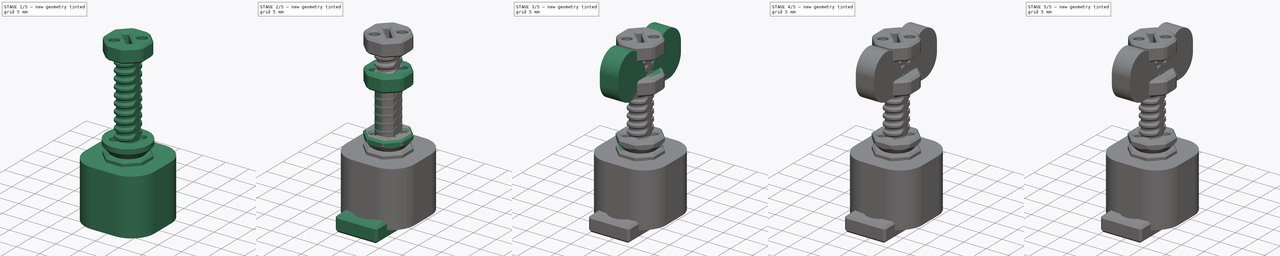
[diagram: build sequence overview — one tinted view per stage of 5, left to right]
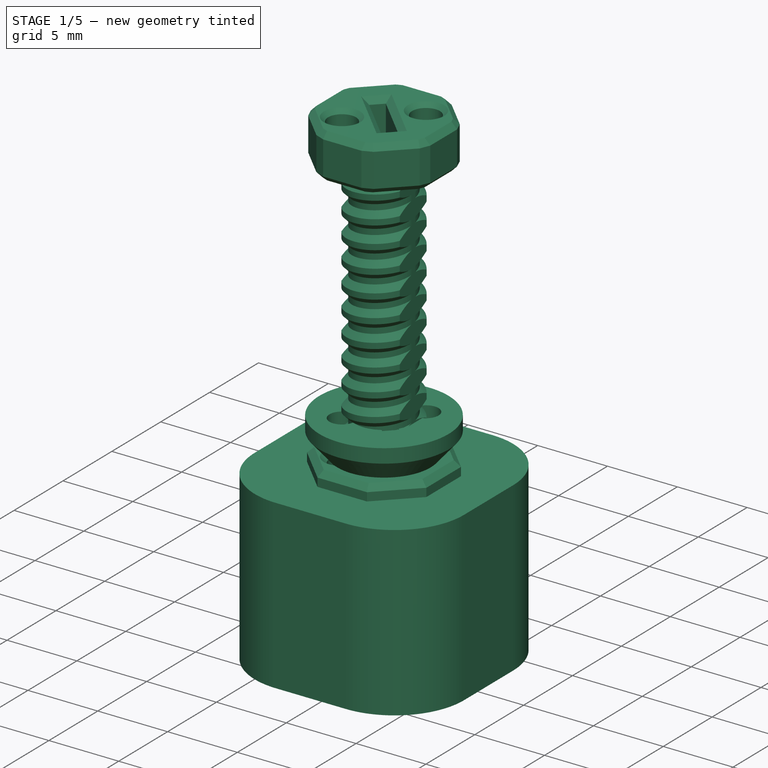
[diagram: stage 1 of 5 — iso view after this stage's code; geometry added in this stage tinted green]
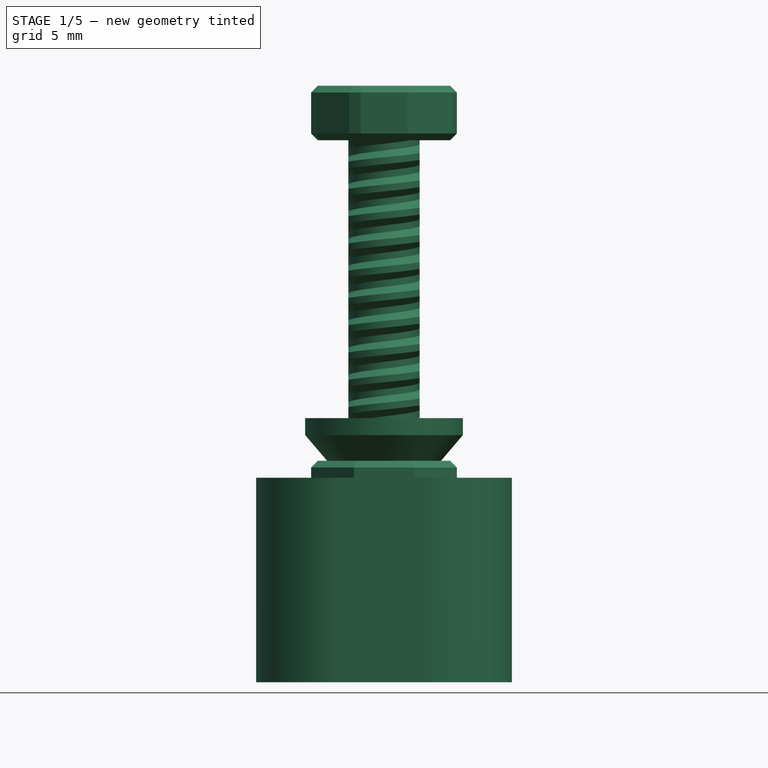
[diagram: stage 1 of 5 — front view after this stage's code; geometry added in this stage tinted green]
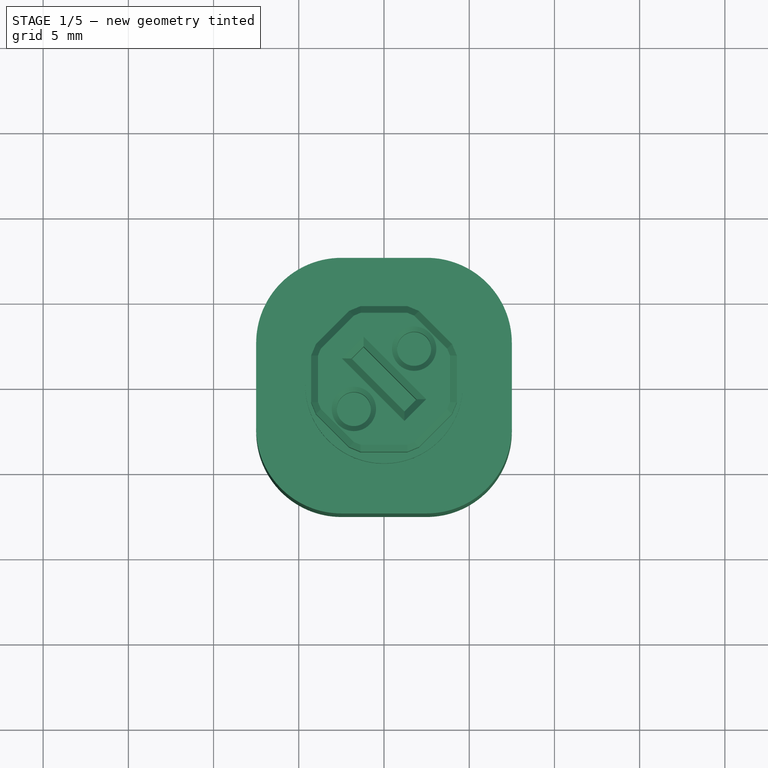
[diagram: stage 1 of 5 — top view after this stage's code; geometry added in this stage tinted green]
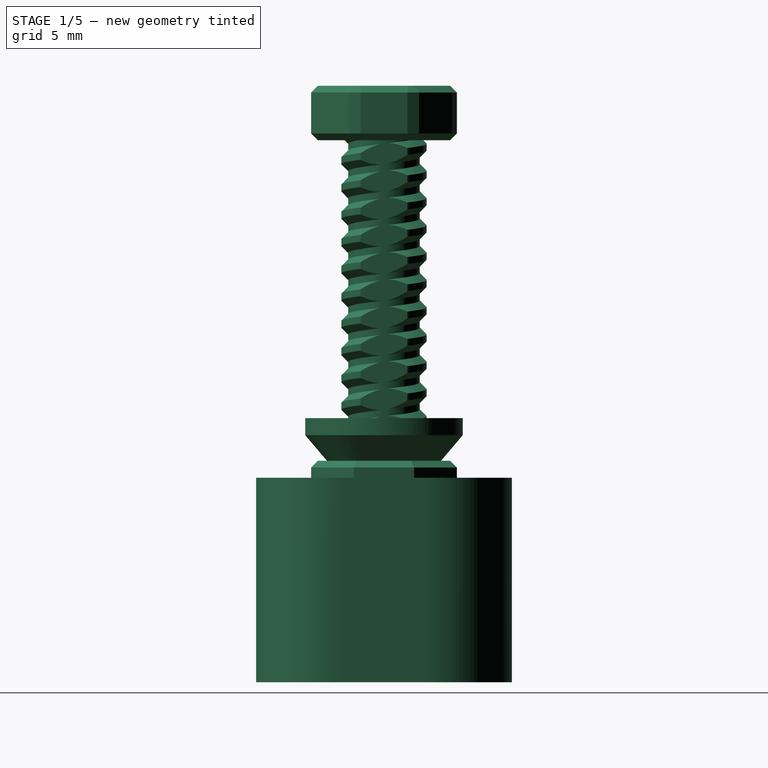
[diagram: stage 1 of 5 — right view after this stage's code; geometry added in this stage tinted green]
FCSTD DOCUMENT  (FreeCAD 1.0R39319 (Git))
Label: 3D Printed Screws
License: Creative Commons Attribution-NonCommercial 4.0
LicenseURL: https://creativecommons.org/licenses/by-nc/4.0/
objects: Sketcher::SketchObject×97, PartDesign::Pocket×43, PartDesign::Chamfer×39, PartDesign::Pad×21, PartDesign::Body×21, PartDesign::SubtractiveHelix×19, PartDesign::Revolution×14, App::DocumentObjectGroup×5, PartDesign::Groove×4, PartDesign::Fillet×2, App::Part×2, PartDesign::Plane×1
note: 642 computed .brp shape members not serialized (recipe doc carries the construction recipe); baked Part::Feature solids carry a one-line shape summary decoded from their .brp

FEATURE [PartDesign::Body] Body016  label="5-4N-10mm - Spanner Slot Screw"
  AllowCompound = false
  Group = -> [Sketch079,Sketch080,Pad015,Chamfer030,SubtractiveHelix014,Sketch081,Revolution010,Sketch078,Sketch082,Pocket031,Pocket032,Pocket033,Chamfer031]
  Origin = -> Origin022
  Tip = -> Chamfer031
FEATURE [Sketcher::SketchObject] Sketch084
  ArcFitTolerance = 1e-06
  AttachmentSupport = -> [XZ_Plane021]
  FullyConstrained = true
  MakeInternals = false
  MapMode = 5
  Placement = pos=(0,0,0) rot=(1,0,0;1.5708rad)
  sketch-geometry (10):
    g0: LineSegment [constr] StartX=0 StartY=0 StartZ=0 EndX=-2.5 EndY=0 EndZ=0
    g1: LineSegment [constr] StartX=-2.5 StartY=0 StartZ=0 EndX=-2.5 EndY=-0.4 EndZ=0
    g2: LineSegment StartX=-2.5 StartY=-0.4 StartZ=0 EndX=-2.1 EndY=-0.8 EndZ=0
    g3: LineSegment StartX=-2.1 StartY=-0.8 StartZ=0 EndX=-2.1 EndY=-1.2 EndZ=0
    g4: LineSegment StartX=-2.1 StartY=-1.2 StartZ=0 EndX=-2.5 EndY=-1.6 EndZ=0
    g5: LineSegment [constr] StartX=-2.5 StartY=-1.6 StartZ=0 EndX=0 EndY=-1.6 EndZ=0
    g6: LineSegment [constr] StartX=0 StartY=-1.6 StartZ=0 EndX=0 EndY=0 EndZ=0
    g7: LineSegment StartX=-2.5 StartY=-0.4 StartZ=0 EndX=-2.5 EndY=-1.6 EndZ=0
    g8: LineSegment [constr] StartX=-2.5 StartY=-0.4 StartZ=0 EndX=-2.1 EndY=-0.4 EndZ=0
    g9: LineSegment [constr] StartX=-2.1 StartY=-0.4 StartZ=0 EndX=-2.1 EndY=-0.8 EndZ=0
  constraints (27):
    c: Coincident(g-1,g0)
    c: PointOnObject(g0,g-1)
    c: Coincident(g0,g1)
    c: Vertical(g1)
    c: Coincident(g1,g2)
    c: Coincident(g2,g3)
    c: Vertical(g3)
    c: Coincident(g3,g4)
    c: Coincident(g4,g5)
    c: Horizontal(g5)
    c: Coincident(g5,g6)
    c: Coincident(g6,g0)
    c: Vertical(g6)
    c: DistanceX(g0,g0) = 2.5
    c: Equal(g0,g5)
    c: Coincident(g7,g1)
    c: Coincident(g7,g4)
    c: DistanceY(g1,g1) = 0.4
    c: Coincident(g8,g1)
    c: Horizontal(g8)
    c: Coincident(g9,g8)
    c: Coincident(g9,g2)
    c: Vertical(g9)
    c: Equal(g2,g4)
    c: DistanceY(g9,g9) = 0.4
    c: Distance(g8,g8) = 0.4
    c: DistanceY(g3,g3) = 0.4
FEATURE [Sketcher::SketchObject] Sketch085
  ArcFitTolerance = 1e-06
  AttachmentSupport = -> [XY_Plane021]
  ExternalGeometry = -> [Sketch084]
  FullyConstrained = true
  MakeInternals = false
  MapMode = 5
  sketch-geometry (7):
    g0: Circle [constr] CenterX=0 CenterY=0 CenterZ=0 NormalX=0 NormalY=0 NormalZ=1 AngleXU=0 Radius=2.5
    g1: LineSegment StartX=-2.09045 StartY=-1.37113 StartZ=0 EndX=-2.09045 EndY=1.37113 EndZ=0
    g2: LineSegment StartX=2.09045 StartY=-1.37113 StartZ=0 EndX=2.09045 EndY=1.37113 EndZ=0
    g3: ArcOfCircle CenterX=0 CenterY=0 CenterZ=0 NormalX=0 NormalY=0 NormalZ=1 AngleXU=0 Radius=2.5 StartAngle=3.7221 EndAngle=5.70267
    g4: ArcOfCircle CenterX=1e-16 CenterY=-6e-16 CenterZ=0 NormalX=0 NormalY=0 NormalZ=1 AngleXU=0 Radius=2.5 StartAngle=0.580512 EndAngle=2.56108
    g5: LineSegment [constr] StartX=-2.09045 StartY=0.2 StartZ=0 EndX=-2.09045 EndY=-0.2 EndZ=0
    g6: Circle [constr] CenterX=1e-16 CenterY=-6e-16 CenterZ=0 NormalX=0 NormalY=0 NormalZ=1 AngleXU=0 Radius=2.1
  constraints (21):
    c: Coincident(g0,g-1)
    c: PointOnObject(g-3,g0)
    c: PointOnObject(g1,g0)
    c: PointOnObject(g1,g0)
    c: PointOnObject(g2,g0)
    c: Coincident(g3,g0)
    c: Coincident(g3,g2)
    c: Coincident(g3,g1)
    c: Equal(g1,g2)
    c: Coincident(g2,g4)
    c: Coincident(g1,g4)
    c: Vertical(g1)
    c: Vertical(g2)
    c: Equal(g0,g4)
    c: Vertical(g5)
    c: Distance(g5) = 0.4
    c: Coincident(g6,g4)
    c: PointOnObject(g5,g6)
    c: PointOnObject(g5,g6)
    c: PointOnObject(g5,g1)
    c: PointOnObject(g-4,g6)
FEATURE [PartDesign::Pad] Pad016
  Direction = (0,0,1)
  Length = 9.5
  Length2 = 10
  Profile = -> Sketch085
  ReferenceAxis = -> Sketch085 [N_Axis]
  Refine = true
  Suppressed = false
  Type = 0
FEATURE [PartDesign::Chamfer] Chamfer032
  Angle = 45
  Base = -> Pad016 [Edge3,Edge9]
  BaseFeature = -> Pad016
  ChamferType = 0
  FlipDirection = false
  Refine = true
  Size = 0.2
  Size2 = 1
  SupportTransform = false
  Suppressed = false
  UseAllEdges = false
FEATURE [Sketcher::SketchObject] Sketch086
  ArcFitTolerance = 1e-06
  AttachmentSupport = -> [XZ_Plane021]
  ExternalGeometry = -> [Pad016]
  FullyConstrained = true
  MakeInternals = false
  MapMode = 5
  Placement = pos=(0,0,0) rot=(1,0,0;1.5708rad)
  sketch-geometry (7):
    g0: LineSegment StartX=0 StartY=13 StartZ=0 EndX=4.625 EndY=13 EndZ=0
    g1: LineSegment StartX=4.625 StartY=13 StartZ=0 EndX=4.625 EndY=12 EndZ=0
    g2: LineSegment StartX=4.625 StartY=12 StartZ=0 EndX=2.5 EndY=9.5 EndZ=0
    g3: LineSegment StartX=2.5 StartY=9.5 StartZ=0 EndX=0 EndY=9.5 EndZ=0
    g4: LineSegment StartX=0 StartY=9.5 StartZ=0 EndX=0 EndY=13 EndZ=0
    g5: LineSegment [constr] StartX=4.625 StartY=12 StartZ=0 EndX=2.5 EndY=12 EndZ=0
    g6: LineSegment [constr] StartX=2.5 StartY=12 StartZ=0 EndX=2.5 EndY=9.5 EndZ=0
  constraints (20):
    c: PointOnObject(g0,g-2)
    c: Horizontal(g0)
    c: Coincident(g1,g0)
    c: Vertical(g1)
    c: Coincident(g2,g1)
    c: Coincident(g3,g2)
    c: Coincident(g4,g3)
    c: Coincident(g4,g0)
    c: PointOnObject(g3,g-2)
    c: DistanceY(g1,g1) = 1
    c: Distance(g4,g4) = 3.5
    c: Coincident(g5,g1)
    c: Horizontal(g5)
    c: Coincident(g6,g5)
    c: Coincident(g6,g2)
    c: Vertical(g6)
    c: Distance(g0,g0) = 4.625
    c: Distance(g3,g3) = 2.5
    c: Horizontal(g3)
    c: PointOnObject(g3,g-3)
FEATURE [PartDesign::SubtractiveHelix] SubtractiveHelix015
  Angle = 0
  Axis = (0,2e-16,1)
  Base = (0,0,0)
  BaseFeature = -> Chamfer032
  Growth = 0
  HasBeenEdited = true
  Height = 28
  LeftHanded = false
  Mode = 0
  Outside = false
  Pitch = 1.6
  Profile = -> Sketch084
  ReferenceAxis = -> Sketch084 [V_Axis]
  Refine = true
  Suppressed = false
  Tolerance = 0.1
  Turns = 17.5
FEATURE [PartDesign::Revolution] Revolution011
  Angle = 360
  Angle2 = 60
  Axis = (0,2e-16,1)
  Base = (0,0,0)
  BaseFeature = -> SubtractiveHelix015
  Profile = -> Sketch086
  ReferenceAxis = -> Sketch086 [V_Axis]
  Refine = true
  Reversed = true
  Suppressed = false
  Type = 0
FEATURE [Sketcher::SketchObject] Sketch083
  ArcFitTolerance = 1e-06
  AttachmentSupport = -> [Revolution011]
  FullyConstrained = true
  MakeInternals = false
  MapMode = 5
  Placement = pos=(0,2.9e-15,13) rot=(0,0,1;0rad)
  sketch-geometry (10):
    g0: LineSegment StartX=-1.90476 StartY=1.19766 StartZ=0 EndX=1.19766 EndY=-1.90476 EndZ=0
    g1: LineSegment StartX=1.19766 StartY=-1.90476 StartZ=0 EndX=1.90476 EndY=-1.19766 EndZ=0
    g2: LineSegment StartX=1.90476 StartY=-1.19766 StartZ=0 EndX=-1.19766 EndY=1.90476 EndZ=0
    g3: LineSegment StartX=-1.19766 StartY=1.90476 StartZ=0 EndX=-1.90476 EndY=1.19766 EndZ=0
    g4: GeomPoint [constr] X=0 Y=0 Z=0
    g5: LineSegment [constr] StartX=0 StartY=0 StartZ=0 EndX=1.55121 EndY=-1.55121 EndZ=0
    g6: Circle [constr] CenterX=0 CenterY=0 CenterZ=0 NormalX=0 NormalY=0 NormalZ=1 AngleXU=0 Radius=2.25
    g7: LineSegment [constr] StartX=-1.76777 StartY=-1.76777 StartZ=0 EndX=1.76777 EndY=1.76777 EndZ=0
    g8: Circle CenterX=-1.76777 CenterY=-1.76777 CenterZ=0 NormalX=0 NormalY=0 NormalZ=1 AngleXU=0 Radius=0.9
    g9: Circle CenterX=1.76777 CenterY=1.76777 CenterZ=0 NormalX=0 NormalY=0 NormalZ=1 AngleXU=0 Radius=0.9
  constraints (23):
    c: Coincident(g0,g1)
    c: Coincident(g1,g2)
    c: Coincident(g2,g3)
    c: Coincident(g3,g0)
    c: Symmetric(g2,g0,g4)
    c: Coincident(g4,g-1)
    c: Distance(g1,g1) = 1
    c: Perpendicular(g2,g3)
    c: Perpendicular(g1,g2)
    c: Perpendicular(g0,g1)
    c: Coincident(g5,g4)
    c: Symmetric(g1,g1,g5)
    c: Angle(g5,g-1) = 0.785398
    c: Coincident(g6,g4)
    c: Diameter(g6) = 4.5
    c: PointOnObject(g2,g6)
    c: Symmetric(g7,g7,g4)
    c: Perpendicular(g7,g5)
    c: Distance(g7,g7) = 5
    c: Coincident(g8,g7)
    c: Coincident(g9,g7)
    c: Equal(g9,g8)
    c: Diameter(g9) = 1.8
FEATURE [PartDesign::Pocket] Pocket034
  BaseFeature = -> Revolution011
  Direction = (0,0,-1)
  Length = 2
  Length2 = 5
  Profile = -> Sketch083
  ReferenceAxis = -> Sketch083 [N_Axis]
  Refine = true
  Suppressed = false
  Type = 0
FEATURE [Sketcher::SketchObject] Sketch087
  ArcFitTolerance = 1e-06
  AttachmentSupport = -> [Revolution011]
  ExternalGeometry = -> [Revolution011]
  FullyConstrained = true
  MakeInternals = false
  MapMode = 5
  Placement = pos=(0,2.9e-15,13) rot=(0,0,1;0rad)
  sketch-geometry (10):
    g0: LineSegment StartX=-1.76991 StartY=4.27294 StartZ=0 EndX=-4.27294 EndY=1.76991 EndZ=0
    g1: LineSegment StartX=-4.27294 StartY=1.76991 StartZ=0 EndX=-4.27294 EndY=-1.76991 EndZ=0
    g2: LineSegment StartX=-4.27294 StartY=-1.76991 StartZ=0 EndX=-1.76991 EndY=-4.27294 EndZ=0
    g3: LineSegment StartX=-1.76991 StartY=-4.27294 StartZ=0 EndX=1.76991 EndY=-4.27294 EndZ=0
    g4: LineSegment StartX=1.76991 StartY=-4.27294 StartZ=0 EndX=4.27294 EndY=-1.76991 EndZ=0
    g5: LineSegment StartX=4.27294 StartY=-1.76991 StartZ=0 EndX=4.27294 EndY=1.76991 EndZ=0
    g6: LineSegment StartX=4.27294 StartY=1.76991 StartZ=0 EndX=1.76991 EndY=4.27294 EndZ=0
    g7: LineSegment StartX=1.76991 StartY=4.27294 StartZ=0 EndX=-1.76991 EndY=4.27294 EndZ=0
    g8: Circle [constr] CenterX=0 CenterY=0 CenterZ=0 NormalX=0 NormalY=0 NormalZ=1 AngleXU=0 Radius=4.625
    g9: Circle CenterX=0 CenterY=0 CenterZ=0 NormalX=0 NormalY=0 NormalZ=1 AngleXU=0 Radius=6
  constraints (22):
    c: Coincident(g0,g1)
    c: Coincident(g1,g2)
    c: Coincident(g2,g3)
    c: Coincident(g3,g4)
    c: Coincident(g4,g5)
    c: Coincident(g5,g6)
    c: Coincident(g6,g7)
    c: Coincident(g7,g0)
    c: Equal(g0, g1-g7) x7
    c: PointOnObject(g0,g8)
    c: PointOnObject(g1,g8)
    c: PointOnObject(g2,g8)
    c: PointOnObject(g3,g8)
    c: PointOnObject(g4,g8)
    c: PointOnObject(g5,g8)
    c: PointOnObject(g6,g8)
    c: PointOnObject(g7,g8)
    c: Coincident(g8,g-1)
    c: PointOnObject(g0,g-3)
    c: Vertical(g1)
    c: Diameter(g9) = 12
    c: Coincident(g9,g8)
FEATURE [PartDesign::Pocket] Pocket035
  BaseFeature = -> Pocket034
  Direction = (0,0,-1)
  Length = 5
  Length2 = 5
  Profile = -> Sketch087
  ReferenceAxis = -> Sketch087 [N_Axis]
  Refine = true
  Suppressed = false
  Type = 1
FEATURE [PartDesign::Pocket] Pocket036
  BaseFeature = -> Pocket035
  Direction = (0,0,-1)
  Length = 1
  Length2 = 5
  Profile = -> Pocket035 [Face18]
  Refine = true
  Suppressed = false
  Type = 0
FEATURE [PartDesign::Chamfer] Chamfer033
  Angle = 45
  Base = -> Pocket036 [Face1]
  BaseFeature = -> Pocket036
  ChamferType = 0
  FlipDirection = false
  Refine = true
  Size = 0.4
  Size2 = 1
  SupportTransform = false
  Suppressed = false
  UseAllEdges = false
FEATURE [PartDesign::Body] Body020  label="5-4N-Square Nut-GSP001"
  AllowCompound = false
  Group = -> [Sketch101,Pad021,Sketch098,Pocket040,Sketch100,Pocket041,Sketch103,Pocket042,Fillet001,Chamfer040]
  Origin = -> Origin026
  Placement = pos=(15,20,2) rot=(0,0,1;0rad)
  Tip = -> Chamfer040
FEATURE [Sketcher::SketchObject] Sketch105
  ArcFitTolerance = 1e-06
  AttachmentSupport = -> [XZ_Plane025]
  FullyConstrained = true
  MakeInternals = false
  MapMode = 5
  Placement = pos=(0,0,0) rot=(1,0,0;1.5708rad)
  sketch-geometry (10):
    g0: LineSegment [constr] StartX=0 StartY=0 StartZ=0 EndX=-2.5 EndY=0 EndZ=0
    g1: LineSegment [constr] StartX=-2.5 StartY=0 StartZ=0 EndX=-2.5 EndY=-0.4 EndZ=0
    g2: LineSegment StartX=-2.5 StartY=-0.4 StartZ=0 EndX=-2.1 EndY=-0.8 EndZ=0
    g3: LineSegment StartX=-2.1 StartY=-0.8 StartZ=0 EndX=-2.1 EndY=-1.2 EndZ=0
    g4: LineSegment StartX=-2.1 StartY=-1.2 StartZ=0 EndX=-2.5 EndY=-1.6 EndZ=0
    g5: LineSegment [constr] StartX=-2.5 StartY=-1.6 StartZ=0 EndX=0 EndY=-1.6 EndZ=0
    g6: LineSegment [constr] StartX=0 StartY=-1.6 StartZ=0 EndX=0 EndY=0 EndZ=0
    g7: LineSegment StartX=-2.5 StartY=-0.4 StartZ=0 EndX=-2.5 EndY=-1.6 EndZ=0
    g8: LineSegment [constr] StartX=-2.5 StartY=-0.4 StartZ=0 EndX=-2.1 EndY=-0.4 EndZ=0
    g9: LineSegment [constr] StartX=-2.1 StartY=-0.4 StartZ=0 EndX=-2.1 EndY=-0.8 EndZ=0
  constraints (27):
    c: Coincident(g-1,g0)
    c: PointOnObject(g0,g-1)
    c: Coincident(g0,g1)
    c: Vertical(g1)
    c: Coincident(g1,g2)
    c: Coincident(g2,g3)
    c: Vertical(g3)
    c: Coincident(g3,g4)
    c: Coincident(g4,g5)
    c: Horizontal(g5)
    c: Coincident(g5,g6)
    c: Coincident(g6,g0)
    c: Vertical(g6)
    c: DistanceX(g0,g0) = 2.5
    c: Equal(g0,g5)
    c: Coincident(g7,g1)
    c: Coincident(g7,g4)
    c: DistanceY(g1,g1) = 0.4
    c: Coincident(g8,g1)
    c: Horizontal(g8)
    c: Coincident(g9,g8)
    c: Coincident(g9,g2)
    c: Vertical(g9)
    c: Equal(g2,g4)
    c: DistanceY(g9,g9) = 0.4
    c: Distance(g8,g8) = 0.4
    c: DistanceY(g3,g3) = 0.4
FEATURE [Sketcher::SketchObject] Sketch106
  ArcFitTolerance = 1e-06
  AttachmentSupport = -> [XY_Plane025]
  ExternalGeometry = -> [Sketch105]
  FullyConstrained = true
  MakeInternals = false
  MapMode = 5
  sketch-geometry (7):
    g0: Circle [constr] CenterX=0 CenterY=0 CenterZ=0 NormalX=0 NormalY=0 NormalZ=1 AngleXU=0 Radius=2.5
    g1: LineSegment StartX=-2.09045 StartY=-1.37113 StartZ=0 EndX=-2.09045 EndY=1.37113 EndZ=0
    g2: LineSegment StartX=2.09045 StartY=-1.37113 StartZ=0 EndX=2.09045 EndY=1.37113 EndZ=0
    g3: ArcOfCircle CenterX=0 CenterY=0 CenterZ=0 NormalX=0 NormalY=0 NormalZ=1 AngleXU=0 Radius=2.5 StartAngle=3.7221 EndAngle=5.70267
    g4: ArcOfCircle CenterX=1e-16 CenterY=-6e-16 CenterZ=0 NormalX=0 NormalY=0 NormalZ=1 AngleXU=0 Radius=2.5 StartAngle=0.580512 EndAngle=2.56108
    g5: LineSegment [constr] StartX=-2.09045 StartY=0.2 StartZ=0 EndX=-2.09045 EndY=-0.2 EndZ=0
    g6: Circle [constr] CenterX=1e-16 CenterY=-6e-16 CenterZ=0 NormalX=0 NormalY=0 NormalZ=1 AngleXU=0 Radius=2.1
  constraints (21):
    c: Coincident(g0,g-1)
    c: PointOnObject(g-3,g0)
    c: PointOnObject(g1,g0)
    c: PointOnObject(g1,g0)
    c: PointOnObject(g2,g0)
    c: Coincident(g3,g0)
    c: Coincident(g3,g2)
    c: Coincident(g3,g1)
    c: Equal(g1,g2)
    c: Coincident(g2,g4)
    c: Coincident(g1,g4)
    c: Vertical(g1)
    c: Vertical(g2)
    c: Equal(g0,g4)
    c: Vertical(g5)
    c: Distance(g5) = 0.4
    c: Coincident(g6,g4)
    c: PointOnObject(g5,g6)
    c: PointOnObject(g5,g6)
    c: PointOnObject(g5,g1)
    c: PointOnObject(g-4,g6)
FEATURE [PartDesign::Pad] Pad022
  Direction = (0,0,1)
  Length = 12
  Length2 = 10
  Profile = -> Sketch106
  ReferenceAxis = -> Sketch106 [N_Axis]
  Refine = true
  Suppressed = false
  Type = 0
FEATURE [PartDesign::Chamfer] Chamfer041
  Angle = 45
  Base = -> Pad022 [Edge3,Edge9]
  BaseFeature = -> Pad022
  ChamferType = 0
  FlipDirection = false
  Refine = true
  Size = 0.2
  Size2 = 1
  SupportTransform = false
  Suppressed = false
  UseAllEdges = false
FEATURE [Sketcher::SketchObject] Sketch107
  ArcFitTolerance = 1e-06
  AttachmentSupport = -> [XZ_Plane025]
  ExternalGeometry = -> [Pad022]
  FullyConstrained = true
  MakeInternals = false
  MapMode = 5
  Placement = pos=(0,0,0) rot=(1,0,0;1.5708rad)
  sketch-geometry (7):
    g0: LineSegment StartX=0 StartY=15.5 StartZ=0 EndX=4.625 EndY=15.5 EndZ=0
    g1: LineSegment StartX=4.625 StartY=15.5 StartZ=0 EndX=4.625 EndY=14.5 EndZ=0
    g2: LineSegment StartX=4.625 StartY=14.5 StartZ=0 EndX=2.5 EndY=12 EndZ=0
    g3: LineSegment StartX=2.5 StartY=12 StartZ=0 EndX=0 EndY=12 EndZ=0
    g4: LineSegment StartX=0 StartY=12 StartZ=0 EndX=0 EndY=15.5 EndZ=0
    g5: LineSegment [constr] StartX=4.625 StartY=14.5 StartZ=0 EndX=2.5 EndY=14.5 EndZ=0
    g6: LineSegment [constr] StartX=2.5 StartY=14.5 StartZ=0 EndX=2.5 EndY=12 EndZ=0
  constraints (20):
    c: PointOnObject(g0,g-2)
    c: Horizontal(g0)
    c: Coincident(g1,g0)
    c: Vertical(g1)
    c: Coincident(g2,g1)
    c: Coincident(g3,g2)
    c: Coincident(g4,g3)
    c: Coincident(g4,g0)
    c: PointOnObject(g3,g-2)
    c: DistanceY(g1,g1) = 1
    c: Distance(g4,g4) = 3.5
    c: Coincident(g5,g1)
    c: Horizontal(g5)
    c: Coincident(g6,g5)
    c: Coincident(g6,g2)
    c: Vertical(g6)
    c: Distance(g0,g0) = 4.625
    c: Distance(g3,g3) = 2.5
    c: Horizontal(g3)
    c: PointOnObject(g3,g-3)
FEATURE [PartDesign::SubtractiveHelix] SubtractiveHelix018
  Angle = 0
  Axis = (0,2e-16,1)
  Base = (0,0,0)
  BaseFeature = -> Chamfer041
  Growth = 0
  HasBeenEdited = true
  Height = 28
  LeftHanded = false
  Mode = 0
  Outside = false
  Pitch = 1.6
  Profile = -> Sketch105
  ReferenceAxis = -> Sketch105 [V_Axis]
  Refine = true
  Suppressed = false
  Tolerance = 0.1
  Turns = 17.5
FEATURE [PartDesign::Revolution] Revolution014
  Angle = 360
  Angle2 = 60
  Axis = (0,2e-16,1)
  Base = (0,0,0)
  BaseFeature = -> SubtractiveHelix018
  Profile = -> Sketch107
  ReferenceAxis = -> Sketch107 [V_Axis]
  Refine = true
  Reversed = true
  Suppressed = false
  Type = 0
FEATURE [Sketcher::SketchObject] Sketch104
  ArcFitTolerance = 1e-06
  AttachmentSupport = -> [Revolution014]
  FullyConstrained = true
  MakeInternals = false
  MapMode = 5
  Placement = pos=(0,3.4e-15,15.5) rot=(0,0,1;0rad)
  sketch-geometry (10):
    g0: LineSegment StartX=-1.90476 StartY=1.19766 StartZ=0 EndX=1.19766 EndY=-1.90476 EndZ=0
    g1: LineSegment StartX=1.19766 StartY=-1.90476 StartZ=0 EndX=1.90476 EndY=-1.19766 EndZ=0
    g2: LineSegment StartX=1.90476 StartY=-1.19766 StartZ=0 EndX=-1.19766 EndY=1.90476 EndZ=0
    g3: LineSegment StartX=-1.19766 StartY=1.90476 StartZ=0 EndX=-1.90476 EndY=1.19766 EndZ=0
    g4: GeomPoint [constr] X=0 Y=0 Z=0
    g5: LineSegment [constr] StartX=0 StartY=0 StartZ=0 EndX=1.55121 EndY=-1.55121 EndZ=0
    g6: Circle [constr] CenterX=0 CenterY=0 CenterZ=0 NormalX=0 NormalY=0 NormalZ=1 AngleXU=0 Radius=2.25
    g7: LineSegment [constr] StartX=-1.76777 StartY=-1.76777 StartZ=0 EndX=1.76777 EndY=1.76777 EndZ=0
    g8: Circle CenterX=-1.76777 CenterY=-1.76777 CenterZ=0 NormalX=0 NormalY=0 NormalZ=1 AngleXU=0 Radius=0.9
    g9: Circle CenterX=1.76777 CenterY=1.76777 CenterZ=0 NormalX=0 NormalY=0 NormalZ=1 AngleXU=0 Radius=0.9
  constraints (23):
    c: Coincident(g0,g1)
    c: Coincident(g1,g2)
    c: Coincident(g2,g3)
    c: Coincident(g3,g0)
    c: Symmetric(g2,g0,g4)
    c: Coincident(g4,g-1)
    c: Distance(g1,g1) = 1
    c: Perpendicular(g2,g3)
    c: Perpendicular(g1,g2)
    c: Perpendicular(g0,g1)
    c: Coincident(g5,g4)
    c: Symmetric(g1,g1,g5)
    c: Angle(g5,g-1) = 0.785398
    c: Coincident(g6,g4)
    c: Diameter(g6) = 4.5
    c: PointOnObject(g2,g6)
    c: Symmetric(g7,g7,g4)
    c: Perpendicular(g7,g5)
    c: Distance(g7,g7) = 5
    c: Coincident(g8,g7)
    c: Coincident(g9,g7)
    c: Equal(g9,g8)
    c: Diameter(g9) = 1.8
FEATURE [PartDesign::Pocket] Pocket043
  BaseFeature = -> Revolution014
  Direction = (0,0,-1)
  Length = 2
  Length2 = 5
  Profile = -> Sketch104
  ReferenceAxis = -> Sketch104 [N_Axis]
  Refine = true
  Suppressed = false
  Type = 0
FEATURE [PartDesign::Body] Body021  label="5-4N-15mm - Spanner Slot Screw"
  AllowCompound = false
  Group = -> [Sketch105,Sketch106,Pad022,Chamfer041,SubtractiveHelix018,Sketch107,Revolution014,Sketch104,Sketch108,Pocket043,Pocket044,Pocket045,Chamfer042]
  Origin = -> Origin027
  Placement = pos=(0,20,0) rot=(0,0,1;0rad)
  Tip = -> Chamfer042
FEATURE [Sketcher::SketchObject] Sketch109
  ArcFitTolerance = 1e-06
  AttachmentSupport = -> [XY_Plane026]
  FullyConstrained = true
  MakeInternals = false
  MapMode = 5
  sketch-geometry (10):
    g0: LineSegment StartX=-2.5 StartY=-7.5 StartZ=0 EndX=2.5 EndY=-7.5 EndZ=0
    g1: LineSegment StartX=7.5 StartY=-2.5 StartZ=0 EndX=7.5 EndY=2.5 EndZ=0
    g2: LineSegment StartX=2.5 StartY=7.5 StartZ=0 EndX=-2.5 EndY=7.5 EndZ=0
    g3: LineSegment StartX=-7.5 StartY=2.5 StartZ=0 EndX=-7.5 EndY=-2.5 EndZ=0
    g4: ArcOfCircle CenterX=-2.5 CenterY=-2.5 CenterZ=0 NormalX=0 NormalY=0 NormalZ=1 AngleXU=0 Radius=5 StartAngle=3.14159 EndAngle=4.71239
    g5: ArcOfCircle CenterX=2.5 CenterY=-2.5 CenterZ=0 NormalX=0 NormalY=0 NormalZ=1 AngleXU=0 Radius=5 StartAngle=4.71239 EndAngle=6.28319
    g6: ArcOfCircle CenterX=2.5 CenterY=2.5 CenterZ=0 NormalX=0 NormalY=0 NormalZ=1 AngleXU=0 Radius=5 StartAngle=0 EndAngle=1.5708
    g7: ArcOfCircle CenterX=-2.5 CenterY=2.5 CenterZ=0 NormalX=0 NormalY=0 NormalZ=1 AngleXU=0 Radius=5 StartAngle=1.5708 EndAngle=3.14159
    g8: GeomPoint [constr] X=-7.5 Y=-7.5 Z=0
    g9: GeomPoint [constr] X=7.5 Y=7.5 Z=0
  constraints (23):
    c: Tangent(g0,g4) = -1.5708
    c: Tangent(g0,g5) = -1.5708
    c: Tangent(g1,g5) = -1.5708
    c: Tangent(g1,g6) = -1.5708
    c: Tangent(g2,g6) = -1.5708
    c: Tangent(g2,g7) = -1.5708
    c: Tangent(g3,g7) = -1.5708
    c: Tangent(g3,g4) = -1.5708
    c: Horizontal(g0)
    c: Horizontal(g2)
    c: Vertical(g1)
    c: Vertical(g3)
    c: Equal(g4,g5)
    c: Equal(g5,g6)
    c: Equal(g6,g7)
    c: PointOnObject(g8,g0)
    c: PointOnObject(g8,g3)
    c: PointOnObject(g9,g1)
    c: PointOnObject(g9,g2)
    c: Symmetric(g8,g9,g-1)
    c: Radius(g5) = 5
    c: Distance(g2,g2) = 5
    c: Equal(g2,g3)
FEATURE [PartDesign::Pad] Pad023
  Direction = (0,0,1)
  Length = 12
  Length2 = 10
  Profile = -> Sketch109
  ReferenceAxis = -> Sketch109 [N_Axis]
  Refine = true
  Suppressed = false
  Type = 0
FEATURE [Sketcher::SketchObject] Sketch110
  ArcFitTolerance = 1e-06
  AttachmentSupport = -> [Pad023]
  FullyConstrained = true
  MakeInternals = false
  MapMode = 5
  Placement = pos=(0,0,12) rot=(0,0,1;0rad)
  sketch-geometry (1):
    g0: Circle CenterX=0 CenterY=0 CenterZ=0 NormalX=0 NormalY=0 NormalZ=1 AngleXU=0 Radius=0.5
  constraints (2):
    c: Coincident(g0,g-1)
    c: Diameter(g0) = 1
FEATURE [PartDesign::Pocket] Pocket046
  BaseFeature = -> Pad023
  Direction = (0,0,-1)
  Length = 5
  Length2 = 5
  Profile = -> Sketch110
  ReferenceAxis = -> Sketch110 [N_Axis]
  Refine = true
  Suppressed = false
  Type = 1
FEATURE [Sketcher::SketchObject] Sketch111
  ArcFitTolerance = 1e-06
  AttachmentSupport = -> [XZ_Plane021]
  ExternalGeometry = -> [Sketch084]
  FullyConstrained = true
  MakeInternals = false
  MapMode = 5
  Placement = pos=(0,0,0) rot=(1,0,0;1.5708rad)
  sketch-geometry (4):
    g0: LineSegment StartX=-2.5 StartY=-1.6 StartZ=0 EndX=-2.1 EndY=-1.2 EndZ=0
    g1: LineSegment StartX=-2.1 StartY=-1.2 StartZ=0 EndX=-2.1 EndY=-2.4 EndZ=0
    g2: LineSegment StartX=-2.1 StartY=-2.4 StartZ=0 EndX=-2.5 EndY=-2 EndZ=0
    g3: LineSegment StartX=-2.5 StartY=-2 StartZ=0 EndX=-2.5 EndY=-1.6 EndZ=0
  constraints (10):
    c: Coincident(g-3,g0)
    c: Coincident(g0,g-4)
    c: Coincident(g0,g1)
    c: Vertical(g1)
    c: Coincident(g1,g2)
    c: Coincident(g2,g3)
    c: Coincident(g3,g0)
    c: Vertical(g3)
    c: Equal(g-3,g1)
    c: Equal(g-4,g3)
FEATURE [PartDesign::SubtractiveHelix] SubtractiveHelix019
  Angle = 0
  Axis = (0,2e-16,1)
  Base = (0,0,0)
  BaseFeature = -> Chamfer033
  Growth = 0
  HasBeenEdited = true
  Height = 2.4
  LeftHanded = false
  Mode = 1
  Outside = false
  Pitch = 1.6
  Profile = -> Sketch111
  ReferenceAxis = -> Sketch111 [V_Axis]
  Refine = true
  Suppressed = false
  Tolerance = 0.1
  Turns = 1.5
FEATURE [PartDesign::Body] Body017  label="5-4N-13mm - Spanner Slot Screw"
  AllowCompound = false
  Group = -> [Sketch084,Sketch085,Pad016,Chamfer032,SubtractiveHelix015,Sketch086,Revolution011,Sketch083,Sketch087,Pocket034,Pocket035,Pocket036,Chamfer033,Sketch111,SubtractiveHelix019]
  Origin = -> Origin023
  Placement = pos=(0,10,0) rot=(0,0,1;0rad)
  Tip = -> SubtractiveHelix019
FEATURE [Sketcher::SketchObject] Sketch112
  ArcFitTolerance = 1e-06
  AttachmentSupport = -> [XZ_Plane026]
  ExternalGeometry = -> [Pocket046]
  FullyConstrained = true
  MakeInternals = false
  MapMode = 5
  Placement = pos=(0,0,0) rot=(1,0,0;1.5708rad)
  sketch-geometry (12):
    g0: LineSegment [constr] StartX=0 StartY=0 StartZ=0 EndX=0 EndY=2.6 EndZ=0
    g1: LineSegment [constr] StartX=0 StartY=2.6 StartZ=0 EndX=-2.25 EndY=2.6 EndZ=0
    g2: LineSegment StartX=-2.25 StartY=2.6 StartZ=0 EndX=-2.25 EndY=1.5 EndZ=0
    g3: LineSegment StartX=-2.25 StartY=1.5 StartZ=0 EndX=-2.65 EndY=1.9 EndZ=0
    g4: LineSegment StartX=-2.65 StartY=1.9 StartZ=0 EndX=-2.65 EndY=2.2 EndZ=0
    g5: LineSegment StartX=-2.65 StartY=2.2 StartZ=0 EndX=-2.25 EndY=2.6 EndZ=0
    g6: LineSegment [constr] StartX=0 StartY=1 StartZ=0 EndX=0 EndY=2.6 EndZ=0
    g7: LineSegment [constr] StartX=-2.65 StartY=2.2 StartZ=0 EndX=-2.65 EndY=2.6 EndZ=0
    g8: LineSegment [constr] StartX=-2.65 StartY=2.6 StartZ=0 EndX=-2.25 EndY=2.6 EndZ=0
    g9: LineSegment [constr] StartX=-2.25 StartY=1.5 StartZ=0 EndX=-2.25 EndY=1 EndZ=0
    g10: LineSegment [constr] StartX=-2.25 StartY=1 StartZ=0 EndX=0 EndY=1 EndZ=0
    g11: LineSegment [constr] StartX=-2.65 StartY=2.2 StartZ=0 EndX=0 EndY=2.2 EndZ=0
  constraints (33):
    c: Coincident(g0,g-1)
    c: PointOnObject(g0,g-2)
    c: Coincident(g1,g0)
    c: Horizontal(g1)
    c: Coincident(g1,g2)
    c: Vertical(g2)
    c: Coincident(g2,g3)
    c: Coincident(g3,g4)
    c: Vertical(g4)
    c: Coincident(g4,g5)
    c: Coincident(g5,g2)
    c: Coincident(g6,g0)
    c: Vertical(g6)
    c: Equal(g5,g3)
    c: Coincident(g4,g7)
    c: Vertical(g7)
    c: Coincident(g7,g8)
    c: Coincident(g8,g1)
    c: Horizontal(g8)
    c: Equal(g8,g7)
    c: Distance(g8,g8) = 0.4
    c: DistanceY(g4,g4) = 0.3
    c: Coincident(g9,g2)
    c: Vertical(g9)
    c: Coincident(g10,g9)
    c: Coincident(g10,g6)
    c: Horizontal(g10)
    c: DistanceY(g9,g9) = 0.5
    c: Coincident(g11,g4)
    c: PointOnObject(g11,g6)
    c: Horizontal(g11)
    c: Distance(g11,g11) = 2.65
    c: DistanceY(g0,g0) = 2.6
FEATURE [Sketcher::SketchObject] Sketch113
  ArcFitTolerance = 1e-06
  AttachmentSupport = -> [Pocket046]
  ExternalGeometry = -> [Pocket046,Sketch112]
  FullyConstrained = true
  MakeInternals = false
  MapMode = 5
  Placement = pos=(0,0,12) rot=(0,0,1;0rad)
  sketch-geometry (1):
    g0: Circle CenterX=0 CenterY=0 CenterZ=0 NormalX=0 NormalY=0 NormalZ=1 AngleXU=0 Radius=2.25
  constraints (2):
    c: Coincident(g0,g-1)
    c: PointOnObject(g-4,g0)
FEATURE [Sketcher::SketchObject] Sketch114
  ArcFitTolerance = 1e-06
  AttachmentSupport = -> [XZ_Plane026]
  ExternalGeometry = -> [Pocket046,Sketch112]
  FullyConstrained = true
  MakeInternals = false
  MapMode = 5
  Placement = pos=(0,0,0) rot=(1,0,0;1.5708rad)
  sketch-geometry (7):
    g0: LineSegment StartX=0 StartY=12 StartZ=0 EndX=-2.65 EndY=12 EndZ=0
    g1: LineSegment StartX=-2.65 StartY=12 StartZ=0 EndX=-2.15 EndY=11.5 EndZ=0
    g2: LineSegment StartX=-2.15 StartY=11.5 StartZ=0 EndX=0 EndY=11.5 EndZ=0
    g3: LineSegment StartX=0 StartY=11.5 StartZ=0 EndX=0 EndY=12 EndZ=0
    g4: LineSegment [constr] StartX=-2.15 StartY=11.5 StartZ=0 EndX=-2.65 EndY=11.5 EndZ=0
    g5: LineSegment [constr] StartX=-2.65 StartY=11.5 StartZ=0 EndX=-2.65 EndY=12 EndZ=0
    g6: LineSegment [constr] StartX=-2.65 StartY=11.5 StartZ=0 EndX=-2.65 EndY=2.2 EndZ=0
  constraints (18):
    c: Symmetric(g-3,g-3,g0)
    c: Horizontal(g0)
    c: Coincident(g0,g1)
    c: Coincident(g1,g2)
    c: PointOnObject(g2,g-2)
    c: Horizontal(g2)
    c: Coincident(g2,g3)
    c: Coincident(g3,g0)
    c: Coincident(g1,g4)
    c: Horizontal(g4)
    c: Coincident(g4,g5)
    c: Coincident(g5,g0)
    c: Vertical(g5)
    c: Coincident(g4,g6)
    c: Coincident(g6,g-4)
    c: Vertical(g6)
    c: Equal(g5,g4)
    c: DistanceY(g3,g3) = 0.5
FEATURE [PartDesign::Pocket] Pocket047
  BaseFeature = -> Pocket046
  Direction = (0,0,-1)
  Length = 5
  Length2 = 5
  Profile = -> Sketch113
  ReferenceAxis = -> Sketch113 [N_Axis]
  Refine = true
  Suppressed = false
  Type = 1
FEATURE [PartDesign::Groove] Groove003
  Angle = 360
  Angle2 = 60
  Axis = (0,2e-16,1)
  Base = (0,0,0)
  BaseFeature = -> Pocket047
  Profile = -> Sketch114
  ReferenceAxis = -> Sketch114 [V_Axis]
  Refine = true
  Reversed = true
  Suppressed = false
  Type = 0
FEATURE [PartDesign::SubtractiveHelix] SubtractiveHelix020
  Angle = 0
  Axis = (0,2e-16,1)
  Base = (0,0,0)
  BaseFeature = -> Groove003
  Growth = 0
  HasBeenEdited = true
  Height = 30
  LeftHanded = false
  Mode = 0
  Outside = false
  Pitch = 1.6
  Profile = -> Sketch112
  ReferenceAxis = -> Sketch112 [V_Axis]
  Refine = true
  Suppressed = false
  Tolerance = 0.1
  Turns = 18.75
FEATURE [PartDesign::Body] Body022  label="5-4N Screw Lock Test"
  AllowCompound = false
  Group = -> [Sketch109,Pad023,Sketch110,Pocket046,Sketch112,Sketch113,Sketch114,Pocket047,Groove003,SubtractiveHelix020]
  Origin = -> Origin028
  Placement = pos=(0,40,0) rot=(0,0,1;0rad)
  Tip = -> SubtractiveHelix020
FEATURE [App::DocumentObjectGroup] Group002  label="Nut"
  Group = -> [Body005,Body,Body020,Body022]
FEATURE [Sketcher::SketchObject] Sketch116
  ArcFitTolerance = 1e-06
  AttachmentSupport = -> [XZ_Plane027]
  FullyConstrained = true
  MakeInternals = false
  MapMode = 5
  Placement = pos=(0,0,0) rot=(1,0,0;1.5708rad)
  sketch-geometry (10):
    g0: LineSegment [constr] StartX=0 StartY=0 StartZ=0 EndX=-2.5 EndY=0 EndZ=0
    g1: LineSegment [constr] StartX=-2.5 StartY=0 StartZ=0 EndX=-2.5 EndY=-0.4 EndZ=0
    g2: LineSegment StartX=-2.5 StartY=-0.4 StartZ=0 EndX=-2.1 EndY=-0.8 EndZ=0
    g3: LineSegment StartX=-2.1 StartY=-0.8 StartZ=0 EndX=-2.1 EndY=-1.2 EndZ=0
    g4: LineSegment StartX=-2.1 StartY=-1.2 StartZ=0 EndX=-2.5 EndY=-1.6 EndZ=0
    g5: LineSegment [constr] StartX=-2.5 StartY=-1.6 StartZ=0 EndX=0 EndY=-1.6 EndZ=0
    g6: LineSegment [constr] StartX=0 StartY=-1.6 StartZ=0 EndX=0 EndY=0 EndZ=0
    g7: LineSegment StartX=-2.5 StartY=-0.4 StartZ=0 EndX=-2.5 EndY=-1.6 EndZ=0
    g8: LineSegment [constr] StartX=-2.5 StartY=-0.4 StartZ=0 EndX=-2.1 EndY=-0.4 EndZ=0
    g9: LineSegment [constr] StartX=-2.1 StartY=-0.4 StartZ=0 EndX=-2.1 EndY=-0.8 EndZ=0
  constraints (27):
    c: Coincident(g-1,g0)
    c: PointOnObject(g0,g-1)
    c: Coincident(g0,g1)
    c: Vertical(g1)
    c: Coincident(g1,g2)
    c: Coincident(g2,g3)
    c: Vertical(g3)
    c: Coincident(g3,g4)
    c: Coincident(g4,g5)
    c: Horizontal(g5)
    c: Coincident(g5,g6)
    c: Coincident(g6,g0)
    c: Vertical(g6)
    c: DistanceX(g0,g0) = 2.5
    c: Equal(g0,g5)
    c: Coincident(g7,g1)
    c: Coincident(g7,g4)
    c: DistanceY(g1,g1) = 0.4
    c: Coincident(g8,g1)
    c: Horizontal(g8)
    c: Coincident(g9,g8)
    c: Coincident(g9,g2)
    c: Vertical(g9)
    c: Equal(g2,g4)
    c: DistanceY(g9,g9) = 0.4
    c: Distance(g8,g8) = 0.4
    c: DistanceY(g3,g3) = 0.4
FEATURE [Sketcher::SketchObject] Sketch117
  ArcFitTolerance = 1e-06
  AttachmentSupport = -> [XY_Plane027]
  ExternalGeometry = -> [Sketch116]
  FullyConstrained = true
  MakeInternals = false
  MapMode = 5
  sketch-geometry (7):
    g0: Circle [constr] CenterX=0 CenterY=0 CenterZ=0 NormalX=0 NormalY=0 NormalZ=1 AngleXU=0 Radius=2.5
    g1: LineSegment StartX=-2.09045 StartY=-1.37113 StartZ=0 EndX=-2.09045 EndY=1.37113 EndZ=0
    g2: LineSegment StartX=2.09045 StartY=-1.37113 StartZ=0 EndX=2.09045 EndY=1.37113 EndZ=0
    g3: ArcOfCircle CenterX=0 CenterY=0 CenterZ=0 NormalX=0 NormalY=0 NormalZ=1 AngleXU=0 Radius=2.5 StartAngle=3.7221 EndAngle=5.70267
    g4: ArcOfCircle CenterX=-1e-16 CenterY=-5e-16 CenterZ=0 NormalX=0 NormalY=0 NormalZ=1 AngleXU=0 Radius=2.5 StartAngle=0.580512 EndAngle=2.56108
    g5: Circle [constr] CenterX=-1e-16 CenterY=-5e-16 CenterZ=0 NormalX=0 NormalY=0 NormalZ=1 AngleXU=0 Radius=2.1
    g6: LineSegment [constr] StartX=-2.09045 StartY=0.2 StartZ=0 EndX=-2.09045 EndY=-0.2 EndZ=0
  constraints (21):
    c: Coincident(g0,g-1)
    c: PointOnObject(g-3,g0)
    c: PointOnObject(g1,g0)
    c: PointOnObject(g1,g0)
    c: PointOnObject(g2,g0)
    c: Coincident(g3,g0)
    c: Coincident(g3,g2)
    c: Coincident(g3,g1)
    c: Equal(g1,g2)
    c: Coincident(g2,g4)
    c: Coincident(g1,g4)
    c: Vertical(g1)
    c: Vertical(g2)
    c: Equal(g0,g4)
    c: Coincident(g5,g4)
    c: PointOnObject(g-4,g5)
    c: PointOnObject(g6,g5)
    c: PointOnObject(g6,g5)
    c: Vertical(g6)
    c: Distance(g6) = 0.4
    c: PointOnObject(g6,g1)
FEATURE [PartDesign::Pad] Pad024
  Direction = (0,0,1)
  Length = 35
  Length2 = 10
  Profile = -> Sketch117
  ReferenceAxis = -> Sketch117 [N_Axis]
  Refine = true
  Suppressed = false
  Type = 0
FEATURE [PartDesign::Chamfer] Chamfer043
  Angle = 45
  Base = -> Pad024 [Edge3,Edge9]
  BaseFeature = -> Pad024
  ChamferType = 0
  FlipDirection = false
  Refine = true
  Size = 0.2
  Size2 = 1
  SupportTransform = false
  Suppressed = false
  UseAllEdges = false
FEATURE [Sketcher::SketchObject] Sketch118
  ArcFitTolerance = 1e-06
  AttachmentSupport = -> [XZ_Plane027]
  ExternalGeometry = -> [Pad024]
  FullyConstrained = true
  MakeInternals = false
  MapMode = 5
  Placement = pos=(0,0,0) rot=(1,0,0;1.5708rad)
  sketch-geometry (4):
    g0: LineSegment StartX=0 StartY=31.8 StartZ=0 EndX=4.625 EndY=31.8 EndZ=0
    g1: LineSegment StartX=4.625 StartY=31.8 StartZ=0 EndX=4.625 EndY=35 EndZ=0
    g2: LineSegment StartX=4.625 StartY=35 StartZ=0 EndX=0 EndY=35 EndZ=0
    g3: LineSegment StartX=0 StartY=35 StartZ=0 EndX=0 EndY=31.8 EndZ=0
  constraints (12):
    c: PointOnObject(g0,g-2)
    c: Horizontal(g0)
    c: Coincident(g1,g0)
    c: Vertical(g1)
    c: Coincident(g3,g2)
    c: Coincident(g3,g0)
    c: PointOnObject(g2,g-2)
    c: Distance(g3,g3) = 3.2
    c: Distance(g0,g0) = 4.625
    c: Horizontal(g2)
    c: PointOnObject(g2,g-3)
    c: Coincident(g1,g2)
FEATURE [PartDesign::SubtractiveHelix] SubtractiveHelix021
  Angle = 0
  Axis = (0,2e-16,1)
  Base = (0,0,0)
  BaseFeature = -> Chamfer043
  Growth = 0
  HasBeenEdited = true
  Height = 100
  LeftHanded = false
  Mode = 0
  Outside = false
  Pitch = 1.6
  Profile = -> Sketch116
  ReferenceAxis = -> Sketch116 [V_Axis]
  Refine = true
  Suppressed = false
  Tolerance = 0.1
  Turns = 62.5
FEATURE [PartDesign::Revolution] Revolution015
  Angle = 360
  Angle2 = 60
  Axis = (0,2e-16,1)
  Base = (0,0,0)
  BaseFeature = -> SubtractiveHelix021
  Profile = -> Sketch118
  ReferenceAxis = -> Sketch118 [V_Axis]
  Refine = true
  Reversed = true
  Suppressed = false
  Type = 0
FEATURE [Sketcher::SketchObject] Sketch115
  ArcFitTolerance = 1e-06
  AttachmentSupport = -> [Revolution015]
  FullyConstrained = true
  MakeInternals = false
  MapMode = 5
  Placement = pos=(0,7.8e-15,35) rot=(0,0,1;0rad)
  sketch-geometry (8):
    g0: Circle [constr] CenterX=0 CenterY=0 CenterZ=0 NormalX=0 NormalY=0 NormalZ=1 AngleXU=0 Radius=2.25
    g1: LineSegment StartX=-1.19766 StartY=1.90476 StartZ=0 EndX=1.90476 EndY=-1.19766 EndZ=0
    g2: LineSegment StartX=1.90476 StartY=-1.19766 StartZ=0 EndX=1.19766 EndY=-1.90476 EndZ=0
    g3: LineSegment StartX=1.19766 StartY=-1.90476 StartZ=0 EndX=-1.90476 EndY=1.19766 EndZ=0
    g4: LineSegment StartX=-1.90476 StartY=1.19766 StartZ=0 EndX=-1.19766 EndY=1.90476 EndZ=0
    g5: LineSegment [constr] StartX=-1.76777 StartY=-1.76777 StartZ=0 EndX=1.76777 EndY=1.76777 EndZ=0
    g6: Circle CenterX=1.76777 CenterY=1.76777 CenterZ=0 NormalX=0 NormalY=0 NormalZ=1 AngleXU=0 Radius=1
    g7: Circle CenterX=-1.76777 CenterY=-1.76777 CenterZ=0 NormalX=0 NormalY=0 NormalZ=1 AngleXU=0 Radius=1
  constraints (21):
    c: Diameter(g0) = 4.5
    c: PointOnObject(g1,g0)
    c: Distance(g2) = 1
    c: Coincident(g2,g1)
    c: PointOnObject(g2,g0)
    c: Coincident(g3,g2)
    c: PointOnObject(g3,g0)
    c: Coincident(g4,g3)
    c: Coincident(g4,g1)
    c: Perpendicular(g4,g3)
    c: Perpendicular(g1,g4)
    c: Coincident(g0,g-1)
    c: Perpendicular(g2,g3)
    c: Angle(g1,g-1) = 0.785398
    c: Symmetric(g5,g5,g0)
    c: Perpendicular(g1,g5)
    c: Coincident(g6,g5)
    c: Coincident(g7,g5)
    c: Distance(g5,g5) = 5
    c: Diameter(g6) = 2
    c: Equal(g6,g7)
FEATURE [PartDesign::Pocket] Pocket048
  BaseFeature = -> Revolution015
  Direction = (0,0,-1)
  Length = 2
  Length2 = 5
  Profile = -> Sketch115
  ReferenceAxis = -> Sketch115 [N_Axis]
  Refine = true
  Suppressed = false
  Type = 0
FEATURE [Sketcher::SketchObject] Sketch119
  ArcFitTolerance = 1e-06
  AttachmentSupport = -> [Pocket048]
  ExternalGeometry = -> [Revolution015]
  FullyConstrained = true
  MakeInternals = false
  MapMode = 5
  Placement = pos=(0,7.8e-15,35) rot=(0,0,1;0rad)
  sketch-geometry (10):
    g0: LineSegment StartX=-1.76991 StartY=4.27294 StartZ=0 EndX=-4.27294 EndY=1.76991 EndZ=0
    g1: LineSegment StartX=-4.27294 StartY=1.76991 StartZ=0 EndX=-4.27294 EndY=-1.76991 EndZ=0
    g2: LineSegment StartX=-4.27294 StartY=-1.76991 StartZ=0 EndX=-1.76991 EndY=-4.27294 EndZ=0
    g3: LineSegment StartX=-1.76991 StartY=-4.27294 StartZ=0 EndX=1.76991 EndY=-4.27294 EndZ=0
    g4: LineSegment StartX=1.76991 StartY=-4.27294 StartZ=0 EndX=4.27294 EndY=-1.76991 EndZ=0
    g5: LineSegment StartX=4.27294 StartY=-1.76991 StartZ=0 EndX=4.27294 EndY=1.76991 EndZ=0
    g6: LineSegment StartX=4.27294 StartY=1.76991 StartZ=0 EndX=1.76991 EndY=4.27294 EndZ=0
    g7: LineSegment StartX=1.76991 StartY=4.27294 StartZ=0 EndX=-1.76991 EndY=4.27294 EndZ=0
    g8: Circle [constr] CenterX=0 CenterY=0 CenterZ=0 NormalX=0 NormalY=0 NormalZ=1 AngleXU=0 Radius=4.625
    g9: Circle CenterX=0 CenterY=0 CenterZ=0 NormalX=0 NormalY=0 NormalZ=1 AngleXU=0 Radius=6
  constraints (22):
    c: Coincident(g0,g1)
    c: Coincident(g1,g2)
    c: Coincident(g2,g3)
    c: Coincident(g3,g4)
    c: Coincident(g4,g5)
    c: Coincident(g5,g6)
    c: Coincident(g6,g7)
    c: Coincident(g7,g0)
    c: Equal(g0, g1-g7) x7
    c: PointOnObject(g0,g8)
    c: PointOnObject(g1,g8)
    c: PointOnObject(g2,g8)
    c: PointOnObject(g3,g8)
    c: PointOnObject(g4,g8)
    c: PointOnObject(g5,g8)
    c: PointOnObject(g6,g8)
    c: PointOnObject(g7,g8)
    c: Coincident(g8,g-1)
    c: PointOnObject(g0,g-3)
    c: Vertical(g1)
    c: Diameter(g9) = 12
    c: Coincident(g9,g8)
FEATURE [PartDesign::Pocket] Pocket049
  BaseFeature = -> Pocket048
  Direction = (0,0,-1)
  Length = 5
  Length2 = 5
  Profile = -> Sketch119
  ReferenceAxis = -> Sketch119 [N_Axis]
  Refine = true
  Suppressed = false
  Type = 1
FEATURE [PartDesign::Chamfer] Chamfer044
  Angle = 45
  Base = -> Pocket049 [Face2,Face3,Face9,Face8,Face7,Face6,Face5,Face4,Edge366,Edge368,Edge365,Edge367]
  BaseFeature = -> Pocket049
  ChamferType = 0
  FlipDirection = false
  Refine = true
  Size = 0.4
  Size2 = 1
  SupportTransform = false
  Suppressed = false
  UseAllEdges = false
FEATURE [PartDesign::Pocket] Pocket050
  BaseFeature = -> Chamfer044
  Direction = (0,0,-1)
  Length = 1
  Length2 = 5
  Profile = -> Chamfer044 [Face232]
  Refine = true
  Suppressed = false
  Type = 0
FEATURE [PartDesign::Chamfer] Chamfer045
  Angle = 45
  Base = -> Pocket050 [Edge625,Edge626]
  BaseFeature = -> Pocket050
  ChamferType = 0
  FlipDirection = false
  Refine = true
  Size = 0.3
  Size2 = 1
  SupportTransform = false
  Suppressed = false
  UseAllEdges = false
FEATURE [PartDesign::Body] Body023  label="5-4N-38mm - Spanner Slot - Pan Head"
  AllowCompound = false
  Group = -> [Sketch116,Sketch117,Pad024,Chamfer043,SubtractiveHelix021,Sketch118,Revolution015,Sketch115,Sketch119,Pocket048,Pocket049,Chamfer044,Pocket050,Chamfer045]
  Origin = -> Origin029
  Placement = pos=(10,40,0) rot=(0,0,1;0rad)
  Tip = -> Chamfer045
FEATURE [App::DocumentObjectGroup] Group  label="Spanner Slot"
  Group = -> [Body016,Body017,Body015,Body014,Body021,Body023]
FEATURE [App::Part] Part  label="5-4N"
  Group = -> [Body011,Body016,Body017,Group,Body015,Body014,Group001,Body002,Body003,Group002,Body005,Body,Group003,Body013,Body004,Group004,Body018,Body019,Body020,Body021,Body022,Body023]
  Origin = -> Origin008
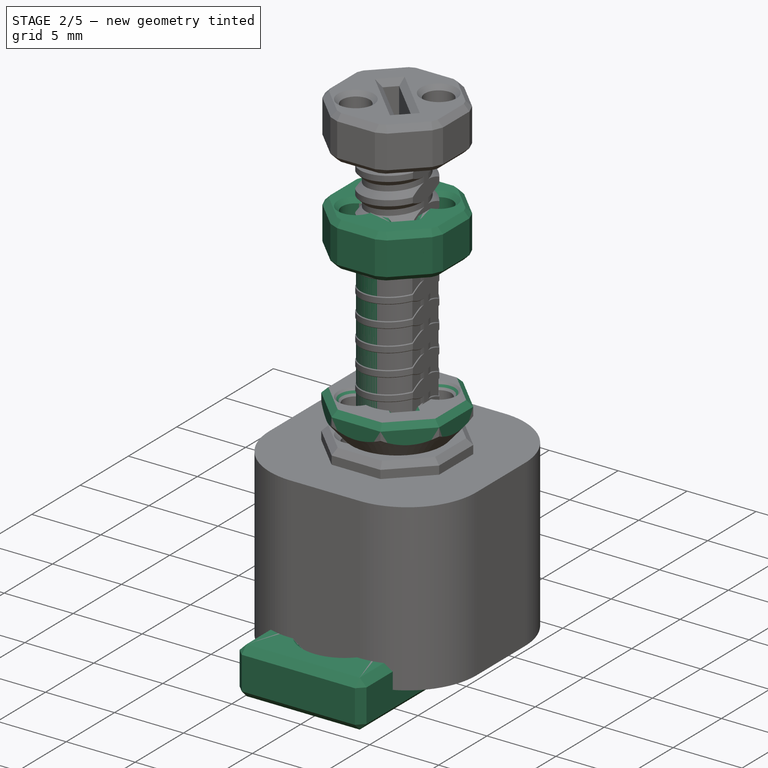
[diagram: stage 2 of 5 — iso view after this stage's code; geometry added in this stage tinted green]
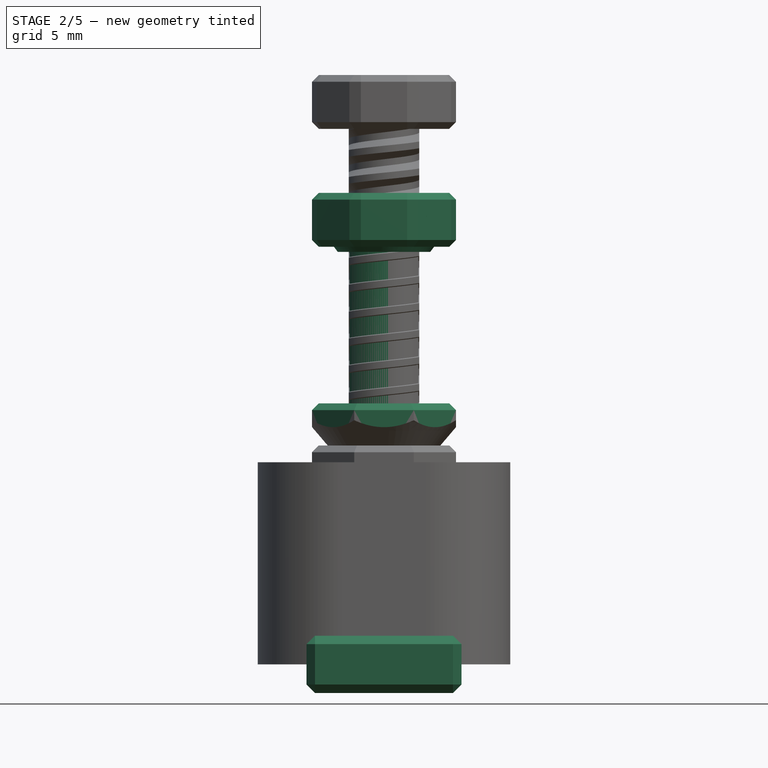
[diagram: stage 2 of 5 — front view after this stage's code; geometry added in this stage tinted green]
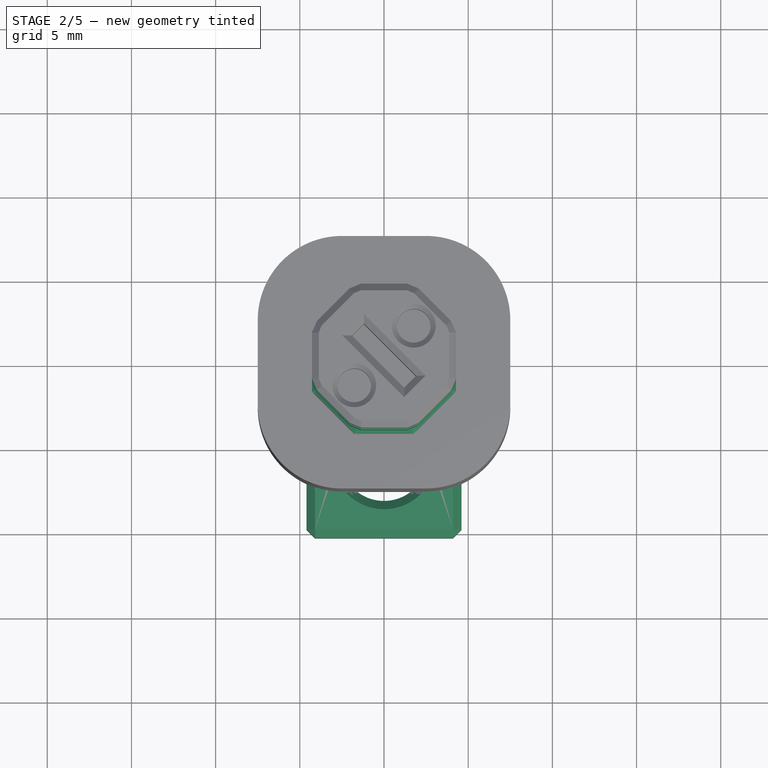
[diagram: stage 2 of 5 — top view after this stage's code; geometry added in this stage tinted green]
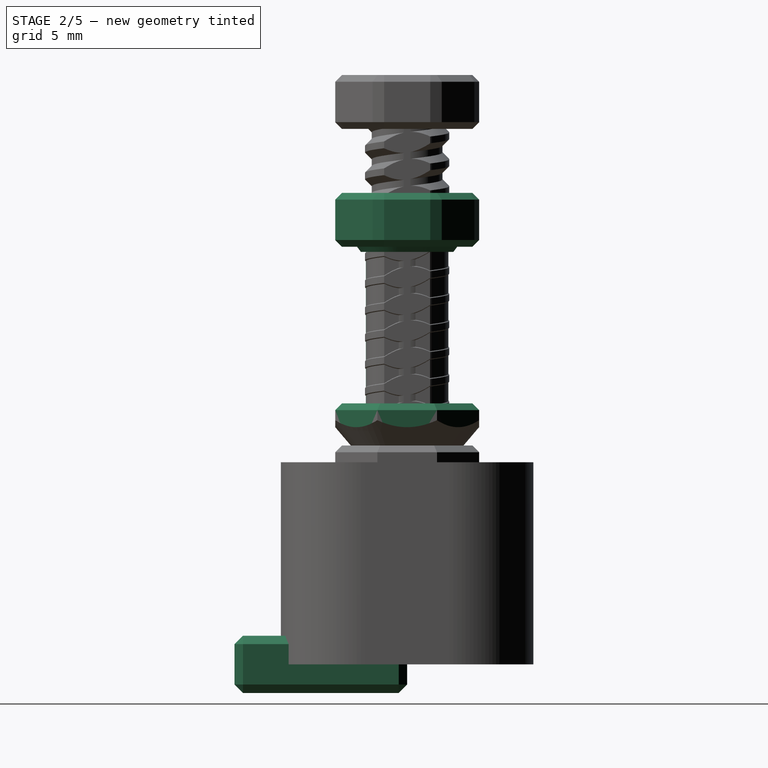
[diagram: stage 2 of 5 — right view after this stage's code; geometry added in this stage tinted green]
FEATURE [PartDesign::Body] Body013  label="5-4N-28mm - Slot Screw"
  AllowCompound = false
  Group = -> [Sketch064,Sketch065,Pad012,Chamfer024,SubtractiveHelix011,Sketch066,Revolution007,Sketch063,Pocket023,Sketch067,Pocket024,Chamfer023,Chamfer025]
  Origin = -> Origin019
  Placement = pos=(0,10,0) rot=(0,0,1;0rad)
  Tip = -> Chamfer025
FEATURE [Sketcher::SketchObject] Sketch069
  ArcFitTolerance = 1e-06
  AttachmentSupport = -> [XZ_Plane018]
  FullyConstrained = true
  MakeInternals = false
  MapMode = 5
  Placement = pos=(0,0,0) rot=(1,0,0;1.5708rad)
  sketch-geometry (10):
    g0: LineSegment [constr] StartX=0 StartY=0 StartZ=0 EndX=-2.5 EndY=0 EndZ=0
    g1: LineSegment [constr] StartX=-2.5 StartY=0 StartZ=0 EndX=-2.5 EndY=-0.4 EndZ=0
    g2: LineSegment StartX=-2.5 StartY=-0.4 StartZ=0 EndX=-2.1 EndY=-0.8 EndZ=0
    g3: LineSegment StartX=-2.1 StartY=-0.8 StartZ=0 EndX=-2.1 EndY=-1.2 EndZ=0
    g4: LineSegment StartX=-2.1 StartY=-1.2 StartZ=0 EndX=-2.5 EndY=-1.6 EndZ=0
    g5: LineSegment [constr] StartX=-2.5 StartY=-1.6 StartZ=0 EndX=0 EndY=-1.6 EndZ=0
    g6: LineSegment [constr] StartX=0 StartY=-1.6 StartZ=0 EndX=0 EndY=0 EndZ=0
    g7: LineSegment StartX=-2.5 StartY=-0.4 StartZ=0 EndX=-2.5 EndY=-1.6 EndZ=0
    g8: LineSegment [constr] StartX=-2.5 StartY=-0.4 StartZ=0 EndX=-2.1 EndY=-0.4 EndZ=0
    g9: LineSegment [constr] StartX=-2.1 StartY=-0.4 StartZ=0 EndX=-2.1 EndY=-0.8 EndZ=0
  constraints (27):
    c: Coincident(g-1,g0)
    c: PointOnObject(g0,g-1)
    c: Coincident(g0,g1)
    c: Vertical(g1)
    c: Coincident(g1,g2)
    c: Coincident(g2,g3)
    c: Vertical(g3)
    c: Coincident(g3,g4)
    c: Coincident(g4,g5)
    c: Horizontal(g5)
    c: Coincident(g5,g6)
    c: Coincident(g6,g0)
    c: Vertical(g6)
    c: DistanceX(g0,g0) = 2.5
    c: Equal(g0,g5)
    c: Coincident(g7,g1)
    c: Coincident(g7,g4)
    c: DistanceY(g1,g1) = 0.4
    c: Coincident(g8,g1)
    c: Horizontal(g8)
    c: Coincident(g9,g8)
    c: Coincident(g9,g2)
    c: Vertical(g9)
    c: Equal(g2,g4)
    c: DistanceY(g9,g9) = 0.4
    c: Distance(g8,g8) = 0.4
    c: DistanceY(g3,g3) = 0.4
FEATURE [Sketcher::SketchObject] Sketch070
  ArcFitTolerance = 1e-06
  AttachmentSupport = -> [XY_Plane018]
  ExternalGeometry = -> [Sketch069]
  FullyConstrained = true
  MakeInternals = false
  MapMode = 5
  sketch-geometry (7):
    g0: Circle [constr] CenterX=0 CenterY=0 CenterZ=0 NormalX=0 NormalY=0 NormalZ=1 AngleXU=0 Radius=2.5
    g1: LineSegment StartX=-2.09045 StartY=-1.37113 StartZ=0 EndX=-2.09045 EndY=1.37113 EndZ=0
    g2: LineSegment StartX=2.09045 StartY=-1.37113 StartZ=0 EndX=2.09045 EndY=1.37113 EndZ=0
    g3: ArcOfCircle CenterX=0 CenterY=0 CenterZ=0 NormalX=0 NormalY=0 NormalZ=1 AngleXU=0 Radius=2.5 StartAngle=3.7221 EndAngle=5.70267
    g4: ArcOfCircle CenterX=-1e-16 CenterY=-5e-16 CenterZ=0 NormalX=0 NormalY=0 NormalZ=1 AngleXU=0 Radius=2.5 StartAngle=0.580512 EndAngle=2.56108
    g5: Circle [constr] CenterX=-1e-16 CenterY=-5e-16 CenterZ=0 NormalX=0 NormalY=0 NormalZ=1 AngleXU=0 Radius=2.1
    g6: LineSegment [constr] StartX=-2.09045 StartY=0.2 StartZ=0 EndX=-2.09045 EndY=-0.2 EndZ=0
  constraints (21):
    c: Coincident(g0,g-1)
    c: PointOnObject(g-3,g0)
    c: PointOnObject(g1,g0)
    c: PointOnObject(g1,g0)
    c: PointOnObject(g2,g0)
    c: Coincident(g3,g0)
    c: Coincident(g3,g2)
    c: Coincident(g3,g1)
    c: Equal(g1,g2)
    c: Coincident(g2,g4)
    c: Coincident(g1,g4)
    c: Vertical(g1)
    c: Vertical(g2)
    c: Equal(g0,g4)
    c: Coincident(g5,g4)
    c: PointOnObject(g-4,g5)
    c: PointOnObject(g6,g5)
    c: PointOnObject(g6,g5)
    c: Vertical(g6)
    c: Distance(g6) = 0.4
    c: PointOnObject(g6,g1)
FEATURE [PartDesign::Pad] Pad013
  Direction = (0,0,1)
  Length = 24.5
  Length2 = 10
  Profile = -> Sketch070
  ReferenceAxis = -> Sketch070 [N_Axis]
  Refine = true
  Suppressed = false
  Type = 0
FEATURE [PartDesign::Chamfer] Chamfer026
  Angle = 45
  Base = -> Pad013 [Edge3,Edge9]
  BaseFeature = -> Pad013
  ChamferType = 0
  FlipDirection = false
  Refine = true
  Size = 0.2
  Size2 = 1
  SupportTransform = false
  Suppressed = false
  UseAllEdges = false
FEATURE [Sketcher::SketchObject] Sketch071
  ArcFitTolerance = 1e-06
  AttachmentSupport = -> [XZ_Plane018]
  ExternalGeometry = -> [Pad013]
  FullyConstrained = true
  MakeInternals = false
  MapMode = 5
  Placement = pos=(0,0,0) rot=(1,0,0;1.5708rad)
  sketch-geometry (7):
    g0: LineSegment StartX=0 StartY=28 StartZ=0 EndX=4.625 EndY=28 EndZ=0
    g1: LineSegment StartX=4.625 StartY=28 StartZ=0 EndX=4.625 EndY=27 EndZ=0
    g2: LineSegment StartX=4.625 StartY=27 StartZ=0 EndX=2.75 EndY=24.5 EndZ=0
    g3: LineSegment StartX=2.75 StartY=24.5 StartZ=0 EndX=0 EndY=24.5 EndZ=0
    g4: LineSegment StartX=0 StartY=24.5 StartZ=0 EndX=0 EndY=28 EndZ=0
    g5: LineSegment [constr] StartX=4.625 StartY=27 StartZ=0 EndX=2.75 EndY=27 EndZ=0
    g6: LineSegment [constr] StartX=2.75 StartY=27 StartZ=0 EndX=2.75 EndY=24.5 EndZ=0
  constraints (20):
    c: PointOnObject(g0,g-2)
    c: Horizontal(g0)
    c: Coincident(g1,g0)
    c: Vertical(g1)
    c: Coincident(g2,g1)
    c: Coincident(g3,g2)
    c: Coincident(g4,g3)
    c: Coincident(g4,g0)
    c: PointOnObject(g3,g-2)
    c: DistanceY(g1,g1) = 1
    c: Distance(g4,g4) = 3.5
    c: Coincident(g5,g1)
    c: Horizontal(g5)
    c: Coincident(g6,g5)
    c: Coincident(g6,g2)
    c: Vertical(g6)
    c: Distance(g0,g0) = 4.625
    c: Distance(g3,g3) = 2.75
    c: Horizontal(g3)
    c: PointOnObject(g3,g-3)
FEATURE [PartDesign::SubtractiveHelix] SubtractiveHelix012
  Angle = 0
  Axis = (0,2e-16,1)
  Base = (0,0,0)
  BaseFeature = -> Chamfer026
  Growth = 0
  HasBeenEdited = true
  Height = 28
  LeftHanded = false
  Mode = 0
  Outside = false
  Pitch = 1.6
  Profile = -> Sketch069
  ReferenceAxis = -> Sketch069 [V_Axis]
  Refine = true
  Suppressed = false
  Tolerance = 0.1
  Turns = 17.5
FEATURE [PartDesign::Revolution] Revolution008
  Angle = 360
  Angle2 = 60
  Axis = (0,2e-16,1)
  Base = (0,0,0)
  BaseFeature = -> SubtractiveHelix012
  Profile = -> Sketch071
  ReferenceAxis = -> Sketch071 [V_Axis]
  Refine = true
  Reversed = true
  Suppressed = false
  Type = 0
FEATURE [Sketcher::SketchObject] Sketch068
  ArcFitTolerance = 1e-06
  AttachmentSupport = -> [Revolution008]
  FullyConstrained = true
  MakeInternals = false
  MapMode = 5
  Placement = pos=(0,6.2e-15,28) rot=(0,0,1;0rad)
  sketch-geometry (8):
    g0: Circle [constr] CenterX=0 CenterY=0 CenterZ=0 NormalX=0 NormalY=0 NormalZ=1 AngleXU=0 Radius=2.25
    g1: LineSegment StartX=-1.19766 StartY=1.90476 StartZ=0 EndX=1.90476 EndY=-1.19766 EndZ=0
    g2: LineSegment StartX=1.90476 StartY=-1.19766 StartZ=0 EndX=1.19766 EndY=-1.90476 EndZ=0
    g3: LineSegment StartX=1.19766 StartY=-1.90476 StartZ=0 EndX=-1.90476 EndY=1.19766 EndZ=0
    g4: LineSegment StartX=-1.90476 StartY=1.19766 StartZ=0 EndX=-1.19766 EndY=1.90476 EndZ=0
    g5: LineSegment [constr] StartX=-1.76777 StartY=-1.76777 StartZ=0 EndX=1.76777 EndY=1.76777 EndZ=0
    g6: Circle CenterX=1.76777 CenterY=1.76777 CenterZ=0 NormalX=0 NormalY=0 NormalZ=1 AngleXU=0 Radius=1
    g7: Circle CenterX=-1.76777 CenterY=-1.76777 CenterZ=0 NormalX=0 NormalY=0 NormalZ=1 AngleXU=0 Radius=1
  constraints (21):
    c: Diameter(g0) = 4.5
    c: PointOnObject(g1,g0)
    c: Distance(g2) = 1
    c: Coincident(g2,g1)
    c: PointOnObject(g2,g0)
    c: Coincident(g3,g2)
    c: PointOnObject(g3,g0)
    c: Coincident(g4,g3)
    c: Coincident(g4,g1)
    c: Perpendicular(g4,g3)
    c: Perpendicular(g1,g4)
    c: Coincident(g0,g-1)
    c: Perpendicular(g2,g3)
    c: Angle(g1,g-1) = 0.785398
    c: Symmetric(g5,g5,g0)
    c: Perpendicular(g1,g5)
    c: Coincident(g6,g5)
    c: Coincident(g7,g5)
    c: Distance(g5,g5) = 5
    c: Diameter(g6) = 2
    c: Equal(g6,g7)
FEATURE [PartDesign::Pocket] Pocket025
  BaseFeature = -> Revolution008
  Direction = (0,0,-1)
  Length = 2
  Length2 = 5
  Profile = -> Sketch068
  ReferenceAxis = -> Sketch068 [N_Axis]
  Refine = true
  Suppressed = false
  Type = 0
FEATURE [Sketcher::SketchObject] Sketch072
  ArcFitTolerance = 1e-06
  AttachmentSupport = -> [Revolution008]
  ExternalGeometry = -> [Revolution008]
  FullyConstrained = true
  MakeInternals = false
  MapMode = 5
  Placement = pos=(0,6.2e-15,28) rot=(0,0,1;0rad)
  sketch-geometry (10):
    g0: LineSegment StartX=-1.76991 StartY=4.27294 StartZ=0 EndX=-4.27294 EndY=1.76991 EndZ=0
    g1: LineSegment StartX=-4.27294 StartY=1.76991 StartZ=0 EndX=-4.27294 EndY=-1.76991 EndZ=0
    g2: LineSegment StartX=-4.27294 StartY=-1.76991 StartZ=0 EndX=-1.76991 EndY=-4.27294 EndZ=0
    g3: LineSegment StartX=-1.76991 StartY=-4.27294 StartZ=0 EndX=1.76991 EndY=-4.27294 EndZ=0
    g4: LineSegment StartX=1.76991 StartY=-4.27294 StartZ=0 EndX=4.27294 EndY=-1.76991 EndZ=0
    g5: LineSegment StartX=4.27294 StartY=-1.76991 StartZ=0 EndX=4.27294 EndY=1.76991 EndZ=0
    g6: LineSegment StartX=4.27294 StartY=1.76991 StartZ=0 EndX=1.76991 EndY=4.27294 EndZ=0
    g7: LineSegment StartX=1.76991 StartY=4.27294 StartZ=0 EndX=-1.76991 EndY=4.27294 EndZ=0
    g8: Circle [constr] CenterX=0 CenterY=0 CenterZ=0 NormalX=0 NormalY=0 NormalZ=1 AngleXU=0 Radius=4.625
    g9: Circle CenterX=0 CenterY=0 CenterZ=0 NormalX=0 NormalY=0 NormalZ=1 AngleXU=0 Radius=6
  constraints (22):
    c: Coincident(g0,g1)
    c: Coincident(g1,g2)
    c: Coincident(g2,g3)
    c: Coincident(g3,g4)
    c: Coincident(g4,g5)
    c: Coincident(g5,g6)
    c: Coincident(g6,g7)
    c: Coincident(g7,g0)
    c: Equal(g0, g1-g7) x7
    c: PointOnObject(g0,g8)
    c: PointOnObject(g1,g8)
    c: PointOnObject(g2,g8)
    c: PointOnObject(g3,g8)
    c: PointOnObject(g4,g8)
    c: PointOnObject(g5,g8)
    c: PointOnObject(g6,g8)
    c: PointOnObject(g7,g8)
    c: Coincident(g8,g-1)
    c: PointOnObject(g0,g-3)
    c: Vertical(g1)
    c: Diameter(g9) = 12
    c: Coincident(g9,g8)
FEATURE [PartDesign::Pocket] Pocket026
  BaseFeature = -> Pocket025
  Direction = (0,0,-1)
  Length = 5
  Length2 = 5
  Profile = -> Sketch072
  ReferenceAxis = -> Sketch072 [N_Axis]
  Refine = true
  Suppressed = false
  Type = 1
FEATURE [PartDesign::Chamfer] Chamfer027
  Angle = 45
  Base = -> Pocket026 [Edge15,Edge17,Edge29,Edge19,Edge21,Edge23,Edge25,Edge27,Edge11,Edge10,Edge12,Edge13,Edge1,Edge2,Edge3,Edge4,Edge5,Edge6,Edge7,Edge8]
  BaseFeature = -> Pocket026
  ChamferType = 0
  FlipDirection = false
  Refine = true
  Size = 0.4
  Size2 = 1
  SupportTransform = false
  Suppressed = false
  UseAllEdges = false
FEATURE [PartDesign::Pocket] Pocket027
  BaseFeature = -> Chamfer027
  Direction = (0,0,-1)
  Length = 1
  Length2 = 5
  Profile = -> Chamfer027 [Face46]
  Refine = true
  Suppressed = false
  Type = 0
FEATURE [Sketcher::SketchObject] Sketch074
  ArcFitTolerance = 1e-06
  AttachmentSupport = -> [XZ_Plane019]
  FullyConstrained = true
  MakeInternals = false
  MapMode = 5
  Placement = pos=(0,0,0) rot=(1,0,0;1.5708rad)
  sketch-geometry (10):
    g0: LineSegment [constr] StartX=0 StartY=0 StartZ=0 EndX=-2.5 EndY=0 EndZ=0
    g1: LineSegment [constr] StartX=-2.5 StartY=0 StartZ=0 EndX=-2.5 EndY=-0.4 EndZ=0
    g2: LineSegment StartX=-2.5 StartY=-0.4 StartZ=0 EndX=-2.1 EndY=-0.8 EndZ=0
    g3: LineSegment StartX=-2.1 StartY=-0.8 StartZ=0 EndX=-2.1 EndY=-1.2 EndZ=0
    g4: LineSegment StartX=-2.1 StartY=-1.2 StartZ=0 EndX=-2.5 EndY=-1.6 EndZ=0
    g5: LineSegment [constr] StartX=-2.5 StartY=-1.6 StartZ=0 EndX=0 EndY=-1.6 EndZ=0
    g6: LineSegment [constr] StartX=0 StartY=-1.6 StartZ=0 EndX=0 EndY=0 EndZ=0
    g7: LineSegment StartX=-2.5 StartY=-0.4 StartZ=0 EndX=-2.5 EndY=-1.6 EndZ=0
    g8: LineSegment [constr] StartX=-2.5 StartY=-0.4 StartZ=0 EndX=-2.1 EndY=-0.4 EndZ=0
    g9: LineSegment [constr] StartX=-2.1 StartY=-0.4 StartZ=0 EndX=-2.1 EndY=-0.8 EndZ=0
  constraints (27):
    c: Coincident(g-1,g0)
    c: PointOnObject(g0,g-1)
    c: Coincident(g0,g1)
    c: Vertical(g1)
    c: Coincident(g1,g2)
    c: Coincident(g2,g3)
    c: Vertical(g3)
    c: Coincident(g3,g4)
    c: Coincident(g4,g5)
    c: Horizontal(g5)
    c: Coincident(g5,g6)
    c: Coincident(g6,g0)
    c: Vertical(g6)
    c: DistanceX(g0,g0) = 2.5
    c: Equal(g0,g5)
    c: Coincident(g7,g1)
    c: Coincident(g7,g4)
    c: DistanceY(g1,g1) = 0.4
    c: Coincident(g8,g1)
    c: Horizontal(g8)
    c: Coincident(g9,g8)
    c: Coincident(g9,g2)
    c: Vertical(g9)
    c: Equal(g2,g4)
    c: DistanceY(g9,g9) = 0.4
    c: Distance(g8,g8) = 0.4
    c: DistanceY(g3,g3) = 0.4
FEATURE [Sketcher::SketchObject] Sketch075
  ArcFitTolerance = 1e-06
  AttachmentSupport = -> [XY_Plane019]
  ExternalGeometry = -> [Sketch074]
  FullyConstrained = true
  MakeInternals = false
  MapMode = 5
  sketch-geometry (7):
    g0: Circle [constr] CenterX=0 CenterY=0 CenterZ=0 NormalX=0 NormalY=0 NormalZ=1 AngleXU=0 Radius=2.5
    g1: LineSegment StartX=-2.09045 StartY=-1.37113 StartZ=0 EndX=-2.09045 EndY=1.37113 EndZ=0
    g2: LineSegment StartX=2.09045 StartY=-1.37113 StartZ=0 EndX=2.09045 EndY=1.37113 EndZ=0
    g3: ArcOfCircle CenterX=0 CenterY=0 CenterZ=0 NormalX=0 NormalY=0 NormalZ=1 AngleXU=0 Radius=2.5 StartAngle=3.7221 EndAngle=5.70267
    g4: ArcOfCircle CenterX=-1e-16 CenterY=-5e-16 CenterZ=0 NormalX=0 NormalY=0 NormalZ=1 AngleXU=0 Radius=2.5 StartAngle=0.580512 EndAngle=2.56108
    g5: Circle [constr] CenterX=-1e-16 CenterY=-5e-16 CenterZ=0 NormalX=0 NormalY=0 NormalZ=1 AngleXU=0 Radius=2.1
    g6: LineSegment [constr] StartX=-2.09045 StartY=0.2 StartZ=0 EndX=-2.09045 EndY=-0.2 EndZ=0
  constraints (21):
    c: Coincident(g0,g-1)
    c: PointOnObject(g-3,g0)
    c: PointOnObject(g1,g0)
    c: PointOnObject(g1,g0)
    c: PointOnObject(g2,g0)
    c: Coincident(g3,g0)
    c: Coincident(g3,g2)
    c: Coincident(g3,g1)
    c: Equal(g1,g2)
    c: Coincident(g2,g4)
    c: Coincident(g1,g4)
    c: Vertical(g1)
    c: Vertical(g2)
    c: Equal(g0,g4)
    c: Coincident(g5,g4)
    c: PointOnObject(g-4,g5)
    c: PointOnObject(g6,g5)
    c: PointOnObject(g6,g5)
    c: Vertical(g6)
    c: Distance(g6) = 0.4
    c: PointOnObject(g6,g1)
FEATURE [PartDesign::Pad] Pad014
  Direction = (0,0,1)
  Length = 24.8
  Length2 = 10
  Profile = -> Sketch075
  ReferenceAxis = -> Sketch075 [N_Axis]
  Refine = true
  Suppressed = false
  Type = 0
FEATURE [PartDesign::Chamfer] Chamfer028
  Angle = 45
  Base = -> Pad014 [Edge3,Edge9]
  BaseFeature = -> Pad014
  ChamferType = 0
  FlipDirection = false
  Refine = true
  Size = 0.2
  Size2 = 1
  SupportTransform = false
  Suppressed = false
  UseAllEdges = false
FEATURE [Sketcher::SketchObject] Sketch076
  ArcFitTolerance = 1e-06
  AttachmentSupport = -> [XZ_Plane019]
  ExternalGeometry = -> [Pad014]
  FullyConstrained = true
  MakeInternals = false
  MapMode = 5
  Placement = pos=(0,0,0) rot=(1,0,0;1.5708rad)
  sketch-geometry (4):
    g0: LineSegment StartX=0 StartY=28 StartZ=0 EndX=4.625 EndY=28 EndZ=0
    g1: LineSegment StartX=4.625 StartY=28 StartZ=0 EndX=4.625 EndY=24.8 EndZ=0
    g2: LineSegment StartX=4.625 StartY=24.8 StartZ=0 EndX=0 EndY=24.8 EndZ=0
    g3: LineSegment StartX=0 StartY=24.8 StartZ=0 EndX=0 EndY=28 EndZ=0
  constraints (12):
    c: PointOnObject(g0,g-2)
    c: Horizontal(g0)
    c: Coincident(g1,g0)
    c: Vertical(g1)
    c: Coincident(g3,g2)
    c: Coincident(g3,g0)
    c: PointOnObject(g2,g-2)
    c: Distance(g3,g3) = 3.2
    c: Distance(g0,g0) = 4.625
    c: Horizontal(g2)
    c: PointOnObject(g2,g-3)
    c: Coincident(g1,g2)
FEATURE [PartDesign::SubtractiveHelix] SubtractiveHelix013
  Angle = 0
  Axis = (0,2e-16,1)
  Base = (0,0,0)
  BaseFeature = -> Chamfer028
  Growth = 0
  HasBeenEdited = true
  Height = 28
  LeftHanded = false
  Mode = 0
  Outside = false
  Pitch = 1.6
  Profile = -> Sketch074
  ReferenceAxis = -> Sketch074 [V_Axis]
  Refine = true
  Suppressed = false
  Tolerance = 0.1
  Turns = 17.5
FEATURE [PartDesign::Revolution] Revolution009
  Angle = 360
  Angle2 = 60
  Axis = (0,2e-16,1)
  Base = (0,0,0)
  BaseFeature = -> SubtractiveHelix013
  Profile = -> Sketch076
  ReferenceAxis = -> Sketch076 [V_Axis]
  Refine = true
  Reversed = true
  Suppressed = false
  Type = 0
FEATURE [Sketcher::SketchObject] Sketch073
  ArcFitTolerance = 1e-06
  AttachmentSupport = -> [Revolution009]
  FullyConstrained = true
  MakeInternals = false
  MapMode = 5
  Placement = pos=(0,6.2e-15,28) rot=(0,0,1;0rad)
  sketch-geometry (8):
    g0: Circle [constr] CenterX=0 CenterY=0 CenterZ=0 NormalX=0 NormalY=0 NormalZ=1 AngleXU=0 Radius=2.25
    g1: LineSegment StartX=-1.19766 StartY=1.90476 StartZ=0 EndX=1.90476 EndY=-1.19766 EndZ=0
    g2: LineSegment StartX=1.90476 StartY=-1.19766 StartZ=0 EndX=1.19766 EndY=-1.90476 EndZ=0
    g3: LineSegment StartX=1.19766 StartY=-1.90476 StartZ=0 EndX=-1.90476 EndY=1.19766 EndZ=0
    g4: LineSegment StartX=-1.90476 StartY=1.19766 StartZ=0 EndX=-1.19766 EndY=1.90476 EndZ=0
    g5: LineSegment [constr] StartX=-1.76777 StartY=-1.76777 StartZ=0 EndX=1.76777 EndY=1.76777 EndZ=0
    g6: Circle CenterX=1.76777 CenterY=1.76777 CenterZ=0 NormalX=0 NormalY=0 NormalZ=1 AngleXU=0 Radius=1
    g7: Circle CenterX=-1.76777 CenterY=-1.76777 CenterZ=0 NormalX=0 NormalY=0 NormalZ=1 AngleXU=0 Radius=1
  constraints (21):
    c: Diameter(g0) = 4.5
    c: PointOnObject(g1,g0)
    c: Distance(g2) = 1
    c: Coincident(g2,g1)
    c: PointOnObject(g2,g0)
    c: Coincident(g3,g2)
    c: PointOnObject(g3,g0)
    c: Coincident(g4,g3)
    c: Coincident(g4,g1)
    c: Perpendicular(g4,g3)
    c: Perpendicular(g1,g4)
    c: Coincident(g0,g-1)
    c: Perpendicular(g2,g3)
    c: Angle(g1,g-1) = 0.785398
    c: Symmetric(g5,g5,g0)
    c: Perpendicular(g1,g5)
    c: Coincident(g6,g5)
    c: Coincident(g7,g5)
    c: Distance(g5,g5) = 5
    c: Diameter(g6) = 2
    c: Equal(g6,g7)
FEATURE [PartDesign::Pocket] Pocket028
  BaseFeature = -> Revolution009
  Direction = (0,0,-1)
  Length = 2
  Length2 = 5
  Profile = -> Sketch073
  ReferenceAxis = -> Sketch073 [N_Axis]
  Refine = true
  Suppressed = false
  Type = 0
FEATURE [Sketcher::SketchObject] Sketch077
  ArcFitTolerance = 1e-06
  AttachmentSupport = -> [Revolution009]
  ExternalGeometry = -> [Revolution009]
  FullyConstrained = true
  MakeInternals = false
  MapMode = 5
  Placement = pos=(0,6.2e-15,28) rot=(0,0,1;0rad)
  sketch-geometry (10):
    g0: LineSegment StartX=-1.76991 StartY=4.27294 StartZ=0 EndX=-4.27294 EndY=1.76991 EndZ=0
    g1: LineSegment StartX=-4.27294 StartY=1.76991 StartZ=0 EndX=-4.27294 EndY=-1.76991 EndZ=0
    g2: LineSegment StartX=-4.27294 StartY=-1.76991 StartZ=0 EndX=-1.76991 EndY=-4.27294 EndZ=0
    g3: LineSegment StartX=-1.76991 StartY=-4.27294 StartZ=0 EndX=1.76991 EndY=-4.27294 EndZ=0
    g4: LineSegment StartX=1.76991 StartY=-4.27294 StartZ=0 EndX=4.27294 EndY=-1.76991 EndZ=0
    g5: LineSegment StartX=4.27294 StartY=-1.76991 StartZ=0 EndX=4.27294 EndY=1.76991 EndZ=0
    g6: LineSegment StartX=4.27294 StartY=1.76991 StartZ=0 EndX=1.76991 EndY=4.27294 EndZ=0
    g7: LineSegment StartX=1.76991 StartY=4.27294 StartZ=0 EndX=-1.76991 EndY=4.27294 EndZ=0
    g8: Circle [constr] CenterX=0 CenterY=0 CenterZ=0 NormalX=0 NormalY=0 NormalZ=1 AngleXU=0 Radius=4.625
    g9: Circle CenterX=0 CenterY=0 CenterZ=0 NormalX=0 NormalY=0 NormalZ=1 AngleXU=0 Radius=6
  constraints (22):
    c: Coincident(g0,g1)
    c: Coincident(g1,g2)
    c: Coincident(g2,g3)
    c: Coincident(g3,g4)
    c: Coincident(g4,g5)
    c: Coincident(g5,g6)
    c: Coincident(g6,g7)
    c: Coincident(g7,g0)
    c: Equal(g0, g1-g7) x7
    c: PointOnObject(g0,g8)
    c: PointOnObject(g1,g8)
    c: PointOnObject(g2,g8)
    c: PointOnObject(g3,g8)
    c: PointOnObject(g4,g8)
    c: PointOnObject(g5,g8)
    c: PointOnObject(g6,g8)
    c: PointOnObject(g7,g8)
    c: Coincident(g8,g-1)
    c: PointOnObject(g0,g-3)
    c: Vertical(g1)
    c: Diameter(g9) = 12
    c: Coincident(g9,g8)
FEATURE [PartDesign::Pocket] Pocket029
  BaseFeature = -> Pocket028
  Direction = (0,0,-1)
  Length = 5
  Length2 = 5
  Profile = -> Sketch077
  ReferenceAxis = -> Sketch077 [N_Axis]
  Refine = true
  Suppressed = false
  Type = 1
FEATURE [PartDesign::Chamfer] Chamfer029
  Angle = 45
  Base = -> Pocket029 [Face2,Face3,Face9,Face8,Face7,Face6,Face5,Face4,Edge10,Edge11,Edge12,Edge13]
  BaseFeature = -> Pocket029
  ChamferType = 0
  FlipDirection = false
  Refine = true
  Size = 0.4
  Size2 = 1
  SupportTransform = false
  Suppressed = false
  UseAllEdges = false
FEATURE [PartDesign::Pocket] Pocket030
  BaseFeature = -> Chamfer029
  Direction = (0,0,-1)
  Length = 1
  Length2 = 5
  Profile = -> Chamfer029 [Face62]
  Refine = true
  Suppressed = false
  Type = 0
FEATURE [PartDesign::Body] Body018  label="5-4N-28mm - Thumb"
  AllowCompound = false
  Group = -> [Sketch089,Sketch090,Pad017,Chamfer034,SubtractiveHelix016,Sketch091,Revolution012,Sketch092,Pad018,Chamfer035,Chamfer036]
  Origin = -> Origin024
  Tip = -> Chamfer036
FEATURE [Sketcher::SketchObject] Sketch093
  ArcFitTolerance = 1e-06
  AttachmentSupport = -> [XZ_Plane023]
  FullyConstrained = true
  MakeInternals = false
  MapMode = 5
  Placement = pos=(0,0,0) rot=(1,0,0;1.5708rad)
  sketch-geometry (10):
    g0: LineSegment [constr] StartX=0 StartY=0 StartZ=0 EndX=-2.45 EndY=0 EndZ=0
    g1: LineSegment [constr] StartX=-2.45 StartY=0 StartZ=0 EndX=-2.45 EndY=-0.4 EndZ=0
    g2: LineSegment StartX=-2.45 StartY=-0.4 StartZ=0 EndX=-2.05 EndY=-0.8 EndZ=0
    g3: LineSegment StartX=-2.05 StartY=-0.8 StartZ=0 EndX=-2.05 EndY=-1.2 EndZ=0
    g4: LineSegment StartX=-2.05 StartY=-1.2 StartZ=0 EndX=-2.45 EndY=-1.6 EndZ=0
    g5: LineSegment [constr] StartX=-2.45 StartY=-1.6 StartZ=0 EndX=0 EndY=-1.6 EndZ=0
    g6: LineSegment [constr] StartX=0 StartY=-1.6 StartZ=0 EndX=0 EndY=0 EndZ=0
    g7: LineSegment StartX=-2.45 StartY=-0.4 StartZ=0 EndX=-2.45 EndY=-1.6 EndZ=0
    g8: LineSegment [constr] StartX=-2.45 StartY=-0.4 StartZ=0 EndX=-2.05 EndY=-0.4 EndZ=0
    g9: LineSegment [constr] StartX=-2.05 StartY=-0.4 StartZ=0 EndX=-2.05 EndY=-0.8 EndZ=0
  constraints (27):
    c: Coincident(g-1,g0)
    c: PointOnObject(g0,g-1)
    c: Coincident(g0,g1)
    c: Vertical(g1)
    c: Coincident(g1,g2)
    c: Coincident(g2,g3)
    c: Vertical(g3)
    c: Coincident(g3,g4)
    c: Coincident(g4,g5)
    c: Horizontal(g5)
    c: Coincident(g5,g6)
    c: Coincident(g6,g0)
    c: Vertical(g6)
    c: DistanceX(g0,g0) = 2.45
    c: Equal(g0,g5)
    c: Coincident(g7,g1)
    c: Coincident(g7,g4)
    c: DistanceY(g1,g1) = 0.4
    c: Coincident(g8,g1)
    c: Horizontal(g8)
    c: Coincident(g9,g8)
    c: Coincident(g9,g2)
    c: Vertical(g9)
    c: Equal(g2,g4)
    c: DistanceY(g9,g9) = 0.4
    c: Distance(g8,g8) = 0.4
    c: DistanceY(g3,g3) = 0.4
FEATURE [Sketcher::SketchObject] Sketch094
  ArcFitTolerance = 1e-06
  AttachmentSupport = -> [XY_Plane023]
  ExternalGeometry = -> [Sketch093]
  FullyConstrained = true
  MakeInternals = false
  MapMode = 5
  sketch-geometry (7):
    g0: Circle [constr] CenterX=0 CenterY=0 CenterZ=0 NormalX=0 NormalY=0 NormalZ=1 AngleXU=0 Radius=2.45
    g1: LineSegment StartX=-2.04022 StartY=-1.35647 StartZ=0 EndX=-2.04022 EndY=1.35647 EndZ=0
    g2: LineSegment StartX=2.04022 StartY=-1.35647 StartZ=0 EndX=2.04022 EndY=1.35647 EndZ=0
    g3: ArcOfCircle CenterX=0 CenterY=0 CenterZ=0 NormalX=0 NormalY=0 NormalZ=1 AngleXU=0 Radius=2.45 StartAngle=3.72835 EndAngle=5.69643
    g4: ArcOfCircle CenterX=-6.6016e-12 CenterY=-2.60443e-11 CenterZ=0 NormalX=0 NormalY=0 NormalZ=1 AngleXU=0 Radius=2.45 StartAngle=0.586752 EndAngle=2.55484
    g5: Circle [constr] CenterX=-6.6016e-12 CenterY=-2.60443e-11 CenterZ=0 NormalX=0 NormalY=0 NormalZ=1 AngleXU=0 Radius=2.05
    g6: LineSegment [constr] StartX=-2.04022 StartY=0.2 StartZ=0 EndX=-2.04022 EndY=-0.2 EndZ=0
  constraints (21):
    c: Coincident(g0,g-1)
    c: PointOnObject(g-3,g0)
    c: PointOnObject(g1,g0)
    c: PointOnObject(g1,g0)
    c: PointOnObject(g2,g0)
    c: Coincident(g3,g0)
    c: Coincident(g3,g2)
    c: Coincident(g3,g1)
    c: Equal(g1,g2)
    c: Coincident(g2,g4)
    c: Coincident(g1,g4)
    c: Vertical(g1)
    c: Vertical(g2)
    c: Equal(g0,g4)
    c: Coincident(g5,g4)
    c: PointOnObject(g-4,g5)
    c: PointOnObject(g6,g5)
    c: PointOnObject(g6,g5)
    c: Vertical(g6)
    c: Distance(g6) = 0.4
    c: PointOnObject(g6,g1)
FEATURE [PartDesign::Pad] Pad019
  Direction = (0,0,1)
  Length = 24.8
  Length2 = 10
  Profile = -> Sketch094
  ReferenceAxis = -> Sketch094 [N_Axis]
  Refine = true
  Suppressed = false
  Type = 0
FEATURE [PartDesign::Chamfer] Chamfer037
  Angle = 45
  Base = -> Pad019 [Edge3,Edge9]
  BaseFeature = -> Pad019
  ChamferType = 0
  FlipDirection = false
  Refine = true
  Size = 0.2
  Size2 = 1
  SupportTransform = false
  Suppressed = false
  UseAllEdges = false
FEATURE [PartDesign::Body] Body019  label="5-4N-28mm - Bolt - Thumb"
  AllowCompound = false
  Group = -> [Sketch093,Sketch094,Pad019,Chamfer037,SubtractiveHelix017,Sketch095,Revolution013,Sketch096,Pad020,Sketch097,Pocket037,Pocket038,Pocket039]
  Origin = -> Origin025
  Placement = pos=(10,0,0) rot=(0,0,1;0rad)
  Tip = -> Pocket039
FEATURE [App::DocumentObjectGroup] Group004  label="Thumb"
  Group = -> [Body018,Body019]
FEATURE [PartDesign::Chamfer] Chamfer038
  Angle = 45
  Base = -> Pocket030 [Edge24,Edge25]
  BaseFeature = -> Pocket030
  ChamferType = 0
  FlipDirection = false
  Refine = true
  Size = 0.3
  Size2 = 1
  SupportTransform = false
  Suppressed = false
  UseAllEdges = false
FEATURE [PartDesign::Body] Body015  label="5-4N-28mm - Spanner Slot - Pan Head"
  AllowCompound = false
  Group = -> [Sketch074,Sketch075,Pad014,Chamfer028,SubtractiveHelix013,Sketch076,Revolution009,Sketch073,Sketch077,Pocket028,Pocket029,Chamfer029,Pocket030,Chamfer038]
  Origin = -> Origin021
  Placement = pos=(10,30,0) rot=(0,0,1;0rad)
  Tip = -> Chamfer038
FEATURE [PartDesign::Chamfer] Chamfer039
  Angle = 45
  Base = -> Pocket027 [Edge13,Edge12]
  BaseFeature = -> Pocket027
  ChamferType = 0
  FlipDirection = false
  Refine = true
  Size = 0.3
  Size2 = 1
  SupportTransform = false
  Suppressed = false
  UseAllEdges = false
FEATURE [PartDesign::Body] Body014  label="5-4N-28mm - Spanner Slot Screw"
  AllowCompound = false
  Group = -> [Sketch069,Sketch070,Pad013,Chamfer026,SubtractiveHelix012,Sketch071,Revolution008,Sketch068,Sketch072,Pocket025,Pocket026,Chamfer027,Pocket027,Chamfer039]
  Origin = -> Origin020
  Placement = pos=(0,30,0) rot=(0,0,1;0rad)
  Tip = -> Chamfer039
FEATURE [Sketcher::SketchObject] Sketch101
  ArcFitTolerance = 1e-06
  AttachmentSupport = -> [XZ_Plane024]
  FullyConstrained = true
  MakeInternals = false
  MapMode = 5
  Placement = pos=(0,0,0) rot=(1,0,0;1.5708rad)
  sketch-geometry (5):
    g0: LineSegment StartX=-4.6 StartY=-1.7 StartZ=0 EndX=4.6 EndY=-1.7 EndZ=0
    g1: LineSegment StartX=4.6 StartY=-1.7 StartZ=0 EndX=4.6 EndY=1.7 EndZ=0
    g2: LineSegment StartX=4.6 StartY=1.7 StartZ=0 EndX=-4.6 EndY=1.7 EndZ=0
    g3: LineSegment StartX=-4.6 StartY=1.7 StartZ=0 EndX=-4.6 EndY=-1.7 EndZ=0
    g4: GeomPoint [constr] X=0 Y=0 Z=0
  constraints (12):
    c: Coincident(g0,g1)
    c: Coincident(g1,g2)
    c: Coincident(g2,g3)
    c: Coincident(g3,g0)
    c: Horizontal(g0)
    c: Horizontal(g2)
    c: Vertical(g1)
    c: Vertical(g3)
    c: Symmetric(g2,g0,g4)
    c: Coincident(g4,g-1)
    c: Distance(g1) = 3.4
    c: Distance(g2) = 9.2
FEATURE [PartDesign::Pad] Pad021
  Direction = (0,-1,2e-16)
  Length = 10.25
  Length2 = 10
  Placement = pos=(0,0,0) rot=(1,0,0;1.5708rad)
  Profile = -> Sketch101
  ReferenceAxis = -> Sketch101 [N_Axis]
  Refine = true
  Suppressed = false
  Type = 0
FEATURE [Sketcher::SketchObject] Sketch098
  ArcFitTolerance = 1e-06
  AttachmentSupport = -> [Pad021]
  ExternalGeometry = -> [Pad021]
  FullyConstrained = true
  MakeInternals = false
  MapMode = 5
  Placement = pos=(0,-7e-16,-1.7) rot=(1,0,0;3.14159rad)
  sketch-geometry (3):
    g0: Circle CenterX=0 CenterY=5.45 CenterZ=0 NormalX=0 NormalY=0 NormalZ=1 AngleXU=0 Radius=0.5
    g1: LineSegment [constr] StartX=0 StartY=0 StartZ=0 EndX=0 EndY=5.45 EndZ=0
    g2: LineSegment [constr] StartX=0 StartY=10.25 StartZ=0 EndX=0 EndY=5.45 EndZ=0
  constraints (7):
    c: PointOnObject(g0,g-2)
    c: Diameter(g0) = 1
    c: Coincident(g1,g-1)
    c: Coincident(g1,g0)
    c: Symmetric(g-4,g-4,g2)
    c: Coincident(g2,g0)
    c: Distance(g1) = 5.45
FEATURE [PartDesign::Pocket] Pocket040
  BaseFeature = -> Pad021
  Direction = (0,0,1)
  Length = 5
  Length2 = 5
  Placement = pos=(0,0,0) rot=(1,0,0;1.5708rad)
  Profile = -> Sketch098
  ReferenceAxis = -> Sketch098 [N_Axis]
  Refine = true
  Suppressed = false
  Type = 1
FEATURE [Sketcher::SketchObject] Sketch100
  ArcFitTolerance = 1e-06
  AttachmentSupport = -> [Pocket040]
  ExternalGeometry = -> [Pocket040]
  FullyConstrained = true
  MakeInternals = false
  MapMode = 5
  Placement = pos=(0,7e-16,1.7) rot=(0,0,1;3.14159rad)
  sketch-geometry (1):
    g0: Circle CenterX=0 CenterY=5.45 CenterZ=0 NormalX=0 NormalY=0 NormalZ=1 AngleXU=0 Radius=2.6
  constraints (2):
    c: Coincident(g0,g-3)
    c: Diameter(g0) = 5.2
FEATURE [PartDesign::Pocket] Pocket041
  BaseFeature = -> Pocket040
  Direction = (0,0,-1)
  Length = 5
  Length2 = 5
  Placement = pos=(0,0,0) rot=(1,0,0;1.5708rad)
  Profile = -> Sketch100
  ReferenceAxis = -> Sketch100 [N_Axis]
  Refine = true
  Suppressed = false
  Type = 1
FEATURE [Sketcher::SketchObject] Sketch103
  ArcFitTolerance = 1e-06
  FullyConstrained = true
  MakeInternals = false
  MapMode = 5
  Placement = pos=(0,4e-16,1.7) rot=(0,0,1;3.14159rad)
  sketch-geometry (3):
    g0: LineSegment StartX=0.75 StartY=0 StartZ=0 EndX=0 EndY=1.29904 EndZ=0
    g1: LineSegment StartX=0 StartY=1.29904 StartZ=0 EndX=-0.75 EndY=0 EndZ=0
    g2: LineSegment StartX=-0.75 StartY=0 StartZ=0 EndX=0.75 EndY=0 EndZ=0
  constraints (8):
    c: PointOnObject(g0,g-2)
    c: Coincident(g1,g0)
    c: Symmetric(g0,g1,g-2)
    c: PointOnObject(g1,g-3)
    c: Coincident(g2,g1)
    c: Coincident(g2,g0)
    c: Distance(g2) = 1.5
    c: Equal(g0,g2)
FEATURE [PartDesign::Pocket] Pocket042
  BaseFeature = -> Pocket041
  Direction = (0,0,-1)
  Length = 5
  Length2 = 5
  Placement = pos=(0,0,0) rot=(1,0,0;1.5708rad)
  Profile = -> Sketch103
  ReferenceAxis = -> Sketch103 [N_Axis]
  Refine = true
  Suppressed = false
  Type = 1
FEATURE [PartDesign::Fillet] Fillet001
  Base = -> Pocket042 [Edge15,Edge13,Edge9]
  BaseFeature = -> Pocket042
  Placement = pos=(0,0,0) rot=(1,0,0;1.5708rad)
  Radius = 0.5
  Refine = true
  SupportTransform = false
  Suppressed = false
  UseAllEdges = false
FEATURE [PartDesign::Chamfer] Chamfer040
  Angle = 45
  Base = -> Fillet001 [Edge30,Edge9,Face8,Face6,Face4,Edge32,Edge11]
  BaseFeature = -> Fillet001
  ChamferType = 0
  FlipDirection = false
  Placement = pos=(0,0,0) rot=(1,0,0;1.5708rad)
  Refine = true
  Size = 0.5
  Size2 = 1
  SupportTransform = false
  Suppressed = false
  UseAllEdges = false
FEATURE [Sketcher::SketchObject] Sketch108
  ArcFitTolerance = 1e-06
  AttachmentSupport = -> [Revolution014]
  ExternalGeometry = -> [Revolution014]
  FullyConstrained = true
  MakeInternals = false
  MapMode = 5
  Placement = pos=(0,3.4e-15,15.5) rot=(0,0,1;0rad)
  sketch-geometry (10):
    g0: LineSegment StartX=-1.76991 StartY=4.27294 StartZ=0 EndX=-4.27294 EndY=1.76991 EndZ=0
    g1: LineSegment StartX=-4.27294 StartY=1.76991 StartZ=0 EndX=-4.27294 EndY=-1.76991 EndZ=0
    g2: LineSegment StartX=-4.27294 StartY=-1.76991 StartZ=0 EndX=-1.76991 EndY=-4.27294 EndZ=0
    g3: LineSegment StartX=-1.76991 StartY=-4.27294 StartZ=0 EndX=1.76991 EndY=-4.27294 EndZ=0
    g4: LineSegment StartX=1.76991 StartY=-4.27294 StartZ=0 EndX=4.27294 EndY=-1.76991 EndZ=0
    g5: LineSegment StartX=4.27294 StartY=-1.76991 StartZ=0 EndX=4.27294 EndY=1.76991 EndZ=0
    g6: LineSegment StartX=4.27294 StartY=1.76991 StartZ=0 EndX=1.76991 EndY=4.27294 EndZ=0
    g7: LineSegment StartX=1.76991 StartY=4.27294 StartZ=0 EndX=-1.76991 EndY=4.27294 EndZ=0
    g8: Circle [constr] CenterX=0 CenterY=0 CenterZ=0 NormalX=0 NormalY=0 NormalZ=1 AngleXU=0 Radius=4.625
    g9: Circle CenterX=0 CenterY=0 CenterZ=0 NormalX=0 NormalY=0 NormalZ=1 AngleXU=0 Radius=6
  constraints (22):
    c: Coincident(g0,g1)
    c: Coincident(g1,g2)
    c: Coincident(g2,g3)
    c: Coincident(g3,g4)
    c: Coincident(g4,g5)
    c: Coincident(g5,g6)
    c: Coincident(g6,g7)
    c: Coincident(g7,g0)
    c: Equal(g0, g1-g7) x7
    c: PointOnObject(g0,g8)
    c: PointOnObject(g1,g8)
    c: PointOnObject(g2,g8)
    c: PointOnObject(g3,g8)
    c: PointOnObject(g4,g8)
    c: PointOnObject(g5,g8)
    c: PointOnObject(g6,g8)
    c: PointOnObject(g7,g8)
    c: Coincident(g8,g-1)
    c: PointOnObject(g0,g-3)
    c: Vertical(g1)
    c: Diameter(g9) = 12
    c: Coincident(g9,g8)
FEATURE [PartDesign::Pocket] Pocket044
  BaseFeature = -> Pocket043
  Direction = (0,0,-1)
  Length = 5
  Length2 = 5
  Profile = -> Sketch108
  ReferenceAxis = -> Sketch108 [N_Axis]
  Refine = true
  Suppressed = false
  Type = 1
FEATURE [PartDesign::Pocket] Pocket045
  BaseFeature = -> Pocket044
  Direction = (0,0,-1)
  Length = 1
  Length2 = 5
  Profile = -> Pocket044 [Face18]
  Refine = true
  Suppressed = false
  Type = 0
FEATURE [PartDesign::Chamfer] Chamfer042
  Angle = 45
  Base = -> Pocket045 [Face1]
  BaseFeature = -> Pocket045
  ChamferType = 0
  FlipDirection = false
  Refine = true
  Size = 0.4
  Size2 = 1
  SupportTransform = false
  Suppressed = false
  UseAllEdges = false
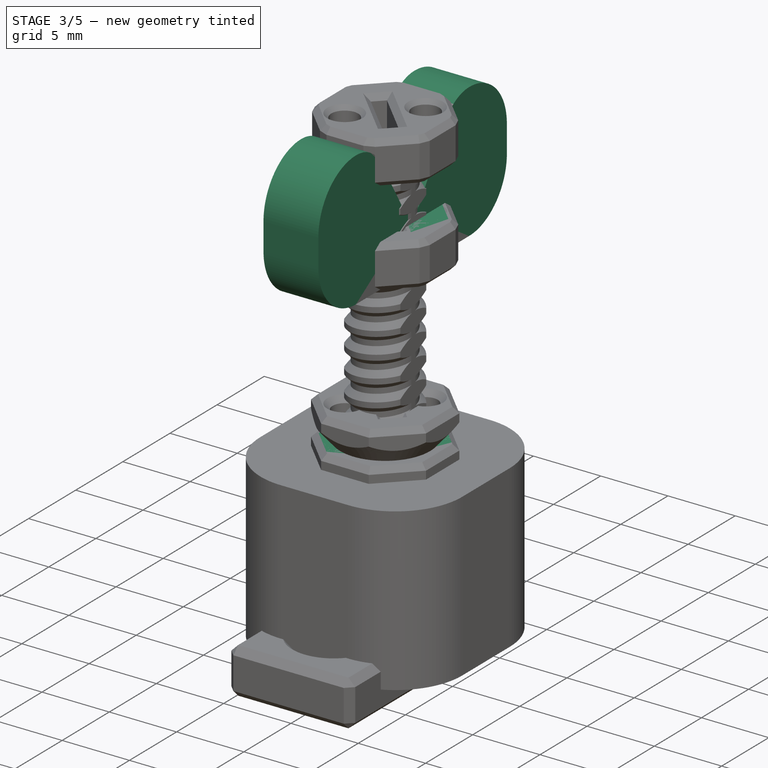
[diagram: stage 3 of 5 — iso view after this stage's code; geometry added in this stage tinted green]
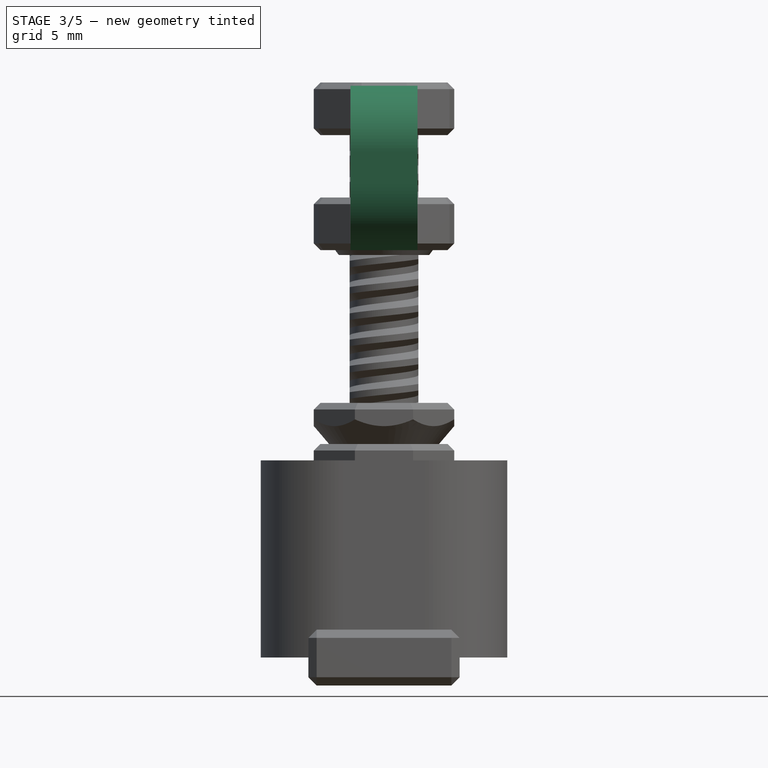
[diagram: stage 3 of 5 — front view after this stage's code; geometry added in this stage tinted green]
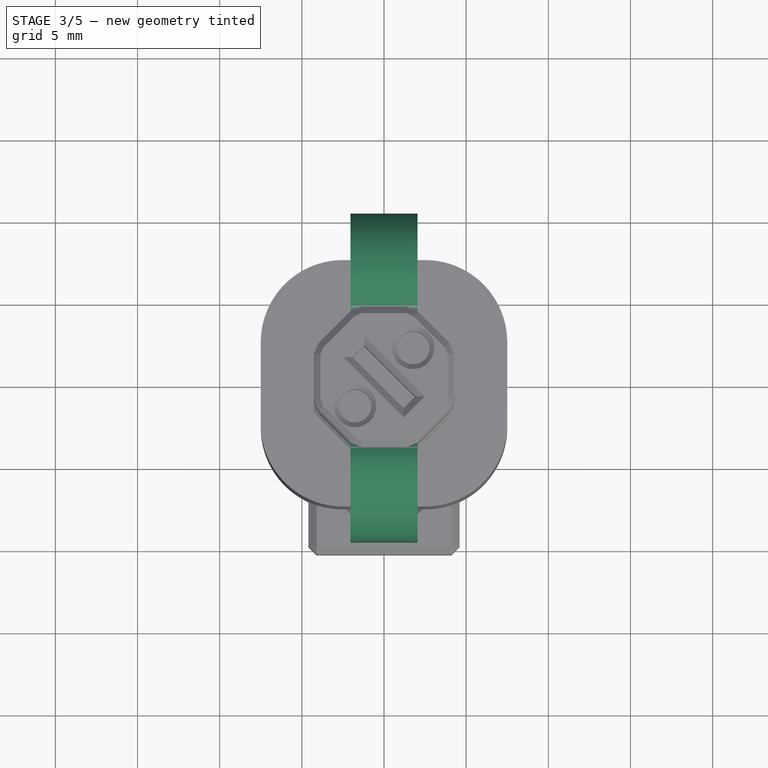
[diagram: stage 3 of 5 — top view after this stage's code; geometry added in this stage tinted green]
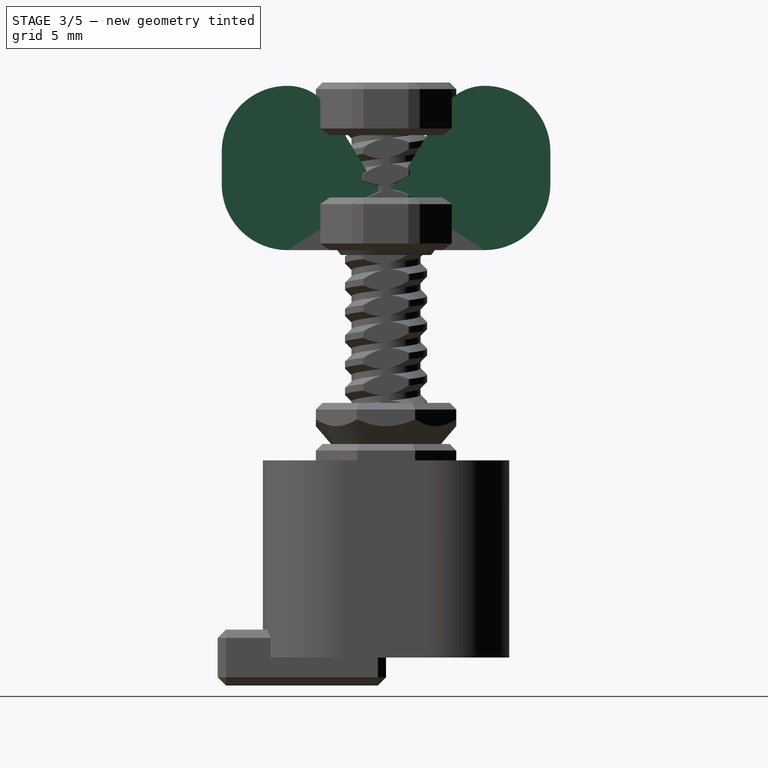
[diagram: stage 3 of 5 — right view after this stage's code; geometry added in this stage tinted green]
FEATURE [PartDesign::Body] Body  label="5-4N-Square Nut-GSP"
  AllowCompound = false
  Group = -> [Sketch020,Pad,Sketch001,Pocket005,Sketch002,Sketch003,Sketch021,Pocket006,Groove001,SubtractiveHelix,Sketch022,Pocket007,Fillet,Chamfer011,DatumPlane]
  Origin = -> Origin006
  Placement = pos=(0,20,2) rot=(0,0,1;0rad)
  Tip = -> Chamfer011
FEATURE [Sketcher::SketchObject] Sketch024
  ArcFitTolerance = 1e-06
  AttachmentSupport = -> [XZ_Plane004]
  FullyConstrained = true
  MakeInternals = false
  MapMode = 5
  Placement = pos=(0,0,0) rot=(1,0,0;1.5708rad)
  sketch-geometry (10):
    g0: LineSegment [constr] StartX=0 StartY=0 StartZ=0 EndX=-2.5 EndY=0 EndZ=0
    g1: LineSegment [constr] StartX=-2.5 StartY=0 StartZ=0 EndX=-2.5 EndY=-0.4 EndZ=0
    g2: LineSegment StartX=-2.5 StartY=-0.4 StartZ=0 EndX=-2.1 EndY=-0.8 EndZ=0
    g3: LineSegment StartX=-2.1 StartY=-0.8 StartZ=0 EndX=-2.1 EndY=-1.2 EndZ=0
    g4: LineSegment StartX=-2.1 StartY=-1.2 StartZ=0 EndX=-2.5 EndY=-1.6 EndZ=0
    g5: LineSegment [constr] StartX=-2.5 StartY=-1.6 StartZ=0 EndX=0 EndY=-1.6 EndZ=0
    g6: LineSegment [constr] StartX=0 StartY=-1.6 StartZ=0 EndX=0 EndY=0 EndZ=0
    g7: LineSegment StartX=-2.5 StartY=-0.4 StartZ=0 EndX=-2.5 EndY=-1.6 EndZ=0
    g8: LineSegment [constr] StartX=-2.5 StartY=-0.4 StartZ=0 EndX=-2.1 EndY=-0.4 EndZ=0
    g9: LineSegment [constr] StartX=-2.1 StartY=-0.4 StartZ=0 EndX=-2.1 EndY=-0.8 EndZ=0
  constraints (27):
    c: Coincident(g-1,g0)
    c: PointOnObject(g0,g-1)
    c: Coincident(g0,g1)
    c: Vertical(g1)
    c: Coincident(g1,g2)
    c: Coincident(g2,g3)
    c: Vertical(g3)
    c: Coincident(g3,g4)
    c: Coincident(g4,g5)
    c: Horizontal(g5)
    c: Coincident(g5,g6)
    c: Coincident(g6,g0)
    c: Vertical(g6)
    c: DistanceX(g0,g0) = 2.5
    c: Equal(g0,g5)
    c: Coincident(g7,g1)
    c: Coincident(g7,g4)
    c: DistanceY(g1,g1) = 0.4
    c: Coincident(g8,g1)
    c: Horizontal(g8)
    c: Coincident(g9,g8)
    c: Coincident(g9,g2)
    c: Vertical(g9)
    c: Equal(g2,g4)
    c: DistanceY(g9,g9) = 0.4
    c: Distance(g8,g8) = 0.4
    c: DistanceY(g3,g3) = 0.4
FEATURE [Sketcher::SketchObject] Sketch025
  ArcFitTolerance = 1e-06
  AttachmentSupport = -> [XY_Plane004]
  ExternalGeometry = -> [Sketch024]
  FullyConstrained = true
  MakeInternals = false
  MapMode = 5
  sketch-geometry (7):
    g0: Circle [constr] CenterX=0 CenterY=0 CenterZ=0 NormalX=0 NormalY=0 NormalZ=1 AngleXU=0 Radius=2.5
    g1: LineSegment StartX=-2.09045 StartY=-1.37113 StartZ=0 EndX=-2.09045 EndY=1.37113 EndZ=0
    g2: LineSegment StartX=2.09045 StartY=-1.37113 StartZ=0 EndX=2.09045 EndY=1.37113 EndZ=0
    g3: ArcOfCircle CenterX=0 CenterY=0 CenterZ=0 NormalX=0 NormalY=0 NormalZ=1 AngleXU=0 Radius=2.5 StartAngle=3.7221 EndAngle=5.70267
    g4: ArcOfCircle CenterX=1e-16 CenterY=-6e-16 CenterZ=0 NormalX=0 NormalY=0 NormalZ=1 AngleXU=0 Radius=2.5 StartAngle=0.580512 EndAngle=2.56108
    g5: LineSegment [constr] StartX=-2.09045 StartY=0.2 StartZ=0 EndX=-2.09045 EndY=-0.2 EndZ=0
    g6: Circle [constr] CenterX=1e-16 CenterY=-6e-16 CenterZ=0 NormalX=0 NormalY=0 NormalZ=1 AngleXU=0 Radius=2.1
  constraints (21):
    c: Coincident(g0,g-1)
    c: PointOnObject(g-3,g0)
    c: PointOnObject(g1,g0)
    c: PointOnObject(g1,g0)
    c: PointOnObject(g2,g0)
    c: Coincident(g3,g0)
    c: Coincident(g3,g2)
    c: Coincident(g3,g1)
    c: Equal(g1,g2)
    c: Coincident(g2,g4)
    c: Coincident(g1,g4)
    c: Vertical(g1)
    c: Vertical(g2)
    c: Equal(g0,g4)
    c: Vertical(g5)
    c: Distance(g5) = 0.4
    c: Coincident(g6,g4)
    c: PointOnObject(g5,g6)
    c: PointOnObject(g5,g6)
    c: PointOnObject(g5,g1)
    c: PointOnObject(g-4,g6)
FEATURE [PartDesign::Pad] Pad005
  Direction = (0,0,1)
  Length = 9.5
  Length2 = 10
  Profile = -> Sketch025
  ReferenceAxis = -> Sketch025 [N_Axis]
  Refine = true
  Suppressed = false
  Type = 0
FEATURE [PartDesign::Chamfer] Chamfer012
  Angle = 45
  Base = -> Pad005 [Edge3,Edge9]
  BaseFeature = -> Pad005
  ChamferType = 0
  FlipDirection = false
  Refine = true
  Size = 0.2
  Size2 = 1
  SupportTransform = false
  Suppressed = false
  UseAllEdges = false
FEATURE [Sketcher::SketchObject] Sketch026
  ArcFitTolerance = 1e-06
  AttachmentSupport = -> [XZ_Plane004]
  ExternalGeometry = -> [Pad005]
  FullyConstrained = true
  MakeInternals = false
  MapMode = 5
  Placement = pos=(0,0,0) rot=(1,0,0;1.5708rad)
  sketch-geometry (7):
    g0: LineSegment StartX=0 StartY=13 StartZ=0 EndX=4.625 EndY=13 EndZ=0
    g1: LineSegment StartX=4.625 StartY=13 StartZ=0 EndX=4.625 EndY=12 EndZ=0
    g2: LineSegment StartX=4.625 StartY=12 StartZ=0 EndX=2.5 EndY=9.5 EndZ=0
    g3: LineSegment StartX=2.5 StartY=9.5 StartZ=0 EndX=0 EndY=9.5 EndZ=0
    g4: LineSegment StartX=0 StartY=9.5 StartZ=0 EndX=0 EndY=13 EndZ=0
    g5: LineSegment [constr] StartX=4.625 StartY=12 StartZ=0 EndX=2.5 EndY=12 EndZ=0
    g6: LineSegment [constr] StartX=2.5 StartY=12 StartZ=0 EndX=2.5 EndY=9.5 EndZ=0
  constraints (20):
    c: PointOnObject(g0,g-2)
    c: Horizontal(g0)
    c: Coincident(g1,g0)
    c: Vertical(g1)
    c: Coincident(g2,g1)
    c: Coincident(g3,g2)
    c: Coincident(g4,g3)
    c: Coincident(g4,g0)
    c: PointOnObject(g3,g-2)
    c: DistanceY(g1,g1) = 1
    c: Distance(g4,g4) = 3.5
    c: Coincident(g5,g1)
    c: Horizontal(g5)
    c: Coincident(g6,g5)
    c: Coincident(g6,g2)
    c: Vertical(g6)
    c: Distance(g0,g0) = 4.625
    c: Distance(g3,g3) = 2.5
    c: Horizontal(g3)
    c: PointOnObject(g3,g-3)
FEATURE [PartDesign::SubtractiveHelix] SubtractiveHelix004
  Angle = 0
  Axis = (0,2e-16,1)
  Base = (0,0,0)
  BaseFeature = -> Chamfer012
  Growth = 0
  HasBeenEdited = true
  Height = 28
  LeftHanded = false
  Mode = 0
  Outside = false
  Pitch = 1.6
  Profile = -> Sketch024
  ReferenceAxis = -> Sketch024 [V_Axis]
  Refine = true
  Suppressed = false
  Tolerance = 0.1
  Turns = 17.5
FEATURE [PartDesign::Revolution] Revolution003
  Angle = 360
  Angle2 = 60
  Axis = (0,2e-16,1)
  Base = (0,0,0)
  BaseFeature = -> SubtractiveHelix004
  Profile = -> Sketch026
  ReferenceAxis = -> Sketch026 [V_Axis]
  Refine = true
  Reversed = true
  Suppressed = false
  Type = 0
FEATURE [Sketcher::SketchObject] Sketch023
  ArcFitTolerance = 1e-06
  AttachmentSupport = -> [Revolution003]
  FullyConstrained = true
  MakeInternals = false
  MapMode = 5
  Placement = pos=(0,2.9e-15,13) rot=(0,0,1;0rad)
  sketch-geometry (7):
    g0: LineSegment StartX=-1.90476 StartY=1.19766 StartZ=0 EndX=1.19766 EndY=-1.90476 EndZ=0
    g1: LineSegment StartX=1.19766 StartY=-1.90476 StartZ=0 EndX=1.90476 EndY=-1.19766 EndZ=0
    g2: LineSegment StartX=1.90476 StartY=-1.19766 StartZ=0 EndX=-1.19766 EndY=1.90476 EndZ=0
    g3: LineSegment StartX=-1.19766 StartY=1.90476 StartZ=0 EndX=-1.90476 EndY=1.19766 EndZ=0
    g4: GeomPoint [constr] X=0 Y=0 Z=0
    g5: LineSegment [constr] StartX=0 StartY=0 StartZ=0 EndX=1.55121 EndY=-1.55121 EndZ=0
    g6: Circle [constr] CenterX=0 CenterY=0 CenterZ=0 NormalX=0 NormalY=0 NormalZ=1 AngleXU=0 Radius=2.25
  constraints (16):
    c: Coincident(g0,g1)
    c: Coincident(g1,g2)
    c: Coincident(g2,g3)
    c: Coincident(g3,g0)
    c: Symmetric(g2,g0,g4)
    c: Coincident(g4,g-1)
    c: Distance(g1,g1) = 1
    c: Perpendicular(g2,g3)
    c: Perpendicular(g1,g2)
    c: Perpendicular(g0,g1)
    c: Coincident(g5,g4)
    c: Symmetric(g1,g1,g5)
    c: Angle(g5,g-1) = 0.785398
    c: Coincident(g6,g4)
    c: Diameter(g6) = 4.5
    c: PointOnObject(g2,g6)
FEATURE [PartDesign::Pocket] Pocket008
  BaseFeature = -> Revolution003
  Direction = (0,0,-1)
  Length = 3
  Length2 = 5
  Profile = -> Sketch023
  ReferenceAxis = -> Sketch023 [N_Axis]
  Refine = true
  Suppressed = false
  TaperAngle = -5
  Type = 0
FEATURE [Sketcher::SketchObject] Sketch027
  ArcFitTolerance = 1e-06
  AttachmentSupport = -> [Revolution003]
  ExternalGeometry = -> [Revolution003]
  FullyConstrained = true
  MakeInternals = false
  MapMode = 5
  Placement = pos=(0,2.9e-15,13) rot=(0,0,1;0rad)
  sketch-geometry (10):
    g0: LineSegment StartX=-1.76991 StartY=4.27294 StartZ=0 EndX=-4.27294 EndY=1.76991 EndZ=0
    g1: LineSegment StartX=-4.27294 StartY=1.76991 StartZ=0 EndX=-4.27294 EndY=-1.76991 EndZ=0
    g2: LineSegment StartX=-4.27294 StartY=-1.76991 StartZ=0 EndX=-1.76991 EndY=-4.27294 EndZ=0
    g3: LineSegment StartX=-1.76991 StartY=-4.27294 StartZ=0 EndX=1.76991 EndY=-4.27294 EndZ=0
    g4: LineSegment StartX=1.76991 StartY=-4.27294 StartZ=0 EndX=4.27294 EndY=-1.76991 EndZ=0
    g5: LineSegment StartX=4.27294 StartY=-1.76991 StartZ=0 EndX=4.27294 EndY=1.76991 EndZ=0
    g6: LineSegment StartX=4.27294 StartY=1.76991 StartZ=0 EndX=1.76991 EndY=4.27294 EndZ=0
    g7: LineSegment StartX=1.76991 StartY=4.27294 StartZ=0 EndX=-1.76991 EndY=4.27294 EndZ=0
    g8: Circle [constr] CenterX=0 CenterY=0 CenterZ=0 NormalX=0 NormalY=0 NormalZ=1 AngleXU=0 Radius=4.625
    g9: Circle CenterX=0 CenterY=0 CenterZ=0 NormalX=0 NormalY=0 NormalZ=1 AngleXU=0 Radius=6
  constraints (22):
    c: Coincident(g0,g1)
    c: Coincident(g1,g2)
    c: Coincident(g2,g3)
    c: Coincident(g3,g4)
    c: Coincident(g4,g5)
    c: Coincident(g5,g6)
    c: Coincident(g6,g7)
    c: Coincident(g7,g0)
    c: Equal(g0, g1-g7) x7
    c: PointOnObject(g0,g8)
    c: PointOnObject(g1,g8)
    c: PointOnObject(g2,g8)
    c: PointOnObject(g3,g8)
    c: PointOnObject(g4,g8)
    c: PointOnObject(g5,g8)
    c: PointOnObject(g6,g8)
    c: PointOnObject(g7,g8)
    c: Coincident(g8,g-1)
    c: PointOnObject(g0,g-3)
    c: Vertical(g1)
    c: Diameter(g9) = 12
    c: Coincident(g9,g8)
FEATURE [PartDesign::Pocket] Pocket009
  BaseFeature = -> Pocket008
  Direction = (0,0,-1)
  Length = 5
  Length2 = 5
  Profile = -> Sketch027
  ReferenceAxis = -> Sketch027 [N_Axis]
  Refine = true
  Suppressed = false
  Type = 0
FEATURE [PartDesign::Chamfer] Chamfer013
  Angle = 45
  Base = -> Pocket009 [Edge15,Edge13,Edge27,Edge17,Edge19,Edge21,Edge23,Edge25,Face1]
  BaseFeature = -> Pocket009
  ChamferType = 0
  FlipDirection = false
  Refine = true
  Size = 0.4
  Size2 = 1
  SupportTransform = false
  Suppressed = false
  UseAllEdges = false
FEATURE [PartDesign::Body] Body010  label="3-4N-13mm - Slot"
  AllowCompound = false
  Group = -> [Sketch054,Sketch055,Pad011,Chamfer021,SubtractiveHelix010,Sketch056,Revolution006,Sketch057,Pocket021,Sketch058,Pocket022,Chamfer022]
  Origin = -> Origin016
  Placement = pos=(0,10,0) rot=(0,0,1;0rad)
  Tip = -> Chamfer022
FEATURE [Sketcher::SketchObject] Sketch059  label="5-4N Screw Profile"
  ArcFitTolerance = 1e-06
  AttachmentSupport = -> [XZ_Plane015]
  FullyConstrained = true
  MakeInternals = false
  MapMode = 5
  Placement = pos=(0,0,0) rot=(1,0,0;1.5708rad)
  sketch-geometry (24):
    g0: LineSegment [constr] StartX=0 StartY=0 StartZ=0 EndX=0 EndY=-5 EndZ=0
    g1: LineSegment [constr] StartX=0 StartY=-5 StartZ=0 EndX=-2.5 EndY=-5 EndZ=0
    g2: LineSegment StartX=-2.5 StartY=-5 StartZ=0 EndX=-2.5 EndY=-5.4 EndZ=0
    g3: LineSegment StartX=-2.5 StartY=-5.4 StartZ=0 EndX=-2.1 EndY=-5.8 EndZ=0
    g4: LineSegment StartX=-2.1 StartY=-5.8 StartZ=0 EndX=-2.1 EndY=-6.2 EndZ=0
    g5: LineSegment StartX=-2.1 StartY=-6.2 StartZ=0 EndX=-2.5 EndY=-6.6 EndZ=0
    g6: LineSegment StartX=-2.5 StartY=-6.6 StartZ=0 EndX=-2.5 EndY=-7 EndZ=0
    g7: LineSegment StartX=-2.5 StartY=-7 StartZ=0 EndX=-2.1 EndY=-7.4 EndZ=0
    g8: LineSegment StartX=-2.1 StartY=-7.4 StartZ=0 EndX=-2.1 EndY=-7.8 EndZ=0
    g9: LineSegment StartX=-2.1 StartY=-7.8 StartZ=0 EndX=-2.5 EndY=-8.2 EndZ=0
    g10: LineSegment StartX=-2.5 StartY=-8.2 StartZ=0 EndX=-2.5 EndY=-8.6 EndZ=0
    g11: LineSegment StartX=-2.5 StartY=-8.6 StartZ=0 EndX=-2.1 EndY=-9 EndZ=0
    g12: LineSegment StartX=-2.1 StartY=-9 StartZ=0 EndX=-2.1 EndY=-9.4 EndZ=0
    g13: LineSegment StartX=-2.1 StartY=-9.4 StartZ=0 EndX=-2.5 EndY=-9.8 EndZ=0
    g14: LineSegment [constr] StartX=-2.5 StartY=-9.8 StartZ=0 EndX=-2.5 EndY=-8.6 EndZ=0
    g15: LineSegment [constr] StartX=-2.1 StartY=-9 StartZ=0 EndX=-2.1 EndY=-7.8 EndZ=0
    g16: LineSegment [constr] StartX=-2.5 StartY=-8.2 StartZ=0 EndX=-2.5 EndY=-7 EndZ=0
    g17: LineSegment [constr] StartX=-2.1 StartY=-7.4 StartZ=0 EndX=-2.1 EndY=-6.2 EndZ=0
    g18: LineSegment [constr] StartX=-2.5 StartY=-5.4 StartZ=0 EndX=-2.5 EndY=-6.6 EndZ=0
    g19: LineSegment [constr] StartX=-2.5 StartY=-5.4 StartZ=0 EndX=-2.5 EndY=-5.8 EndZ=0
    g20: LineSegment [constr] StartX=-2.5 StartY=-5.8 StartZ=0 EndX=-2.1 EndY=-5.8 EndZ=0
    g21: LineSegment [constr] StartX=-2.1 StartY=-5.8 StartZ=0 EndX=-2.1 EndY=-5.4 EndZ=0
    g22: LineSegment [constr] StartX=-2.1 StartY=-5.4 StartZ=0 EndX=-2.5 EndY=-5.4 EndZ=0
    g23: LineSegment [constr] StartX=-2.1 StartY=-5.4 StartZ=0 EndX=-2.1 EndY=-5 EndZ=0
  constraints (65):
    c: Coincident(g0,g-1)
    c: Vertical(g0)
    c: Coincident(g1,g0)
    c: Horizontal(g1)
    c: Coincident(g1,g2)
    c: Vertical(g2)
    c: Coincident(g2,g3)
    c: Coincident(g3,g4)
    c: Vertical(g4)
    c: Coincident(g4,g5)
    c: Coincident(g5,g6)
    c: Vertical(g6)
    c: Coincident(g6,g7)
    c: Coincident(g7,g8)
    c: Vertical(g8)
    c: Coincident(g8,g9)
    c: Coincident(g9,g10)
    c: Vertical(g10)
    c: Coincident(g10,g11)
    c: Coincident(g11,g12)
    c: Vertical(g12)
    c: Coincident(g12,g13)
    c: Coincident(g14,g10)
    c: Vertical(g14)
    c: Coincident(g15,g11)
    c: Coincident(g15,g8)
    c: Vertical(g15)
    c: Coincident(g16,g9)
    c: Coincident(g16,g6)
    c: Vertical(g16)
    c: Coincident(g17,g7)
    c: Coincident(g17,g4)
    c: Vertical(g17)
    c: Coincident(g18,g2)
    c: Coincident(g18,g5)
    c: Vertical(g18)
    c: Equal(g3,g5)
    c: Equal(g5,g7)
    c: Equal(g7,g9)
    c: Equal(g9,g11)
    c: Equal(g11,g13)
    c: Coincident(g13,g14)
    c: Coincident(g19,g20)
    c: Coincident(g20,g21)
    c: Coincident(g21,g22)
    c: Coincident(g22,g19)
    c: Vertical(g19)
    c: Vertical(g21)
    c: Horizontal(g20)
    c: Horizontal(g22)
    c: Coincident(g19,g2)
    c: Coincident(g20,g3)
    c: Equal(g22,g21)
    c: Coincident(g23,g21)
    c: PointOnObject(g23,g1)
    c: Vertical(g23)
    c: Equal(g2,g20)
    c: Equal(g20,g4)
    c: Equal(g6,g4)
    c: Equal(g6,g8)
    c: Equal(g8,g10)
    c: Equal(g10,g12)
    c: DistanceY(g0,g0) = 5
    c: Distance(g2,g2) = 0.4
    c: Distance(g1,g1) = 2.5
FEATURE [Sketcher::SketchObject] Sketch060  label="5-4N Nut Profile"
  ArcFitTolerance = 1e-06
  AttachmentSupport = -> [XZ_Plane015]
  FullyConstrained = true
  MakeInternals = false
  MapMode = 5
  Placement = pos=(0,0,0) rot=(1,0,0;1.5708rad)
  sketch-geometry (24):
    g0: LineSegment [constr] StartX=0 StartY=0 StartZ=0 EndX=0 EndY=-4.95 EndZ=0
    g1: LineSegment [constr] StartX=0 StartY=-4.95 StartZ=0 EndX=-2.65 EndY=-4.95 EndZ=0
    g2: LineSegment StartX=-2.65 StartY=-4.95 StartZ=0 EndX=-2.65 EndY=-5.45 EndZ=0
    g3: LineSegment StartX=-2.65 StartY=-5.45 StartZ=0 EndX=-2.25 EndY=-5.85 EndZ=0
    g4: LineSegment StartX=-2.25 StartY=-5.85 StartZ=0 EndX=-2.25 EndY=-6.15 EndZ=0
    g5: LineSegment StartX=-2.25 StartY=-6.15 StartZ=0 EndX=-2.65 EndY=-6.55 EndZ=0
    g6: LineSegment StartX=-2.65 StartY=-6.55 StartZ=0 EndX=-2.65 EndY=-7.05 EndZ=0
    g7: LineSegment StartX=-2.65 StartY=-7.05 StartZ=0 EndX=-2.25 EndY=-7.45 EndZ=0
    g8: LineSegment StartX=-2.25 StartY=-7.45 StartZ=0 EndX=-2.25 EndY=-7.75 EndZ=0
    g9: LineSegment StartX=-2.25 StartY=-7.75 StartZ=0 EndX=-2.65 EndY=-8.15 EndZ=0
    g10: LineSegment StartX=-2.65 StartY=-8.15 StartZ=0 EndX=-2.65 EndY=-8.65 EndZ=0
    g11: LineSegment StartX=-2.65 StartY=-8.65 StartZ=0 EndX=-2.25 EndY=-9.05 EndZ=0
    g12: LineSegment StartX=-2.25 StartY=-9.05 StartZ=0 EndX=-2.25 EndY=-9.35 EndZ=0
    g13: LineSegment StartX=-2.25 StartY=-9.35 StartZ=0 EndX=-2.65 EndY=-9.75 EndZ=0
    g14: LineSegment [constr] StartX=-2.65 StartY=-9.75 StartZ=0 EndX=-2.65 EndY=-8.65 EndZ=0
    g15: LineSegment [constr] StartX=-2.25 StartY=-9.05 StartZ=0 EndX=-2.25 EndY=-7.75 EndZ=0
    g16: LineSegment [constr] StartX=-2.65 StartY=-8.15 StartZ=0 EndX=-2.65 EndY=-7.05 EndZ=0
    g17: LineSegment [constr] StartX=-2.25 StartY=-7.45 StartZ=0 EndX=-2.25 EndY=-6.15 EndZ=0
    g18: LineSegment [constr] StartX=-2.65 StartY=-6.55 StartZ=0 EndX=-2.65 EndY=-5.45 EndZ=0
    g19: LineSegment [constr] StartX=-2.65 StartY=-5.45 StartZ=0 EndX=-2.65 EndY=-5.85 EndZ=0
    g20: LineSegment [constr] StartX=-2.65 StartY=-5.85 StartZ=0 EndX=-2.25 EndY=-5.85 EndZ=0
    g21: LineSegment [constr] StartX=-2.25 StartY=-5.85 StartZ=0 EndX=-2.25 EndY=-5.45 EndZ=0
    g22: LineSegment [constr] StartX=-2.25 StartY=-5.45 StartZ=0 EndX=-2.65 EndY=-5.45 EndZ=0
    g23: LineSegment [constr] StartX=-2.25 StartY=-5.45 StartZ=0 EndX=-2.25 EndY=-4.95 EndZ=0
  constraints (65):
    c: Coincident(g0,g-1)
    c: PointOnObject(g0,g-2)
    c: DistanceY(g0,g0) = 4.95
    c: Coincident(g1,g0)
    c: Horizontal(g1)
    c: Distance(g1,g1) = 2.65
    c: Coincident(g1,g2)
    c: Vertical(g2)
    c: Coincident(g2,g3)
    c: Coincident(g3,g4)
    c: Vertical(g4)
    c: Coincident(g4,g5)
    c: Coincident(g5,g6)
    c: Vertical(g6)
    c: Coincident(g6,g7)
    c: Coincident(g7,g8)
    c: Vertical(g8)
    c: Coincident(g8,g9)
    c: Coincident(g9,g10)
    c: Vertical(g10)
    c: Coincident(g10,g11)
    c: Coincident(g11,g12)
    c: Vertical(g12)
    c: Coincident(g12,g13)
    c: Coincident(g14,g13)
    c: Coincident(g14,g10)
    c: Vertical(g14)
    c: Coincident(g15,g11)
    c: Coincident(g15,g8)
    c: Vertical(g15)
    c: Coincident(g16,g9)
    c: Coincident(g16,g6)
    c: Vertical(g16)
    c: Coincident(g17,g7)
    c: Coincident(g17,g4)
    c: Vertical(g17)
    c: Coincident(g18,g5)
    c: Coincident(g18,g2)
    c: Vertical(g18)
    c: Coincident(g19,g20)
    c: Coincident(g20,g21)
    c: Coincident(g21,g22)
    c: Coincident(g22,g19)
    c: Vertical(g19)
    c: Vertical(g21)
    c: Horizontal(g20)
    c: Horizontal(g22)
    c: Coincident(g19,g2)
    c: Coincident(g20,g3)
    c: Equal(g22,g21)
    c: Coincident(g23,g21)
    c: PointOnObject(g23,g1)
    c: Vertical(g23)
    c: Equal(g2,g6)
    c: Equal(g6,g10)
    c: Equal(g12,g8)
    c: Equal(g8,g4)
    c: Equal(g3,g5)
    c: Equal(g5,g7)
    c: Equal(g7,g9)
    c: Equal(g9,g11)
    c: Equal(g11,g13)
    c: Distance(g2,g2) = 0.5
    c: Distance(g21,g21) = 0.4
    c: Distance(g4,g4) = 0.3
FEATURE [PartDesign::Body] Body011  label="5-4N Profile"
  AllowCompound = false
  Group = -> [Sketch059,Sketch060]
  Origin = -> Origin017
FEATURE [Sketcher::SketchObject] Sketch061  label="3-4N Screw Profile"
  ArcFitTolerance = 1e-06
  AttachmentSupport = -> [YZ_Plane016]
  FullyConstrained = true
  MakeInternals = false
  MapMode = 5
  Placement = pos=(0,0,0) rot=(0.57735,0.57735,0.57735;2.0944rad)
  sketch-geometry (28):
    g0: LineSegment [constr] StartX=0 StartY=0 StartZ=0 EndX=0 EndY=-5 EndZ=0
    g1: LineSegment [constr] StartX=0 StartY=-5 StartZ=0 EndX=-1.5 EndY=-5 EndZ=0
    g2: LineSegment StartX=-1.5 StartY=-5 StartZ=0 EndX=-1.5 EndY=-5.4 EndZ=0
    g3: LineSegment StartX=-1.5 StartY=-5.4 StartZ=0 EndX=-1.1 EndY=-5.8 EndZ=0
    g4: LineSegment StartX=-1.1 StartY=-5.8 StartZ=0 EndX=-1.1 EndY=-6.2 EndZ=0
    g5: LineSegment StartX=-1.1 StartY=-6.2 StartZ=0 EndX=-1.5 EndY=-6.6 EndZ=0
    g6: LineSegment StartX=-1.5 StartY=-6.6 StartZ=0 EndX=-1.5 EndY=-7 EndZ=0
    g7: LineSegment StartX=-1.5 StartY=-7 StartZ=0 EndX=-1.1 EndY=-7.4 EndZ=0
    g8: LineSegment StartX=-1.1 StartY=-7.4 StartZ=0 EndX=-1.1 EndY=-7.8 EndZ=0
    g9: LineSegment StartX=-1.1 StartY=-7.8 StartZ=0 EndX=-1.5 EndY=-8.2 EndZ=0
    g10: LineSegment StartX=-1.5 StartY=-8.2 StartZ=0 EndX=-1.5 EndY=-8.6 EndZ=0
    g11: LineSegment StartX=-1.5 StartY=-8.6 StartZ=0 EndX=-1.1 EndY=-9 EndZ=0
    g12: LineSegment StartX=-1.1 StartY=-9 StartZ=0 EndX=-1.1 EndY=-9.4 EndZ=0
    g13: LineSegment StartX=-1.1 StartY=-9.4 StartZ=0 EndX=-1.5 EndY=-9.8 EndZ=0
    g14: LineSegment StartX=-1.5 StartY=-9.8 StartZ=0 EndX=-1.5 EndY=-10.2 EndZ=0
    g15: LineSegment [constr] StartX=-1.5 StartY=-10.2 StartZ=0 EndX=0 EndY=-10.2 EndZ=0
    g16: LineSegment [constr] StartX=0 StartY=-10.2 StartZ=0 EndX=0 EndY=-5 EndZ=0
    g17: LineSegment [constr] StartX=-1.5 StartY=-5.4 StartZ=0 EndX=-1.5 EndY=-6.6 EndZ=0
    g18: LineSegment [constr] StartX=-1.5 StartY=-7 StartZ=0 EndX=-1.5 EndY=-8.2 EndZ=0
    g19: LineSegment [constr] StartX=-1.5 StartY=-8.6 StartZ=0 EndX=-1.5 EndY=-9.8 EndZ=0
    g20: LineSegment [constr] StartX=-1.1 StartY=-9.4 StartZ=0 EndX=-1.1 EndY=-10.2 EndZ=0
    g21: LineSegment [constr] StartX=-1.1 StartY=-9 StartZ=0 EndX=-1.1 EndY=-7.8 EndZ=0
    g22: LineSegment [constr] StartX=-1.1 StartY=-7.4 StartZ=0 EndX=-1.1 EndY=-6.2 EndZ=0
    g23: LineSegment [constr] StartX=-1.5 StartY=-5.4 StartZ=0 EndX=-1.5 EndY=-5.8 EndZ=0
    g24: LineSegment [constr] StartX=-1.5 StartY=-5.8 StartZ=0 EndX=-1.1 EndY=-5.8 EndZ=0
    g25: LineSegment [constr] StartX=-1.1 StartY=-5.8 StartZ=0 EndX=-1.1 EndY=-5.4 EndZ=0
    g26: LineSegment [constr] StartX=-1.1 StartY=-5.4 StartZ=0 EndX=-1.5 EndY=-5.4 EndZ=0
    g27: LineSegment [constr] StartX=-1.1 StartY=-5.4 StartZ=0 EndX=-1.1 EndY=-5 EndZ=0
  constraints (76):
    c: Distance(g0) = 5
    c: Coincident(g0,g-1)
    c: PointOnObject(g0,g-2)
    c: Distance(g1) = 1.5
    c: Coincident(g1,g0)
    c: Horizontal(g1)
    c: Coincident(g1,g2)
    c: Vertical(g2)
    c: Coincident(g2,g3)
    c: Coincident(g3,g4)
    c: Vertical(g4)
    c: Coincident(g4,g5)
    c: Coincident(g5,g6)
    c: Vertical(g6)
    c: Coincident(g6,g7)
    c: Coincident(g7,g8)
    c: Vertical(g8)
    c: Coincident(g8,g9)
    c: Coincident(g9,g10)
    c: Vertical(g10)
    c: Coincident(g10,g11)
    c: Coincident(g11,g12)
    c: Vertical(g12)
    c: Coincident(g12,g13)
    c: Coincident(g13,g14)
    c: Vertical(g14)
    c: Coincident(g14,g15)
    c: PointOnObject(g15,g-2)
    c: Horizontal(g15)
    c: Coincident(g15,g16)
    c: Coincident(g16,g0)
    c: Coincident(g17,g2)
    c: Coincident(g17,g5)
    c: Vertical(g17)
    c: Coincident(g18,g6)
    c: Coincident(g18,g9)
    c: Vertical(g18)
    c: Coincident(g19,g10)
    c: Coincident(g19,g13)
    c: Vertical(g19)
    c: Coincident(g20,g12)
    c: PointOnObject(g20,g15)
    c: Vertical(g20)
    c: Coincident(g21,g11)
    c: Coincident(g21,g8)
    c: Vertical(g21)
    c: Coincident(g22,g7)
    c: Coincident(g22,g4)
    c: Vertical(g22)
    c: Equal(g2,g4)
    c: Equal(g4,g6)
    c: Equal(g6,g8)
    c: Equal(g10,g8)
    c: Equal(g10,g12)
    c: Equal(g12,g14)
    c: Equal(g13,g11)
    c: Equal(g11,g9)
    c: Equal(g9,g7)
    c: Equal(g7,g5)
    c: Equal(g3,g5)
    c: Coincident(g23,g24)
    c: Coincident(g24,g25)
    c: Coincident(g25,g26)
    c: Coincident(g26,g23)
    c: Vertical(g23)
    c: Vertical(g25)
    c: Horizontal(g24)
    c: Horizontal(g26)
    c: Coincident(g23,g2)
    c: Coincident(g24,g3)
    c: Coincident(g27,g25)
    c: PointOnObject(g27,g1)
    c: Vertical(g27)
    c: Equal(g26,g25)
    c: Equal(g26,g2)
    c: Distance(g2,g2) = 0.4
FEATURE [Sketcher::SketchObject] Sketch062  label="3-4N Nut Profile"
  ArcFitTolerance = 1e-06
  AttachmentSupport = -> [YZ_Plane016]
  FullyConstrained = true
  MakeInternals = false
  MapMode = 5
  Placement = pos=(0,0,0) rot=(0.57735,0.57735,0.57735;2.0944rad)
  sketch-geometry (28):
    g0: LineSegment [constr] StartX=0 StartY=0 StartZ=0 EndX=0 EndY=-4.95 EndZ=0
    g1: LineSegment [constr] StartX=0 StartY=-4.95 StartZ=0 EndX=-1.65 EndY=-4.95 EndZ=0
    g2: LineSegment StartX=-1.65 StartY=-4.95 StartZ=0 EndX=-1.65 EndY=-5.45 EndZ=0
    g3: LineSegment StartX=-1.65 StartY=-5.45 StartZ=0 EndX=-1.25 EndY=-5.85 EndZ=0
    g4: LineSegment StartX=-1.25 StartY=-5.85 StartZ=0 EndX=-1.25 EndY=-6.15 EndZ=0
    g5: LineSegment StartX=-1.25 StartY=-6.15 StartZ=0 EndX=-1.65 EndY=-6.55 EndZ=0
    g6: LineSegment StartX=-1.65 StartY=-6.55 StartZ=0 EndX=-1.65 EndY=-7.05 EndZ=0
    g7: LineSegment StartX=-1.65 StartY=-7.05 StartZ=0 EndX=-1.25 EndY=-7.45 EndZ=0
    g8: LineSegment StartX=-1.25 StartY=-7.45 StartZ=0 EndX=-1.25 EndY=-7.75 EndZ=0
    g9: LineSegment StartX=-1.25 StartY=-7.75 StartZ=0 EndX=-1.65 EndY=-8.15 EndZ=0
    g10: LineSegment StartX=-1.65 StartY=-8.15 StartZ=0 EndX=-1.65 EndY=-8.65 EndZ=0
    g11: LineSegment StartX=-1.65 StartY=-8.65 StartZ=0 EndX=-1.25 EndY=-9.05 EndZ=0
    g12: LineSegment StartX=-1.25 StartY=-9.05 StartZ=0 EndX=-1.25 EndY=-9.35 EndZ=0
    g13: LineSegment StartX=-1.25 StartY=-9.35 StartZ=0 EndX=-1.65 EndY=-9.75 EndZ=0
    g14: LineSegment StartX=-1.65 StartY=-9.75 StartZ=0 EndX=-1.65 EndY=-10.25 EndZ=0
    g15: LineSegment [constr] StartX=-1.65 StartY=-10.25 StartZ=0 EndX=0 EndY=-10.25 EndZ=0
    g16: LineSegment [constr] StartX=0 StartY=-10.25 StartZ=0 EndX=0 EndY=-4.95 EndZ=0
    g17: LineSegment [constr] StartX=-1.65 StartY=-5.45 StartZ=0 EndX=-1.65 EndY=-6.55 EndZ=0
    g18: LineSegment [constr] StartX=-1.65 StartY=-7.05 StartZ=0 EndX=-1.65 EndY=-8.15 EndZ=0
    g19: LineSegment [constr] StartX=-1.65 StartY=-8.65 StartZ=0 EndX=-1.65 EndY=-9.75 EndZ=0
    g20: LineSegment [constr] StartX=-1.25 StartY=-9.35 StartZ=0 EndX=-1.25 EndY=-10.25 EndZ=0
    g21: LineSegment [constr] StartX=-1.25 StartY=-9.05 StartZ=0 EndX=-1.25 EndY=-7.75 EndZ=0
    g22: LineSegment [constr] StartX=-1.25 StartY=-7.45 StartZ=0 EndX=-1.25 EndY=-6.15 EndZ=0
    g23: LineSegment [constr] StartX=-1.65 StartY=-5.45 StartZ=0 EndX=-1.65 EndY=-5.85 EndZ=0
    g24: LineSegment [constr] StartX=-1.65 StartY=-5.85 StartZ=0 EndX=-1.25 EndY=-5.85 EndZ=0
    g25: LineSegment [constr] StartX=-1.25 StartY=-5.85 StartZ=0 EndX=-1.25 EndY=-5.45 EndZ=0
    g26: LineSegment [constr] StartX=-1.25 StartY=-5.45 StartZ=0 EndX=-1.65 EndY=-5.45 EndZ=0
    g27: LineSegment [constr] StartX=-1.25 StartY=-5.45 StartZ=0 EndX=-1.25 EndY=-4.95 EndZ=0
  constraints (76):
    c: Distance(g0) = 4.95
    c: Coincident(g0,g-1)
    c: PointOnObject(g0,g-2)
    c: Distance(g1) = 1.65
    c: Coincident(g1,g0)
    c: Horizontal(g1)
    c: Coincident(g1,g2)
    c: Vertical(g2)
    c: Coincident(g2,g3)
    c: Coincident(g3,g4)
    c: Vertical(g4)
    c: Coincident(g4,g5)
    c: Coincident(g5,g6)
    c: Vertical(g6)
    c: Coincident(g6,g7)
    c: Coincident(g7,g8)
    c: Vertical(g8)
    c: Coincident(g8,g9)
    c: Coincident(g9,g10)
    c: Vertical(g10)
    c: Coincident(g10,g11)
    c: Coincident(g11,g12)
    c: Vertical(g12)
    c: Coincident(g12,g13)
    c: Coincident(g13,g14)
    c: Vertical(g14)
    c: Coincident(g14,g15)
    c: PointOnObject(g15,g-2)
    c: Horizontal(g15)
    c: Coincident(g15,g16)
    c: Coincident(g16,g0)
    c: Coincident(g17,g2)
    c: Coincident(g17,g5)
    c: Vertical(g17)
    c: Coincident(g18,g6)
    c: Coincident(g18,g9)
    c: Vertical(g18)
    c: Coincident(g19,g10)
    c: Coincident(g19,g13)
    c: Vertical(g19)
    c: Coincident(g20,g12)
    c: PointOnObject(g20,g15)
    c: Vertical(g20)
    c: Coincident(g21,g11)
    c: Coincident(g21,g8)
    c: Vertical(g21)
    c: Coincident(g22,g7)
    c: Coincident(g22,g4)
    c: Vertical(g22)
    c: Equal(g13,g11)
    c: Equal(g11,g9)
    c: Equal(g9,g7)
    c: Equal(g7,g5)
    c: Equal(g3,g5)
    c: Coincident(g23,g24)
    c: Coincident(g24,g25)
    c: Coincident(g25,g26)
    c: Coincident(g26,g23)
    c: Vertical(g23)
    c: Vertical(g25)
    c: Horizontal(g24)
    c: Horizontal(g26)
    c: Coincident(g23,g2)
    c: Coincident(g24,g3)
    c: Coincident(g27,g25)
    c: PointOnObject(g27,g1)
    c: Vertical(g27)
    c: Equal(g26,g25)
    c: DistanceY(g25,g25) = 0.4
    c: Equal(g2,g6)
    c: Equal(g6,g10)
    c: Equal(g10,g14)
    c: Equal(g12,g8)
    c: Equal(g8,g4)
    c: Distance(g2,g2) = 0.5
    c: Distance(g4,g4) = 0.3
FEATURE [PartDesign::Body] Body012  label="3-4N Profile"
  AllowCompound = false
  Group = -> [Sketch061,Sketch062]
  Origin = -> Origin018
FEATURE [App::Part] Part001  label="3-4N-"
  Group = -> [Body008,Body009,Body010,Body012]
  Origin = -> Origin014
  Placement = pos=(0,-30,0) rot=(0,0,1;0rad)
FEATURE [Sketcher::SketchObject] Sketch064
  ArcFitTolerance = 1e-06
  AttachmentSupport = -> [XZ_Plane017]
  FullyConstrained = true
  MakeInternals = false
  MapMode = 5
  Placement = pos=(0,0,0) rot=(1,0,0;1.5708rad)
  sketch-geometry (10):
    g0: LineSegment [constr] StartX=0 StartY=0 StartZ=0 EndX=-2.5 EndY=0 EndZ=0
    g1: LineSegment [constr] StartX=-2.5 StartY=0 StartZ=0 EndX=-2.5 EndY=-0.4 EndZ=0
    g2: LineSegment StartX=-2.5 StartY=-0.4 StartZ=0 EndX=-2.1 EndY=-0.8 EndZ=0
    g3: LineSegment StartX=-2.1 StartY=-0.8 StartZ=0 EndX=-2.1 EndY=-1.2 EndZ=0
    g4: LineSegment StartX=-2.1 StartY=-1.2 StartZ=0 EndX=-2.5 EndY=-1.6 EndZ=0
    g5: LineSegment [constr] StartX=-2.5 StartY=-1.6 StartZ=0 EndX=0 EndY=-1.6 EndZ=0
    g6: LineSegment [constr] StartX=0 StartY=-1.6 StartZ=0 EndX=0 EndY=0 EndZ=0
    g7: LineSegment StartX=-2.5 StartY=-0.4 StartZ=0 EndX=-2.5 EndY=-1.6 EndZ=0
    g8: LineSegment [constr] StartX=-2.5 StartY=-0.4 StartZ=0 EndX=-2.1 EndY=-0.4 EndZ=0
    g9: LineSegment [constr] StartX=-2.1 StartY=-0.4 StartZ=0 EndX=-2.1 EndY=-0.8 EndZ=0
  constraints (27):
    c: Coincident(g-1,g0)
    c: PointOnObject(g0,g-1)
    c: Coincident(g0,g1)
    c: Vertical(g1)
    c: Coincident(g1,g2)
    c: Coincident(g2,g3)
    c: Vertical(g3)
    c: Coincident(g3,g4)
    c: Coincident(g4,g5)
    c: Horizontal(g5)
    c: Coincident(g5,g6)
    c: Coincident(g6,g0)
    c: Vertical(g6)
    c: DistanceX(g0,g0) = 2.5
    c: Equal(g0,g5)
    c: Coincident(g7,g1)
    c: Coincident(g7,g4)
    c: DistanceY(g1,g1) = 0.4
    c: Coincident(g8,g1)
    c: Horizontal(g8)
    c: Coincident(g9,g8)
    c: Coincident(g9,g2)
    c: Vertical(g9)
    c: Equal(g2,g4)
    c: DistanceY(g9,g9) = 0.4
    c: Distance(g8,g8) = 0.4
    c: DistanceY(g3,g3) = 0.4
FEATURE [Sketcher::SketchObject] Sketch065
  ArcFitTolerance = 1e-06
  AttachmentSupport = -> [XY_Plane017]
  ExternalGeometry = -> [Sketch064]
  FullyConstrained = true
  MakeInternals = false
  MapMode = 5
  sketch-geometry (7):
    g0: Circle [constr] CenterX=0 CenterY=0 CenterZ=0 NormalX=0 NormalY=0 NormalZ=1 AngleXU=0 Radius=2.5
    g1: LineSegment StartX=-2.09045 StartY=-1.37113 StartZ=0 EndX=-2.09045 EndY=1.37113 EndZ=0
    g2: LineSegment StartX=2.09045 StartY=-1.37113 StartZ=0 EndX=2.09045 EndY=1.37113 EndZ=0
    g3: ArcOfCircle CenterX=0 CenterY=0 CenterZ=0 NormalX=0 NormalY=0 NormalZ=1 AngleXU=0 Radius=2.5 StartAngle=3.7221 EndAngle=5.70267
    g4: ArcOfCircle CenterX=-1e-16 CenterY=-5e-16 CenterZ=0 NormalX=0 NormalY=0 NormalZ=1 AngleXU=0 Radius=2.5 StartAngle=0.580512 EndAngle=2.56108
    g5: Circle [constr] CenterX=-1e-16 CenterY=-5e-16 CenterZ=0 NormalX=0 NormalY=0 NormalZ=1 AngleXU=0 Radius=2.1
    g6: LineSegment [constr] StartX=-2.09045 StartY=0.2 StartZ=0 EndX=-2.09045 EndY=-0.2 EndZ=0
  constraints (21):
    c: Coincident(g0,g-1)
    c: PointOnObject(g-3,g0)
    c: PointOnObject(g1,g0)
    c: PointOnObject(g1,g0)
    c: PointOnObject(g2,g0)
    c: Coincident(g3,g0)
    c: Coincident(g3,g2)
    c: Coincident(g3,g1)
    c: Equal(g1,g2)
    c: Coincident(g2,g4)
    c: Coincident(g1,g4)
    c: Vertical(g1)
    c: Vertical(g2)
    c: Equal(g0,g4)
    c: Coincident(g5,g4)
    c: PointOnObject(g-4,g5)
    c: PointOnObject(g6,g5)
    c: PointOnObject(g6,g5)
    c: Vertical(g6)
    c: Distance(g6) = 0.4
    c: PointOnObject(g6,g1)
FEATURE [PartDesign::Pad] Pad012
  Direction = (0,0,1)
  Length = 24.5
  Length2 = 10
  Profile = -> Sketch065
  ReferenceAxis = -> Sketch065 [N_Axis]
  Refine = true
  Suppressed = false
  Type = 0
FEATURE [PartDesign::Chamfer] Chamfer024
  Angle = 45
  Base = -> Pad012 [Edge3,Edge9]
  BaseFeature = -> Pad012
  ChamferType = 0
  FlipDirection = false
  Refine = true
  Size = 0.2
  Size2 = 1
  SupportTransform = false
  Suppressed = false
  UseAllEdges = false
FEATURE [Sketcher::SketchObject] Sketch066
  ArcFitTolerance = 1e-06
  AttachmentSupport = -> [XZ_Plane017]
  ExternalGeometry = -> [Pad012]
  FullyConstrained = true
  MakeInternals = false
  MapMode = 5
  Placement = pos=(0,0,0) rot=(1,0,0;1.5708rad)
  sketch-geometry (7):
    g0: LineSegment StartX=0 StartY=28 StartZ=0 EndX=4.625 EndY=28 EndZ=0
    g1: LineSegment StartX=4.625 StartY=28 StartZ=0 EndX=4.625 EndY=27 EndZ=0
    g2: LineSegment StartX=4.625 StartY=27 StartZ=0 EndX=2.75 EndY=24.5 EndZ=0
    g3: LineSegment StartX=2.75 StartY=24.5 StartZ=0 EndX=0 EndY=24.5 EndZ=0
    g4: LineSegment StartX=0 StartY=24.5 StartZ=0 EndX=0 EndY=28 EndZ=0
    g5: LineSegment [constr] StartX=4.625 StartY=27 StartZ=0 EndX=2.75 EndY=27 EndZ=0
    g6: LineSegment [constr] StartX=2.75 StartY=27 StartZ=0 EndX=2.75 EndY=24.5 EndZ=0
  constraints (20):
    c: PointOnObject(g0,g-2)
    c: Horizontal(g0)
    c: Coincident(g1,g0)
    c: Vertical(g1)
    c: Coincident(g2,g1)
    c: Coincident(g3,g2)
    c: Coincident(g4,g3)
    c: Coincident(g4,g0)
    c: PointOnObject(g3,g-2)
    c: DistanceY(g1,g1) = 1
    c: Distance(g4,g4) = 3.5
    c: Coincident(g5,g1)
    c: Horizontal(g5)
    c: Coincident(g6,g5)
    c: Coincident(g6,g2)
    c: Vertical(g6)
    c: Distance(g0,g0) = 4.625
    c: Distance(g3,g3) = 2.75
    c: Horizontal(g3)
    c: PointOnObject(g3,g-3)
FEATURE [PartDesign::SubtractiveHelix] SubtractiveHelix011
  Angle = 0
  Axis = (0,2e-16,1)
  Base = (0,0,0)
  BaseFeature = -> Chamfer024
  Growth = 0
  HasBeenEdited = true
  Height = 28
  LeftHanded = false
  Mode = 0
  Outside = false
  Pitch = 1.6
  Profile = -> Sketch064
  ReferenceAxis = -> Sketch064 [V_Axis]
  Refine = true
  Suppressed = false
  Tolerance = 0.1
  Turns = 17.5
FEATURE [PartDesign::Revolution] Revolution007
  Angle = 360
  Angle2 = 60
  Axis = (0,2e-16,1)
  Base = (0,0,0)
  BaseFeature = -> SubtractiveHelix011
  Profile = -> Sketch066
  ReferenceAxis = -> Sketch066 [V_Axis]
  Refine = true
  Reversed = true
  Suppressed = false
  Type = 0
FEATURE [Sketcher::SketchObject] Sketch063
  ArcFitTolerance = 1e-06
  AttachmentSupport = -> [Revolution007]
  FullyConstrained = true
  MakeInternals = false
  MapMode = 5
  Placement = pos=(0,6.2e-15,28) rot=(0,0,1;0rad)
  sketch-geometry (5):
    g0: Circle [constr] CenterX=0 CenterY=0 CenterZ=0 NormalX=0 NormalY=0 NormalZ=1 AngleXU=0 Radius=2.25
    g1: LineSegment StartX=-1.19766 StartY=1.90476 StartZ=0 EndX=1.90476 EndY=-1.19766 EndZ=0
    g2: LineSegment StartX=1.90476 StartY=-1.19766 StartZ=0 EndX=1.19766 EndY=-1.90476 EndZ=0
    g3: LineSegment StartX=1.19766 StartY=-1.90476 StartZ=0 EndX=-1.90476 EndY=1.19766 EndZ=0
    g4: LineSegment StartX=-1.90476 StartY=1.19766 StartZ=0 EndX=-1.19766 EndY=1.90476 EndZ=0
  constraints (14):
    c: Diameter(g0) = 4.5
    c: PointOnObject(g1,g0)
    c: Distance(g2) = 1
    c: Coincident(g2,g1)
    c: PointOnObject(g2,g0)
    c: Coincident(g3,g2)
    c: PointOnObject(g3,g0)
    c: Coincident(g4,g3)
    c: Coincident(g4,g1)
    c: Perpendicular(g4,g3)
    c: Perpendicular(g1,g4)
    c: Coincident(g0,g-1)
    c: Perpendicular(g2,g3)
    c: Angle(g1,g-1) = 0.785398
FEATURE [Sketcher::SketchObject] Sketch067
  ArcFitTolerance = 1e-06
  AttachmentSupport = -> [Revolution007]
  ExternalGeometry = -> [Revolution007]
  FullyConstrained = true
  MakeInternals = false
  MapMode = 5
  Placement = pos=(0,6.2e-15,28) rot=(0,0,1;0rad)
  sketch-geometry (10):
    g0: LineSegment StartX=-1.76991 StartY=4.27294 StartZ=0 EndX=-4.27294 EndY=1.76991 EndZ=0
    g1: LineSegment StartX=-4.27294 StartY=1.76991 StartZ=0 EndX=-4.27294 EndY=-1.76991 EndZ=0
    g2: LineSegment StartX=-4.27294 StartY=-1.76991 StartZ=0 EndX=-1.76991 EndY=-4.27294 EndZ=0
    g3: LineSegment StartX=-1.76991 StartY=-4.27294 StartZ=0 EndX=1.76991 EndY=-4.27294 EndZ=0
    g4: LineSegment StartX=1.76991 StartY=-4.27294 StartZ=0 EndX=4.27294 EndY=-1.76991 EndZ=0
    g5: LineSegment StartX=4.27294 StartY=-1.76991 StartZ=0 EndX=4.27294 EndY=1.76991 EndZ=0
    g6: LineSegment StartX=4.27294 StartY=1.76991 StartZ=0 EndX=1.76991 EndY=4.27294 EndZ=0
    g7: LineSegment StartX=1.76991 StartY=4.27294 StartZ=0 EndX=-1.76991 EndY=4.27294 EndZ=0
    g8: Circle [constr] CenterX=0 CenterY=0 CenterZ=0 NormalX=0 NormalY=0 NormalZ=1 AngleXU=0 Radius=4.625
    g9: Circle CenterX=0 CenterY=0 CenterZ=0 NormalX=0 NormalY=0 NormalZ=1 AngleXU=0 Radius=6
  constraints (22):
    c: Coincident(g0,g1)
    c: Coincident(g1,g2)
    c: Coincident(g2,g3)
    c: Coincident(g3,g4)
    c: Coincident(g4,g5)
    c: Coincident(g5,g6)
    c: Coincident(g6,g7)
    c: Coincident(g7,g0)
    c: Equal(g0, g1-g7) x7
    c: PointOnObject(g0,g8)
    c: PointOnObject(g1,g8)
    c: PointOnObject(g2,g8)
    c: PointOnObject(g3,g8)
    c: PointOnObject(g4,g8)
    c: PointOnObject(g5,g8)
    c: PointOnObject(g6,g8)
    c: PointOnObject(g7,g8)
    c: Coincident(g8,g-1)
    c: PointOnObject(g0,g-3)
    c: Vertical(g1)
    c: Diameter(g9) = 12
    c: Coincident(g9,g8)
FEATURE [PartDesign::Pocket] Pocket023
  BaseFeature = -> Revolution007
  Direction = (0,0,-1)
  Length = 3
  Length2 = 5
  Profile = -> Sketch063
  ReferenceAxis = -> Sketch063 [N_Axis]
  Refine = true
  Suppressed = false
  TaperAngle = -5
  Type = 0
FEATURE [PartDesign::Pocket] Pocket024
  BaseFeature = -> Pocket023
  Direction = (0,0,-1)
  Length = 5
  Length2 = 5
  Profile = -> Sketch067
  ReferenceAxis = -> Sketch067 [N_Axis]
  Refine = true
  Suppressed = false
  Type = 0
FEATURE [PartDesign::Chamfer] Chamfer023
  Angle = 45
  Base = -> Pocket024 [Face1,Edge17,Edge15,Edge19,Edge21,Edge23,Edge25,Edge27,Edge13]
  BaseFeature = -> Pocket024
  ChamferType = 0
  FlipDirection = false
  Refine = true
  Size = 0.4
  Size2 = 1
  SupportTransform = false
  Suppressed = false
  UseAllEdges = false
FEATURE [PartDesign::Chamfer] Chamfer025
  Angle = 45
  Base = -> Chamfer023 [Face1]
  BaseFeature = -> Chamfer023
  ChamferType = 0
  FlipDirection = false
  Refine = true
  Size = 0.2
  Size2 = 1
  SupportTransform = false
  Suppressed = false
  UseAllEdges = false
FEATURE [Sketcher::SketchObject] Sketch089
  ArcFitTolerance = 1e-06
  AttachmentSupport = -> [XZ_Plane022]
  FullyConstrained = true
  MakeInternals = false
  MapMode = 5
  Placement = pos=(0,0,0) rot=(1,0,0;1.5708rad)
  sketch-geometry (10):
    g0: LineSegment [constr] StartX=0 StartY=0 StartZ=0 EndX=-2.5 EndY=0 EndZ=0
    g1: LineSegment [constr] StartX=-2.5 StartY=0 StartZ=0 EndX=-2.5 EndY=-0.4 EndZ=0
    g2: LineSegment StartX=-2.5 StartY=-0.4 StartZ=0 EndX=-2.1 EndY=-0.8 EndZ=0
    g3: LineSegment StartX=-2.1 StartY=-0.8 StartZ=0 EndX=-2.1 EndY=-1.2 EndZ=0
    g4: LineSegment StartX=-2.1 StartY=-1.2 StartZ=0 EndX=-2.5 EndY=-1.6 EndZ=0
    g5: LineSegment [constr] StartX=-2.5 StartY=-1.6 StartZ=0 EndX=0 EndY=-1.6 EndZ=0
    g6: LineSegment [constr] StartX=0 StartY=-1.6 StartZ=0 EndX=0 EndY=0 EndZ=0
    g7: LineSegment StartX=-2.5 StartY=-0.4 StartZ=0 EndX=-2.5 EndY=-1.6 EndZ=0
    g8: LineSegment [constr] StartX=-2.5 StartY=-0.4 StartZ=0 EndX=-2.1 EndY=-0.4 EndZ=0
    g9: LineSegment [constr] StartX=-2.1 StartY=-0.4 StartZ=0 EndX=-2.1 EndY=-0.8 EndZ=0
  constraints (27):
    c: Coincident(g-1,g0)
    c: PointOnObject(g0,g-1)
    c: Coincident(g0,g1)
    c: Vertical(g1)
    c: Coincident(g1,g2)
    c: Coincident(g2,g3)
    c: Vertical(g3)
    c: Coincident(g3,g4)
    c: Coincident(g4,g5)
    c: Horizontal(g5)
    c: Coincident(g5,g6)
    c: Coincident(g6,g0)
    c: Vertical(g6)
    c: DistanceX(g0,g0) = 2.5
    c: Equal(g0,g5)
    c: Coincident(g7,g1)
    c: Coincident(g7,g4)
    c: DistanceY(g1,g1) = 0.4
    c: Coincident(g8,g1)
    c: Horizontal(g8)
    c: Coincident(g9,g8)
    c: Coincident(g9,g2)
    c: Vertical(g9)
    c: Equal(g2,g4)
    c: DistanceY(g9,g9) = 0.4
    c: Distance(g8,g8) = 0.4
    c: DistanceY(g3,g3) = 0.4
FEATURE [Sketcher::SketchObject] Sketch090
  ArcFitTolerance = 1e-06
  AttachmentSupport = -> [XY_Plane022]
  ExternalGeometry = -> [Sketch089]
  FullyConstrained = true
  MakeInternals = false
  MapMode = 5
  sketch-geometry (7):
    g0: Circle [constr] CenterX=0 CenterY=0 CenterZ=0 NormalX=0 NormalY=0 NormalZ=1 AngleXU=0 Radius=2.5
    g1: LineSegment StartX=-2.09045 StartY=-1.37113 StartZ=0 EndX=-2.09045 EndY=1.37113 EndZ=0
    g2: LineSegment StartX=2.09045 StartY=-1.37113 StartZ=0 EndX=2.09045 EndY=1.37113 EndZ=0
    g3: ArcOfCircle CenterX=0 CenterY=0 CenterZ=0 NormalX=0 NormalY=0 NormalZ=1 AngleXU=0 Radius=2.5 StartAngle=3.7221 EndAngle=5.70267
    g4: ArcOfCircle CenterX=-1e-16 CenterY=-5e-16 CenterZ=0 NormalX=0 NormalY=0 NormalZ=1 AngleXU=0 Radius=2.5 StartAngle=0.580512 EndAngle=2.56108
    g5: Circle [constr] CenterX=-1e-16 CenterY=-5e-16 CenterZ=0 NormalX=0 NormalY=0 NormalZ=1 AngleXU=0 Radius=2.1
    g6: LineSegment [constr] StartX=-2.09045 StartY=0.2 StartZ=0 EndX=-2.09045 EndY=-0.2 EndZ=0
  constraints (21):
    c: Coincident(g0,g-1)
    c: PointOnObject(g-3,g0)
    c: PointOnObject(g1,g0)
    c: PointOnObject(g1,g0)
    c: PointOnObject(g2,g0)
    c: Coincident(g3,g0)
    c: Coincident(g3,g2)
    c: Coincident(g3,g1)
    c: Equal(g1,g2)
    c: Coincident(g2,g4)
    c: Coincident(g1,g4)
    c: Vertical(g1)
    c: Vertical(g2)
    c: Equal(g0,g4)
    c: Coincident(g5,g4)
    c: PointOnObject(g-4,g5)
    c: PointOnObject(g6,g5)
    c: PointOnObject(g6,g5)
    c: Vertical(g6)
    c: Distance(g6) = 0.4
    c: PointOnObject(g6,g1)
FEATURE [PartDesign::Pad] Pad017
  Direction = (0,0,1)
  Length = 24.8
  Length2 = 10
  Profile = -> Sketch090
  ReferenceAxis = -> Sketch090 [N_Axis]
  Refine = true
  Suppressed = false
  Type = 0
FEATURE [PartDesign::Chamfer] Chamfer034
  Angle = 45
  Base = -> Pad017 [Edge3,Edge9]
  BaseFeature = -> Pad017
  ChamferType = 0
  FlipDirection = false
  Refine = true
  Size = 0.2
  Size2 = 1
  SupportTransform = false
  Suppressed = false
  UseAllEdges = false
FEATURE [PartDesign::SubtractiveHelix] SubtractiveHelix016
  Angle = 0
  Axis = (0,2e-16,1)
  Base = (0,0,0)
  BaseFeature = -> Chamfer034
  Growth = 0
  HasBeenEdited = true
  Height = 28
  LeftHanded = false
  Mode = 0
  Outside = false
  Pitch = 1.6
  Profile = -> Sketch089
  ReferenceAxis = -> Sketch089 [V_Axis]
  Refine = true
  Suppressed = false
  Tolerance = 0.1
  Turns = 17.5
FEATURE [App::DocumentObjectGroup] Group001  label="PH1"
  Group = -> [Body002,Body003]
FEATURE [App::DocumentObjectGroup] Group003  label="Slot"
  Group = -> [Body013,Body004]
FEATURE [Sketcher::SketchObject] Sketch091
  ArcFitTolerance = 1e-06
  AttachmentSupport = -> [XZ_Plane022]
  ExternalGeometry = -> [Pad017]
  FullyConstrained = true
  MakeInternals = false
  MapMode = 5
  Placement = pos=(0,0,0) rot=(1,0,0;1.5708rad)
  sketch-geometry (4):
    g0: LineSegment StartX=0 StartY=28 StartZ=0 EndX=2.5 EndY=28 EndZ=0
    g1: LineSegment StartX=2.5 StartY=28 StartZ=0 EndX=2.5 EndY=24.8 EndZ=0
    g2: LineSegment StartX=2.5 StartY=24.8 StartZ=0 EndX=0 EndY=24.8 EndZ=0
    g3: LineSegment StartX=0 StartY=24.8 StartZ=0 EndX=0 EndY=28 EndZ=0
  constraints (12):
    c: PointOnObject(g0,g-2)
    c: Horizontal(g0)
    c: Coincident(g1,g0)
    c: Vertical(g1)
    c: Coincident(g3,g2)
    c: Coincident(g3,g0)
    c: PointOnObject(g2,g-2)
    c: Distance(g3,g3) = 3.2
    c: Distance(g0,g0) = 2.5
    c: Horizontal(g2)
    c: PointOnObject(g2,g-3)
    c: Coincident(g1,g2)
FEATURE [PartDesign::Revolution] Revolution012
  Angle = 360
  Angle2 = 60
  Axis = (0,2e-16,1)
  Base = (0,0,0)
  BaseFeature = -> SubtractiveHelix016
  Profile = -> Sketch091
  ReferenceAxis = -> Sketch091 [V_Axis]
  Refine = true
  Reversed = true
  Suppressed = false
  Type = 0
FEATURE [Sketcher::SketchObject] Sketch092
  ArcFitTolerance = 1e-06
  AttachmentSupport = -> [YZ_Plane022]
  ExternalGeometry = -> [Revolution012]
  FullyConstrained = true
  MakeInternals = false
  MapMode = 5
  Placement = pos=(0,0,0) rot=(0.57735,0.57735,0.57735;2.0944rad)
  sketch-geometry (18):
    g0: LineSegment [constr] StartX=-8.792e-13 StartY=24.8 StartZ=0 EndX=-10 EndY=24.8 EndZ=0
    g1: LineSegment [constr] StartX=-10 StartY=24.8 StartZ=0 EndX=-10 EndY=34.8 EndZ=0
    g2: LineSegment [constr] StartX=-8.792e-13 StartY=24.8 StartZ=0 EndX=10 EndY=24.8 EndZ=0
    g3: LineSegment [constr] StartX=10 StartY=24.8 StartZ=0 EndX=10 EndY=34.8 EndZ=0
    g4: ArcOfCircle CenterX=-6 CenterY=30.8 CenterZ=0 NormalX=0 NormalY=0 NormalZ=1 AngleXU=0 Radius=4 StartAngle=1.5708 EndAngle=3.14159
    g5: ArcOfCircle CenterX=-6 CenterY=31.8 CenterZ=0 NormalX=0 NormalY=0 NormalZ=1 AngleXU=0 Radius=3 StartAngle=0.543044 EndAngle=1.5708
    g6: ArcOfCircle CenterX=6 CenterY=31.8 CenterZ=0 NormalX=0 NormalY=0 NormalZ=1 AngleXU=0 Radius=3 StartAngle=1.5708 EndAngle=2.59855
    g7: ArcOfCircle CenterX=6 CenterY=30.8 CenterZ=0 NormalX=0 NormalY=0 NormalZ=1 AngleXU=0 Radius=4 StartAngle=1e-16 EndAngle=1.5708
    g8: ArcOfCircle CenterX=6 CenterY=28.8 CenterZ=0 NormalX=0 NormalY=0 NormalZ=1 AngleXU=0 Radius=4 StartAngle=4.71239 EndAngle=6.28319
    g9: LineSegment StartX=-6 StartY=24.8 StartZ=0 EndX=6 EndY=24.8 EndZ=0
    g10: LineSegment StartX=10 StartY=28.8 StartZ=0 EndX=10 EndY=30.8 EndZ=0
    g11: LineSegment [constr] StartX=-10 StartY=34.8 StartZ=0 EndX=10 EndY=34.8 EndZ=0
    g12: LineSegment StartX=-10 StartY=30.8 StartZ=0 EndX=-10 EndY=28.8 EndZ=0
    g13: ArcOfCircle CenterX=-6 CenterY=28.8 CenterZ=0 NormalX=0 NormalY=0 NormalZ=1 AngleXU=0 Radius=4 StartAngle=3.14159 EndAngle=4.71239
    g14: LineSegment StartX=-3.43158 StartY=33.3502 StartZ=0 EndX=-0.85614 EndY=29.0833 EndZ=0
    g15: LineSegment StartX=3.43158 StartY=33.3502 StartZ=0 EndX=0.85614 EndY=29.0833 EndZ=0
    g16: ArcOfCircle CenterX=4.43147e-08 CenterY=29.6 CenterZ=0 NormalX=0 NormalY=0 NormalZ=1 AngleXU=0 Radius=1 StartAngle=3.68464 EndAngle=5.74014
    g17: LineSegment [constr] StartX=6e-15 StartY=28.6 StartZ=0 EndX=6e-15 EndY=28 EndZ=0
  constraints (47):
    c: Symmetric(g-3,g-3,g0)
    c: Horizontal(g0)
    c: Coincident(g1,g0)
    c: Vertical(g1)
    c: DistanceX(g0,g0) = 10
    c: DistanceY(g1,g1) = 10
    c: Coincident(g2,g0)
    c: Horizontal(g2)
    c: Coincident(g3,g2)
    c: Vertical(g3)
    c: Equal(g1,g3)
    c: Equal(g3,g2)
    c: Coincident(g9,g8)
    c: Coincident(g10,g8)
    c: Coincident(g10,g7)
    c: Coincident(g11,g1)
    c: Coincident(g11,g3)
    c: PointOnObject(g6,g11)
    c: Tangent(g5,g4) = -1.5708
    c: Tangent(g4,g1) = 1.5708
    c: Tangent(g8,g2) = -1.5708
    c: Tangent(g8,g3) = -1.5708
    c: Tangent(g7,g3) = -1.5708
    c: Tangent(g7,g11)
    c: Tangent(g7,g6) = -1.5708
    c: Equal(g4,g7)
    c: Equal(g6,g5)
    c: Tangent(g4,g11) = 1.5708
    c: Tangent(g13,g12) = -1.5708
    c: Tangent(g13,g9) = -1.5708
    c: Coincident(g4,g12)
    c: PointOnObject(g12,g1)
    c: PointOnObject(g9,g0)
    c: Equal(g4,g13)
    c: Equal(g13,g8)
    c: Radius(g13) = 4
    c: Radius(g5) = 3
    c: Tangent(g16,g14) = -1.5708
    c: Tangent(g14,g5) = 1.5708
    c: Tangent(g16,g15) = 1.5708
    c: Tangent(g15,g6) = -1.5708
    c: Equal(g14,g15)
    c: PointOnObject(g17,g16)
    c: Symmetric(g-4,g-4,g17)
    c: Vertical(g17)
    c: DistanceY(g17,g17) = 0.6
    c: Radius(g16) = 1
FEATURE [PartDesign::Pad] Pad018
  BaseFeature = -> Revolution012
  Direction = (1,0,0)
  Length = 1
  Length2 = 1
  Profile = -> Sketch092
  ReferenceAxis = -> Sketch092 [N_Axis]
  Refine = true
  Suppressed = false
  Type = 4
FEATURE [PartDesign::Chamfer] Chamfer035
  Angle = 45
  Base = -> Pad018 [Edge408,Edge437]
  BaseFeature = -> Pad018
  ChamferType = 0
  FlipDirection = false
  Refine = true
  Size = 1
  Size2 = 1
  SupportTransform = false
  Suppressed = false
  UseAllEdges = false
FEATURE [PartDesign::Chamfer] Chamfer036
  Angle = 45
  Base = -> Chamfer035 [Edge16,Edge49]
  BaseFeature = -> Chamfer035
  ChamferType = 0
  FlipDirection = false
  Refine = true
  Size = 0.5
  Size2 = 1
  SupportTransform = false
  Suppressed = false
  UseAllEdges = false
FEATURE [Sketcher::SketchObject] Sketch095
  ArcFitTolerance = 1e-06
  AttachmentSupport = -> [XZ_Plane023]
  ExternalGeometry = -> [Pad019]
  FullyConstrained = true
  MakeInternals = false
  MapMode = 5
  Placement = pos=(0,0,0) rot=(1,0,0;1.5708rad)
  sketch-geometry (4):
    g0: LineSegment StartX=0 StartY=28 StartZ=0 EndX=2.5 EndY=28 EndZ=0
    g1: LineSegment StartX=2.5 StartY=28 StartZ=0 EndX=2.5 EndY=24.8 EndZ=0
    g2: LineSegment StartX=2.5 StartY=24.8 StartZ=0 EndX=0 EndY=24.8 EndZ=0
    g3: LineSegment StartX=0 StartY=24.8 StartZ=0 EndX=0 EndY=28 EndZ=0
  constraints (12):
    c: PointOnObject(g0,g-2)
    c: Horizontal(g0)
    c: Coincident(g1,g0)
    c: Vertical(g1)
    c: Coincident(g3,g2)
    c: Coincident(g3,g0)
    c: PointOnObject(g2,g-2)
    c: Distance(g3,g3) = 3.2
    c: Distance(g0,g0) = 2.5
    c: Horizontal(g2)
    c: PointOnObject(g2,g-3)
    c: Coincident(g1,g2)
FEATURE [PartDesign::SubtractiveHelix] SubtractiveHelix017
  Angle = 0
  Axis = (0,2e-16,1)
  Base = (0,0,0)
  BaseFeature = -> Chamfer037
  Growth = 0
  HasBeenEdited = true
  Height = 28
  LeftHanded = false
  Mode = 0
  Outside = false
  Pitch = 1.6
  Profile = -> Sketch093
  ReferenceAxis = -> Sketch093 [V_Axis]
  Refine = true
  Suppressed = false
  Tolerance = 0.1
  Turns = 17.5
FEATURE [PartDesign::Revolution] Revolution013
  Angle = 360
  Angle2 = 60
  Axis = (0,2e-16,1)
  Base = (0,0,0)
  BaseFeature = -> SubtractiveHelix017
  Profile = -> Sketch095
  ReferenceAxis = -> Sketch095 [V_Axis]
  Refine = true
  Reversed = true
  Suppressed = false
  Type = 0
FEATURE [Sketcher::SketchObject] Sketch096
  ArcFitTolerance = 1e-06
  AttachmentSupport = -> [YZ_Plane023]
  ExternalGeometry = -> [Revolution013]
  FullyConstrained = true
  MakeInternals = false
  MapMode = 5
  Placement = pos=(0,0,0) rot=(0.57735,0.57735,0.57735;2.0944rad)
  sketch-geometry (18):
    g0: LineSegment [constr] StartX=-8.792e-13 StartY=24.8 StartZ=0 EndX=-10 EndY=24.8 EndZ=0
    g1: LineSegment [constr] StartX=-10 StartY=24.8 StartZ=0 EndX=-10 EndY=34.8 EndZ=0
    g2: LineSegment [constr] StartX=-8.792e-13 StartY=24.8 StartZ=0 EndX=10 EndY=24.8 EndZ=0
    g3: LineSegment [constr] StartX=10 StartY=24.8 StartZ=0 EndX=10 EndY=34.8 EndZ=0
    g4: ArcOfCircle CenterX=-6 CenterY=30.8 CenterZ=0 NormalX=0 NormalY=0 NormalZ=1 AngleXU=0 Radius=4 StartAngle=1.5708 EndAngle=3.14159
    g5: ArcOfCircle CenterX=-6 CenterY=31.8 CenterZ=0 NormalX=0 NormalY=0 NormalZ=1 AngleXU=0 Radius=3 StartAngle=0.543044 EndAngle=1.5708
    g6: ArcOfCircle CenterX=6 CenterY=31.8 CenterZ=0 NormalX=0 NormalY=0 NormalZ=1 AngleXU=0 Radius=3 StartAngle=1.5708 EndAngle=2.59855
    g7: ArcOfCircle CenterX=6 CenterY=30.8 CenterZ=0 NormalX=0 NormalY=0 NormalZ=1 AngleXU=0 Radius=4 StartAngle=1e-16 EndAngle=1.5708
    g8: ArcOfCircle CenterX=6 CenterY=28.8 CenterZ=0 NormalX=0 NormalY=0 NormalZ=1 AngleXU=0 Radius=4 StartAngle=4.71239 EndAngle=6.28319
    g9: LineSegment StartX=-6 StartY=24.8 StartZ=0 EndX=6 EndY=24.8 EndZ=0
    g10: LineSegment StartX=10 StartY=28.8 StartZ=0 EndX=10 EndY=30.8 EndZ=0
    g11: LineSegment [constr] StartX=-10 StartY=34.8 StartZ=0 EndX=10 EndY=34.8 EndZ=0
    g12: LineSegment StartX=-10 StartY=30.8 StartZ=0 EndX=-10 EndY=28.8 EndZ=0
    g13: ArcOfCircle CenterX=-6 CenterY=28.8 CenterZ=0 NormalX=0 NormalY=0 NormalZ=1 AngleXU=0 Radius=4 StartAngle=3.14159 EndAngle=4.71239
    g14: LineSegment StartX=-3.43158 StartY=33.3502 StartZ=0 EndX=-0.85614 EndY=29.0833 EndZ=0
    g15: LineSegment StartX=3.43158 StartY=33.3502 StartZ=0 EndX=0.85614 EndY=29.0833 EndZ=0
    g16: ArcOfCircle CenterX=4.43147e-08 CenterY=29.6 CenterZ=0 NormalX=0 NormalY=0 NormalZ=1 AngleXU=0 Radius=1 StartAngle=3.68464 EndAngle=5.74014
    g17: LineSegment [constr] StartX=6e-15 StartY=28.6 StartZ=0 EndX=6e-15 EndY=28 EndZ=0
  constraints (47):
    c: Symmetric(g-3,g-3,g0)
    c: Horizontal(g0)
    c: Coincident(g1,g0)
    c: Vertical(g1)
    c: DistanceX(g0,g0) = 10
    c: DistanceY(g1,g1) = 10
    c: Coincident(g2,g0)
    c: Horizontal(g2)
    c: Coincident(g3,g2)
    c: Vertical(g3)
    c: Equal(g1,g3)
    c: Equal(g3,g2)
    c: Coincident(g9,g8)
    c: Coincident(g10,g8)
    c: Coincident(g10,g7)
    c: Coincident(g11,g1)
    c: Coincident(g11,g3)
    c: PointOnObject(g6,g11)
    c: Tangent(g5,g4) = -1.5708
    c: Tangent(g4,g1) = 1.5708
    c: Tangent(g8,g2) = -1.5708
    c: Tangent(g8,g3) = -1.5708
    c: Tangent(g7,g3) = -1.5708
    c: Tangent(g7,g11)
    c: Tangent(g7,g6) = -1.5708
    c: Equal(g4,g7)
    c: Equal(g6,g5)
    c: Tangent(g4,g11) = 1.5708
    c: Tangent(g13,g12) = -1.5708
    c: Tangent(g13,g9) = -1.5708
    c: Coincident(g4,g12)
    c: PointOnObject(g12,g1)
    c: PointOnObject(g9,g0)
    c: Equal(g4,g13)
    c: Equal(g13,g8)
    c: Radius(g13) = 4
    c: Radius(g5) = 3
    c: Tangent(g16,g14) = -1.5708
    c: Tangent(g14,g5) = 1.5708
    c: Tangent(g16,g15) = 1.5708
    c: Tangent(g15,g6) = -1.5708
    c: Equal(g14,g15)
    c: PointOnObject(g17,g16)
    c: Symmetric(g-4,g-4,g17)
    c: Vertical(g17)
    c: DistanceY(g17,g17) = 0.6
    c: Radius(g16) = 1
FEATURE [PartDesign::Pad] Pad020
  BaseFeature = -> Revolution013
  Direction = (1,0,0)
  Length = 2.04
  Length2 = 2.04
  Profile = -> Sketch096
  ReferenceAxis = -> Sketch096 [N_Axis]
  Refine = true
  Suppressed = false
  Type = 4
FEATURE [Sketcher::SketchObject] Sketch097
  ArcFitTolerance = 1e-06
  ExternalGeometry = -> [Sketch093]
  FullyConstrained = true
  MakeInternals = false
  MapMode = 5
  Placement = pos=(0,7.3e-15,24.8) rot=(1,0,0;3.14159rad)
  sketch-geometry (2):
    g0: Circle CenterX=0 CenterY=0 CenterZ=0 NormalX=0 NormalY=0 NormalZ=1 AngleXU=0 Radius=2.5
    g1: Circle CenterX=0 CenterY=0 CenterZ=0 NormalX=0 NormalY=0 NormalZ=1 AngleXU=0 Radius=2.025
  constraints (4):
    c: Coincident(g0,g-1)
    c: PointOnObject(g-3,g0)
    c: Coincident(g1,g0)
    c: Diameter(g1) = 4.05
FEATURE [PartDesign::Pocket] Pocket037
  BaseFeature = -> Pad020
  Direction = (0,0,1)
  Length = 11
  Length2 = 5
  Profile = -> Sketch097
  ReferenceAxis = -> Sketch097 [N_Axis]
  Refine = true
  Reversed = true
  Suppressed = false
  Type = 0
FEATURE [PartDesign::Pocket] Pocket038
  BaseFeature = -> Pocket037
  Direction = (0,-2e-16,-1)
  Length = 5
  Length2 = 5
  Profile = -> Pocket037 [Face17]
  Refine = true
  Suppressed = false
  Type = 0
FEATURE [PartDesign::Pocket] Pocket039
  BaseFeature = -> Pocket038
  Direction = (0,-2e-16,-1)
  Length = 5
  Length2 = 5
  Profile = -> Pocket038 [Face1]
  Refine = true
  Suppressed = false
  Type = 0
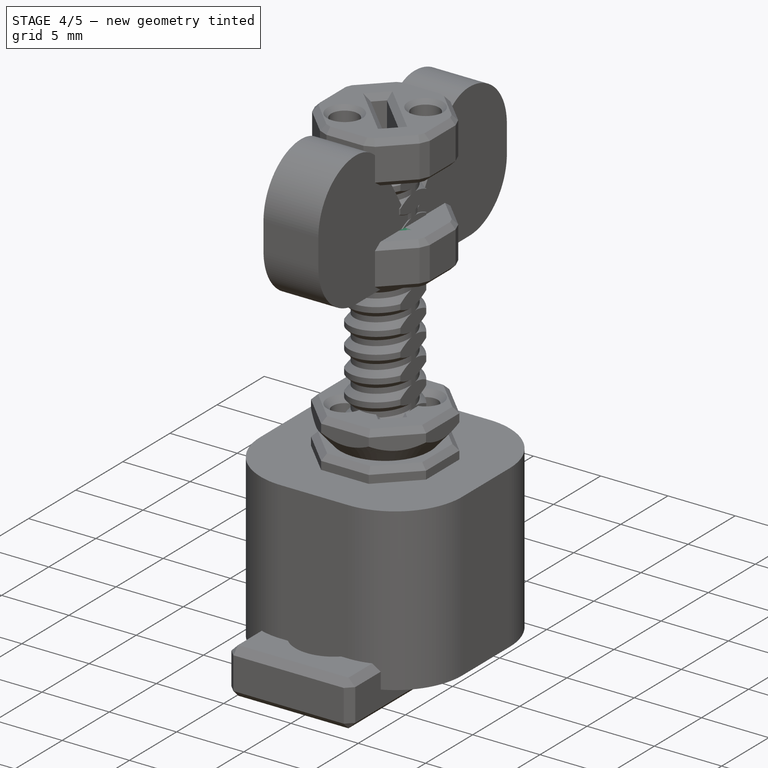
[diagram: stage 4 of 5 — iso view after this stage's code; geometry added in this stage tinted green]
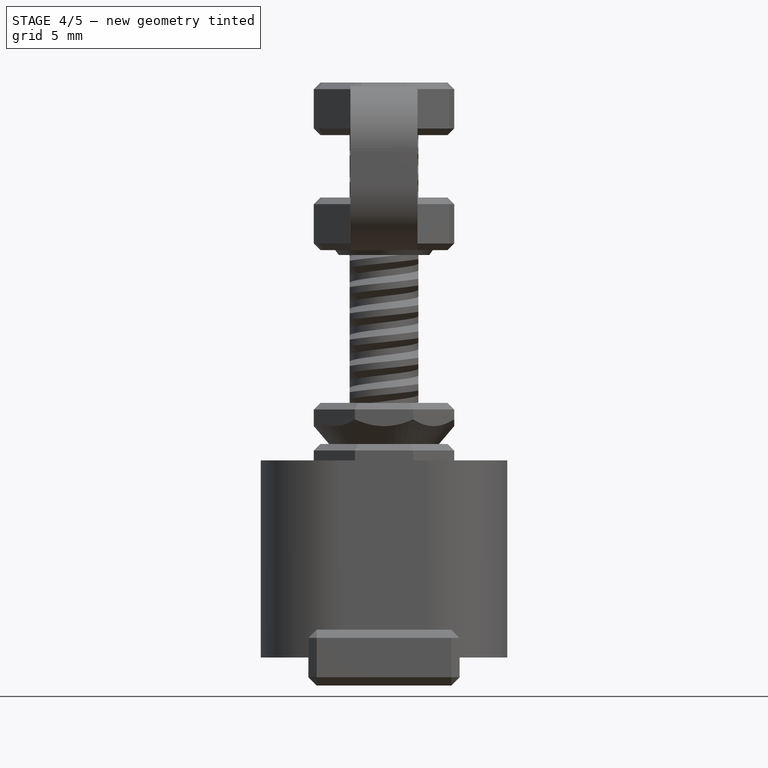
[diagram: stage 4 of 5 — front view after this stage's code; geometry added in this stage tinted green]
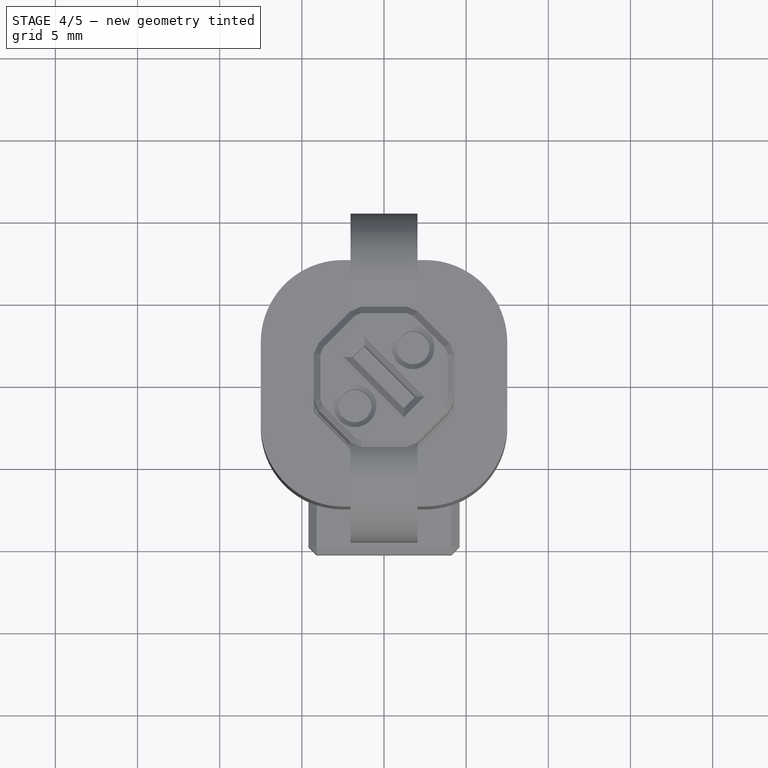
[diagram: stage 4 of 5 — top view after this stage's code; geometry added in this stage tinted green]
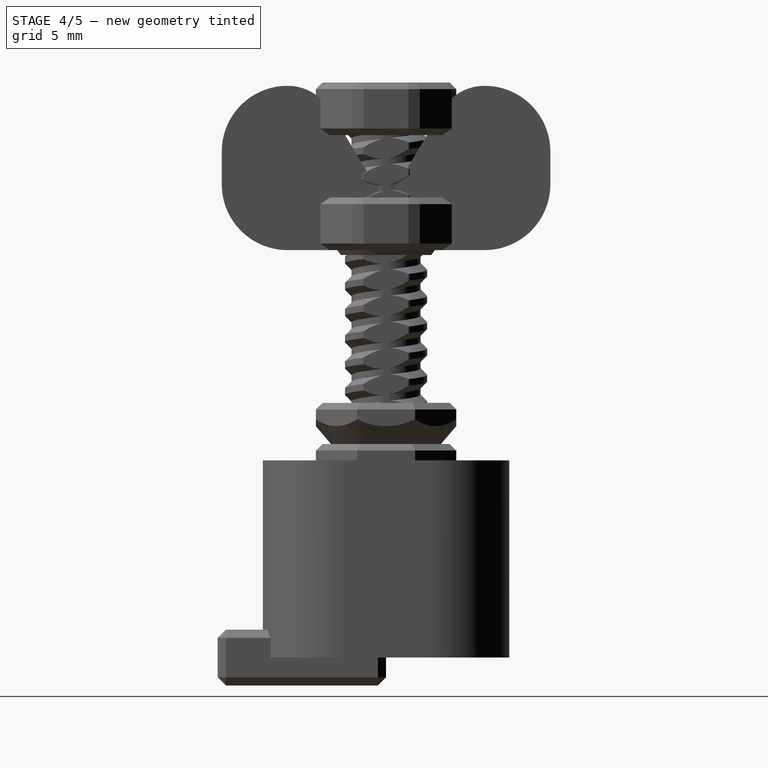
[diagram: stage 4 of 5 — right view after this stage's code; geometry added in this stage tinted green]
FEATURE [Sketcher::SketchObject] Sketch010
  ArcFitTolerance = 1e-06
  AttachmentSupport = -> [XZ_Plane002]
  FullyConstrained = true
  MakeInternals = false
  MapMode = 5
  Placement = pos=(0,0,0) rot=(1,0,0;1.5708rad)
  sketch-geometry (10):
    g0: LineSegment [constr] StartX=0 StartY=0 StartZ=0 EndX=-2.5 EndY=0 EndZ=0
    g1: LineSegment [constr] StartX=-2.5 StartY=0 StartZ=0 EndX=-2.5 EndY=-0.4 EndZ=0
    g2: LineSegment StartX=-2.5 StartY=-0.4 StartZ=0 EndX=-2.1 EndY=-0.8 EndZ=0
    g3: LineSegment StartX=-2.1 StartY=-0.8 StartZ=0 EndX=-2.1 EndY=-1.2 EndZ=0
    g4: LineSegment StartX=-2.1 StartY=-1.2 StartZ=0 EndX=-2.5 EndY=-1.6 EndZ=0
    g5: LineSegment [constr] StartX=-2.5 StartY=-1.6 StartZ=0 EndX=0 EndY=-1.6 EndZ=0
    g6: LineSegment [constr] StartX=0 StartY=-1.6 StartZ=0 EndX=0 EndY=0 EndZ=0
    g7: LineSegment StartX=-2.5 StartY=-0.4 StartZ=0 EndX=-2.5 EndY=-1.6 EndZ=0
    g8: LineSegment [constr] StartX=-2.5 StartY=-0.4 StartZ=0 EndX=-2.1 EndY=-0.4 EndZ=0
    g9: LineSegment [constr] StartX=-2.1 StartY=-0.4 StartZ=0 EndX=-2.1 EndY=-0.8 EndZ=0
  constraints (27):
    c: Coincident(g-1,g0)
    c: PointOnObject(g0,g-1)
    c: Coincident(g0,g1)
    c: Vertical(g1)
    c: Coincident(g1,g2)
    c: Coincident(g2,g3)
    c: Vertical(g3)
    c: Coincident(g3,g4)
    c: Coincident(g4,g5)
    c: Horizontal(g5)
    c: Coincident(g5,g6)
    c: Coincident(g6,g0)
    c: Vertical(g6)
    c: DistanceX(g0,g0) = 2.5
    c: Equal(g0,g5)
    c: Coincident(g7,g1)
    c: Coincident(g7,g4)
    c: DistanceY(g1,g1) = 0.4
    c: Coincident(g8,g1)
    c: Horizontal(g8)
    c: Coincident(g9,g8)
    c: Coincident(g9,g2)
    c: Vertical(g9)
    c: Equal(g2,g4)
    c: DistanceY(g9,g9) = 0.4
    c: Distance(g8,g8) = 0.4
    c: DistanceY(g3,g3) = 0.4
FEATURE [Sketcher::SketchObject] Sketch011
  ArcFitTolerance = 1e-06
  AttachmentSupport = -> [XY_Plane002]
  ExternalGeometry = -> [Sketch010]
  FullyConstrained = true
  MakeInternals = false
  MapMode = 5
  sketch-geometry (7):
    g0: Circle [constr] CenterX=0 CenterY=0 CenterZ=0 NormalX=0 NormalY=0 NormalZ=1 AngleXU=0 Radius=2.5
    g1: LineSegment StartX=-2.09045 StartY=-1.37113 StartZ=0 EndX=-2.09045 EndY=1.37113 EndZ=0
    g2: LineSegment StartX=2.09045 StartY=-1.37113 StartZ=0 EndX=2.09045 EndY=1.37113 EndZ=0
    g3: ArcOfCircle CenterX=0 CenterY=0 CenterZ=0 NormalX=0 NormalY=0 NormalZ=1 AngleXU=0 Radius=2.5 StartAngle=3.7221 EndAngle=5.70267
    g4: ArcOfCircle CenterX=-1e-16 CenterY=-5e-16 CenterZ=0 NormalX=0 NormalY=0 NormalZ=1 AngleXU=0 Radius=2.5 StartAngle=0.580512 EndAngle=2.56108
    g5: Circle [constr] CenterX=-1e-16 CenterY=-5e-16 CenterZ=0 NormalX=0 NormalY=0 NormalZ=1 AngleXU=0 Radius=2.1
    g6: LineSegment [constr] StartX=-2.09045 StartY=0.2 StartZ=0 EndX=-2.09045 EndY=-0.2 EndZ=0
  constraints (21):
    c: Coincident(g0,g-1)
    c: PointOnObject(g-3,g0)
    c: PointOnObject(g1,g0)
    c: PointOnObject(g1,g0)
    c: PointOnObject(g2,g0)
    c: Coincident(g3,g0)
    c: Coincident(g3,g2)
    c: Coincident(g3,g1)
    c: Equal(g1,g2)
    c: Coincident(g2,g4)
    c: Coincident(g1,g4)
    c: Vertical(g1)
    c: Vertical(g2)
    c: Equal(g0,g4)
    c: Coincident(g5,g4)
    c: PointOnObject(g-4,g5)
    c: PointOnObject(g6,g5)
    c: PointOnObject(g6,g5)
    c: Vertical(g6)
    c: Distance(g6) = 0.4
    c: PointOnObject(g6,g1)
FEATURE [PartDesign::Pad] Pad003
  Direction = (0,0,1)
  Length = 24.5
  Length2 = 10
  Profile = -> Sketch011
  ReferenceAxis = -> Sketch011 [N_Axis]
  Refine = true
  Suppressed = false
  Type = 0
FEATURE [PartDesign::Chamfer] Chamfer001
  Angle = 45
  Base = -> Pad003 [Edge3,Edge9]
  BaseFeature = -> Pad003
  ChamferType = 0
  FlipDirection = false
  Refine = true
  Size = 0.2
  Size2 = 1
  SupportTransform = false
  Suppressed = false
  UseAllEdges = false
FEATURE [Sketcher::SketchObject] Sketch013
  ArcFitTolerance = 1e-06
  AttachmentSupport = -> [XZ_Plane002]
  ExternalGeometry = -> [Pad003]
  FullyConstrained = true
  MakeInternals = false
  MapMode = 5
  Placement = pos=(0,0,0) rot=(1,0,0;1.5708rad)
  sketch-geometry (7):
    g0: LineSegment StartX=0 StartY=28 StartZ=0 EndX=4.625 EndY=28 EndZ=0
    g1: LineSegment StartX=4.625 StartY=28 StartZ=0 EndX=4.625 EndY=27 EndZ=0
    g2: LineSegment StartX=4.625 StartY=27 StartZ=0 EndX=2.75 EndY=24.5 EndZ=0
    g3: LineSegment StartX=2.75 StartY=24.5 StartZ=0 EndX=0 EndY=24.5 EndZ=0
    g4: LineSegment StartX=0 StartY=24.5 StartZ=0 EndX=0 EndY=28 EndZ=0
    g5: LineSegment [constr] StartX=4.625 StartY=27 StartZ=0 EndX=2.75 EndY=27 EndZ=0
    g6: LineSegment [constr] StartX=2.75 StartY=27 StartZ=0 EndX=2.75 EndY=24.5 EndZ=0
  constraints (20):
    c: PointOnObject(g0,g-2)
    c: Horizontal(g0)
    c: Coincident(g1,g0)
    c: Vertical(g1)
    c: Coincident(g2,g1)
    c: Coincident(g3,g2)
    c: Coincident(g4,g3)
    c: Coincident(g4,g0)
    c: PointOnObject(g3,g-2)
    c: DistanceY(g1,g1) = 1
    c: Distance(g4,g4) = 3.5
    c: Coincident(g5,g1)
    c: Horizontal(g5)
    c: Coincident(g6,g5)
    c: Coincident(g6,g2)
    c: Vertical(g6)
    c: Distance(g0,g0) = 4.625
    c: Distance(g3,g3) = 2.75
    c: Horizontal(g3)
    c: PointOnObject(g3,g-3)
FEATURE [PartDesign::SubtractiveHelix] SubtractiveHelix002
  Angle = 0
  Axis = (0,2e-16,1)
  Base = (0,0,0)
  BaseFeature = -> Chamfer001
  Growth = 0
  HasBeenEdited = true
  Height = 28
  LeftHanded = false
  Mode = 0
  Outside = false
  Pitch = 1.6
  Profile = -> Sketch010
  ReferenceAxis = -> Sketch010 [V_Axis]
  Refine = true
  Suppressed = false
  Tolerance = 0.1
  Turns = 17.5
FEATURE [PartDesign::Revolution] Revolution001
  Angle = 360
  Angle2 = 60
  Axis = (0,2e-16,1)
  Base = (0,0,0)
  BaseFeature = -> SubtractiveHelix002
  Profile = -> Sketch013
  ReferenceAxis = -> Sketch013 [V_Axis]
  Refine = true
  Reversed = true
  Suppressed = false
  Type = 0
FEATURE [Sketcher::SketchObject] Sketch
  ArcFitTolerance = 1e-06
  AttachmentSupport = -> [Revolution001]
  FullyConstrained = true
  MakeInternals = false
  MapMode = 5
  Placement = pos=(0,6.2e-15,28) rot=(0,0,1;0rad)
  sketch-geometry (30):
    g0: Circle [constr] CenterX=0 CenterY=0 CenterZ=0 NormalX=0 NormalY=0 NormalZ=1 AngleXU=0 Radius=2.25
    g1: LineSegment [constr] StartX=-0.5 StartY=-0.5 StartZ=0 EndX=0.5 EndY=-0.5 EndZ=0
    g2: LineSegment [constr] StartX=0.5 StartY=-0.5 StartZ=0 EndX=0.5 EndY=0.5 EndZ=0
    g3: LineSegment [constr] StartX=0.5 StartY=0.5 StartZ=0 EndX=-0.5 EndY=0.5 EndZ=0
    g4: LineSegment [constr] StartX=-0.5 StartY=0.5 StartZ=0 EndX=-0.5 EndY=-0.5 EndZ=0
    g5: GeomPoint [constr] X=0 Y=0 Z=0
    g6: LineSegment StartX=-0.5 StartY=0.782843 StartZ=0 EndX=-0.5 EndY=2.19374 EndZ=0
    g7: LineSegment StartX=-0.5 StartY=2.19374 StartZ=0 EndX=0.5 EndY=2.19374 EndZ=0
    g8: LineSegment StartX=0.5 StartY=2.19374 StartZ=0 EndX=0.5 EndY=0.782843 EndZ=0
    g9: LineSegment StartX=0.782843 StartY=0.5 StartZ=0 EndX=2.19374 EndY=0.5 EndZ=0
    g10: LineSegment StartX=2.19374 StartY=0.5 StartZ=0 EndX=2.19374 EndY=-0.5 EndZ=0
    g11: LineSegment StartX=2.19374 StartY=-0.5 StartZ=0 EndX=0.782843 EndY=-0.5 EndZ=0
    g12: LineSegment StartX=0.5 StartY=-0.782843 StartZ=0 EndX=0.5 EndY=-2.19374 EndZ=0
    g13: LineSegment StartX=0.5 StartY=-2.19374 StartZ=0 EndX=-0.5 EndY=-2.19374 EndZ=0
    g14: LineSegment StartX=-0.5 StartY=-2.19374 StartZ=0 EndX=-0.5 EndY=-0.782843 EndZ=0
    g15: LineSegment StartX=-0.782843 StartY=-0.5 StartZ=0 EndX=-2.19374 EndY=-0.5 EndZ=0
    g16: LineSegment StartX=-2.19374 StartY=-0.5 StartZ=0 EndX=-2.19374 EndY=0.5 EndZ=0
    g17: LineSegment StartX=-2.19374 StartY=0.5 StartZ=0 EndX=-0.782843 EndY=0.5 EndZ=0
    g18: ArcOfCircle [constr] CenterX=-0.782843 CenterY=0.782843 CenterZ=0 NormalX=0 NormalY=0 NormalZ=1 AngleXU=0 Radius=0.282843 StartAngle=4.71239 EndAngle=6.28319
    g19: GeomPoint [constr] X=-0.5 Y=0.5 Z=0
    g20: LineSegment StartX=-0.782843 StartY=0.5 StartZ=0 EndX=-0.5 EndY=0.782843 EndZ=0
    g21: ArcOfCircle [constr] CenterX=0.782843 CenterY=0.782843 CenterZ=0 NormalX=0 NormalY=0 NormalZ=1 AngleXU=0 Radius=0.282843 StartAngle=3.14159 EndAngle=4.71239
    g22: GeomPoint [constr] X=0.5 Y=0.5 Z=0
    g23: LineSegment StartX=0.5 StartY=0.782843 StartZ=0 EndX=0.782843 EndY=0.5 EndZ=0
    g24: ArcOfCircle [constr] CenterX=0.782843 CenterY=-0.782843 CenterZ=0 NormalX=0 NormalY=0 NormalZ=1 AngleXU=0 Radius=0.282843 StartAngle=1.5708 EndAngle=3.14159
    g25: GeomPoint [constr] X=0.5 Y=-0.5 Z=0
    g26: LineSegment StartX=0.782843 StartY=-0.5 StartZ=0 EndX=0.5 EndY=-0.782843 EndZ=0
    g27: ArcOfCircle [constr] CenterX=-0.782843 CenterY=-0.782843 CenterZ=0 NormalX=0 NormalY=0 NormalZ=1 AngleXU=0 Radius=0.282843 StartAngle=0 EndAngle=1.5708
    g28: GeomPoint [constr] X=-0.5 Y=-0.5 Z=0
    g29: LineSegment StartX=-0.5 StartY=-0.782843 StartZ=0 EndX=-0.782843 EndY=-0.5 EndZ=0
  constraints (70):
    c: Coincident(g0,g-1)
    c: Diameter(g0) = 4.5
    c: Coincident(g1,g2)
    c: Coincident(g2,g3)
    c: Coincident(g3,g4)
    c: Coincident(g4,g1)
    c: Horizontal(g1)
    c: Horizontal(g3)
    c: Vertical(g2)
    c: Vertical(g4)
    c: Symmetric(g3,g1,g5)
    c: Coincident(g5,g0)
    c: Equal(g4,g3)
    c: DistanceX(g3,g3) = 1
    c: Coincident(g3,g19)
    c: PointOnObject(g6,g0)
    c: Vertical(g6)
    c: Coincident(g6,g7)
    c: PointOnObject(g7,g0)
    c: Horizontal(g7)
    c: Coincident(g7,g8)
    c: Coincident(g22,g2)
    c: PointOnObject(g9,g0)
    c: Horizontal(g9)
    c: Coincident(g9,g10)
    c: PointOnObject(g10,g0)
    c: Vertical(g10)
    c: Coincident(g10,g11)
    c: Coincident(g25,g1)
    c: PointOnObject(g12,g0)
    c: Coincident(g12,g13)
    c: PointOnObject(g13,g0)
    c: Horizontal(g13)
    c: Coincident(g13,g14)
    c: Coincident(g28,g1)
    c: PointOnObject(g15,g0)
    c: Coincident(g15,g16)
    c: PointOnObject(g16,g0)
    c: Vertical(g16)
    c: Coincident(g16,g17)
    c: Horizontal(g17)
    c: Vertical(g14)
    c: PointOnObject(g19,g17)
    c: PointOnObject(g19,g6)
    c: Tangent(g17,g18) = -1.5708
    c: Tangent(g6,g18) = -1.5708
    c: Coincident(g20,g17)
    c: Coincident(g20,g6)
    c: PointOnObject(g22,g8)
    c: PointOnObject(g22,g9)
    c: Tangent(g8,g21) = -1.5708
    c: Tangent(g9,g21) = -1.5708
    c: Coincident(g23,g8)
    c: Coincident(g23,g9)
    c: PointOnObject(g25,g11)
    c: PointOnObject(g25,g12)
    c: Tangent(g11,g24) = -1.5708
    c: Tangent(g12,g24) = -1.5708
    c: Coincident(g26,g11)
    c: Coincident(g26,g12)
    c: PointOnObject(g28,g14)
    c: PointOnObject(g28,g15)
    c: Tangent(g14,g27) = -1.5708
    c: Tangent(g15,g27) = -1.5708
    c: Coincident(g29,g14)
    c: Coincident(g29,g15)
    c: Equal(g20,g23)
    c: Equal(g23,g26)
    c: Equal(g26,g29)
    c: Distance(g20,g20) = 0.4
FEATURE [PartDesign::Pocket] Pocket
  BaseFeature = -> Revolution001
  Direction = (0,0,-1)
  Length = 3
  Length2 = 5
  Profile = -> Sketch
  ReferenceAxis = -> Sketch [N_Axis]
  Refine = true
  Suppressed = false
  TaperAngle = -5
  Type = 0
FEATURE [Sketcher::SketchObject] Sketch014
  ArcFitTolerance = 1e-06
  AttachmentSupport = -> [Revolution001]
  ExternalGeometry = -> [Revolution001]
  FullyConstrained = true
  MakeInternals = false
  MapMode = 5
  Placement = pos=(0,6.2e-15,28) rot=(0,0,1;0rad)
  sketch-geometry (10):
    g0: LineSegment StartX=-1.76991 StartY=4.27294 StartZ=0 EndX=-4.27294 EndY=1.76991 EndZ=0
    g1: LineSegment StartX=-4.27294 StartY=1.76991 StartZ=0 EndX=-4.27294 EndY=-1.76991 EndZ=0
    g2: LineSegment StartX=-4.27294 StartY=-1.76991 StartZ=0 EndX=-1.76991 EndY=-4.27294 EndZ=0
    g3: LineSegment StartX=-1.76991 StartY=-4.27294 StartZ=0 EndX=1.76991 EndY=-4.27294 EndZ=0
    g4: LineSegment StartX=1.76991 StartY=-4.27294 StartZ=0 EndX=4.27294 EndY=-1.76991 EndZ=0
    g5: LineSegment StartX=4.27294 StartY=-1.76991 StartZ=0 EndX=4.27294 EndY=1.76991 EndZ=0
    g6: LineSegment StartX=4.27294 StartY=1.76991 StartZ=0 EndX=1.76991 EndY=4.27294 EndZ=0
    g7: LineSegment StartX=1.76991 StartY=4.27294 StartZ=0 EndX=-1.76991 EndY=4.27294 EndZ=0
    g8: Circle [constr] CenterX=0 CenterY=0 CenterZ=0 NormalX=0 NormalY=0 NormalZ=1 AngleXU=0 Radius=4.625
    g9: Circle CenterX=0 CenterY=0 CenterZ=0 NormalX=0 NormalY=0 NormalZ=1 AngleXU=0 Radius=6
  constraints (22):
    c: Coincident(g0,g1)
    c: Coincident(g1,g2)
    c: Coincident(g2,g3)
    c: Coincident(g3,g4)
    c: Coincident(g4,g5)
    c: Coincident(g5,g6)
    c: Coincident(g6,g7)
    c: Coincident(g7,g0)
    c: Equal(g0, g1-g7) x7
    c: PointOnObject(g0,g8)
    c: PointOnObject(g1,g8)
    c: PointOnObject(g2,g8)
    c: PointOnObject(g3,g8)
    c: PointOnObject(g4,g8)
    c: PointOnObject(g5,g8)
    c: PointOnObject(g6,g8)
    c: PointOnObject(g7,g8)
    c: Coincident(g8,g-1)
    c: PointOnObject(g0,g-3)
    c: Vertical(g1)
    c: Diameter(g9) = 12
    c: Coincident(g9,g8)
FEATURE [PartDesign::Pocket] Pocket002
  BaseFeature = -> Pocket
  Direction = (0,0,-1)
  Length = 5
  Length2 = 5
  Profile = -> Sketch014
  ReferenceAxis = -> Sketch014 [N_Axis]
  Refine = true
  Suppressed = false
  Type = 0
FEATURE [PartDesign::Chamfer] Chamfer
  Angle = 45
  Base = -> Pocket002 [Face1,Edge29,Edge27,Edge31,Edge33,Edge35,Edge37,Edge39,Edge25]
  BaseFeature = -> Pocket002
  ChamferType = 0
  FlipDirection = false
  Refine = true
  Size = 0.4
  Size2 = 1
  SupportTransform = false
  Suppressed = false
  UseAllEdges = false
FEATURE [Sketcher::SketchObject] Sketch016
  ArcFitTolerance = 1e-06
  AttachmentSupport = -> [XZ_Plane003]
  FullyConstrained = true
  MakeInternals = false
  MapMode = 5
  Placement = pos=(0,0,0) rot=(1,0,0;1.5708rad)
  sketch-geometry (10):
    g0: LineSegment [constr] StartX=0 StartY=0 StartZ=0 EndX=-2.5 EndY=0 EndZ=0
    g1: LineSegment [constr] StartX=-2.5 StartY=0 StartZ=0 EndX=-2.5 EndY=-0.4 EndZ=0
    g2: LineSegment StartX=-2.5 StartY=-0.4 StartZ=0 EndX=-2.1 EndY=-0.8 EndZ=0
    g3: LineSegment StartX=-2.1 StartY=-0.8 StartZ=0 EndX=-2.1 EndY=-1.2 EndZ=0
    g4: LineSegment StartX=-2.1 StartY=-1.2 StartZ=0 EndX=-2.5 EndY=-1.6 EndZ=0
    g5: LineSegment [constr] StartX=-2.5 StartY=-1.6 StartZ=0 EndX=0 EndY=-1.6 EndZ=0
    g6: LineSegment [constr] StartX=0 StartY=-1.6 StartZ=0 EndX=0 EndY=0 EndZ=0
    g7: LineSegment StartX=-2.5 StartY=-0.4 StartZ=0 EndX=-2.5 EndY=-1.6 EndZ=0
    g8: LineSegment [constr] StartX=-2.5 StartY=-0.4 StartZ=0 EndX=-2.1 EndY=-0.4 EndZ=0
    g9: LineSegment [constr] StartX=-2.1 StartY=-0.4 StartZ=0 EndX=-2.1 EndY=-0.8 EndZ=0
  constraints (27):
    c: Coincident(g-1,g0)
    c: PointOnObject(g0,g-1)
    c: Coincident(g0,g1)
    c: Vertical(g1)
    c: Coincident(g1,g2)
    c: Coincident(g2,g3)
    c: Vertical(g3)
    c: Coincident(g3,g4)
    c: Coincident(g4,g5)
    c: Horizontal(g5)
    c: Coincident(g5,g6)
    c: Coincident(g6,g0)
    c: Vertical(g6)
    c: DistanceX(g0,g0) = 2.5
    c: Equal(g0,g5)
    c: Coincident(g7,g1)
    c: Coincident(g7,g4)
    c: DistanceY(g1,g1) = 0.4
    c: Coincident(g8,g1)
    c: Horizontal(g8)
    c: Coincident(g9,g8)
    c: Coincident(g9,g2)
    c: Vertical(g9)
    c: Equal(g2,g4)
    c: DistanceY(g9,g9) = 0.4
    c: Distance(g8,g8) = 0.4
    c: DistanceY(g3,g3) = 0.4
FEATURE [Sketcher::SketchObject] Sketch017
  ArcFitTolerance = 1e-06
  AttachmentSupport = -> [XY_Plane003]
  ExternalGeometry = -> [Sketch016]
  FullyConstrained = true
  MakeInternals = false
  MapMode = 5
  sketch-geometry (7):
    g0: Circle [constr] CenterX=0 CenterY=0 CenterZ=0 NormalX=0 NormalY=0 NormalZ=1 AngleXU=0 Radius=2.5
    g1: LineSegment StartX=-2.09045 StartY=-1.37113 StartZ=0 EndX=-2.09045 EndY=1.37113 EndZ=0
    g2: LineSegment StartX=2.09045 StartY=-1.37113 StartZ=0 EndX=2.09045 EndY=1.37113 EndZ=0
    g3: ArcOfCircle CenterX=0 CenterY=0 CenterZ=0 NormalX=0 NormalY=0 NormalZ=1 AngleXU=0 Radius=2.5 StartAngle=3.7221 EndAngle=5.70267
    g4: ArcOfCircle CenterX=2e-16 CenterY=-4e-16 CenterZ=0 NormalX=0 NormalY=0 NormalZ=1 AngleXU=0 Radius=2.5 StartAngle=0.580512 EndAngle=2.56108
    g5: LineSegment [constr] StartX=-2.09045 StartY=0.2 StartZ=0 EndX=-2.09045 EndY=-0.2 EndZ=0
    g6: Circle [constr] CenterX=2e-16 CenterY=-4e-16 CenterZ=0 NormalX=0 NormalY=0 NormalZ=1 AngleXU=0 Radius=2.1
  constraints (21):
    c: Coincident(g0,g-1)
    c: PointOnObject(g-3,g0)
    c: PointOnObject(g1,g0)
    c: PointOnObject(g1,g0)
    c: PointOnObject(g2,g0)
    c: Coincident(g3,g0)
    c: Coincident(g3,g2)
    c: Coincident(g3,g1)
    c: Equal(g1,g2)
    c: Coincident(g2,g4)
    c: Coincident(g1,g4)
    c: Vertical(g1)
    c: Vertical(g2)
    c: Equal(g0,g4)
    c: Vertical(g5)
    c: Distance(g5) = 0.4
    c: Coincident(g6,g4)
    c: PointOnObject(g5,g6)
    c: PointOnObject(g5,g6)
    c: PointOnObject(g5,g1)
    c: PointOnObject(g-4,g6)
FEATURE [PartDesign::Pad] Pad004
  Direction = (0,0,1)
  Length = 9.5
  Length2 = 10
  Profile = -> Sketch017
  ReferenceAxis = -> Sketch017 [N_Axis]
  Refine = true
  Suppressed = false
  Type = 0
FEATURE [PartDesign::Chamfer] Chamfer003
  Angle = 45
  Base = -> Pad004 [Edge3,Edge9]
  BaseFeature = -> Pad004
  ChamferType = 0
  FlipDirection = false
  Refine = true
  Size = 0.2
  Size2 = 1
  SupportTransform = false
  Suppressed = false
  UseAllEdges = false
FEATURE [Sketcher::SketchObject] Sketch018
  ArcFitTolerance = 1e-06
  AttachmentSupport = -> [XZ_Plane003]
  ExternalGeometry = -> [Pad004]
  FullyConstrained = true
  MakeInternals = false
  MapMode = 5
  Placement = pos=(0,0,0) rot=(1,0,0;1.5708rad)
  sketch-geometry (7):
    g0: LineSegment StartX=0 StartY=13 StartZ=0 EndX=4.625 EndY=13 EndZ=0
    g1: LineSegment StartX=4.625 StartY=13 StartZ=0 EndX=4.625 EndY=12 EndZ=0
    g2: LineSegment StartX=4.625 StartY=12 StartZ=0 EndX=2.5 EndY=9.5 EndZ=0
    g3: LineSegment StartX=2.5 StartY=9.5 StartZ=0 EndX=0 EndY=9.5 EndZ=0
    g4: LineSegment StartX=0 StartY=9.5 StartZ=0 EndX=0 EndY=13 EndZ=0
    g5: LineSegment [constr] StartX=4.625 StartY=12 StartZ=0 EndX=2.5 EndY=12 EndZ=0
    g6: LineSegment [constr] StartX=2.5 StartY=12 StartZ=0 EndX=2.5 EndY=9.5 EndZ=0
  constraints (20):
    c: PointOnObject(g0,g-2)
    c: Horizontal(g0)
    c: Coincident(g1,g0)
    c: Vertical(g1)
    c: Coincident(g2,g1)
    c: Coincident(g3,g2)
    c: Coincident(g4,g3)
    c: Coincident(g4,g0)
    c: PointOnObject(g3,g-2)
    c: DistanceY(g1,g1) = 1
    c: Distance(g4,g4) = 3.5
    c: Coincident(g5,g1)
    c: Horizontal(g5)
    c: Coincident(g6,g5)
    c: Coincident(g6,g2)
    c: Vertical(g6)
    c: Distance(g0,g0) = 4.625
    c: Distance(g3,g3) = 2.5
    c: Horizontal(g3)
    c: PointOnObject(g3,g-3)
FEATURE [PartDesign::SubtractiveHelix] SubtractiveHelix003
  Angle = 0
  Axis = (0,2e-16,1)
  Base = (0,0,0)
  BaseFeature = -> Chamfer003
  Growth = 0
  HasBeenEdited = true
  Height = 28
  LeftHanded = false
  Mode = 0
  Outside = false
  Pitch = 1.6
  Profile = -> Sketch016
  ReferenceAxis = -> Sketch016 [V_Axis]
  Refine = true
  Suppressed = false
  Tolerance = 0.1
  Turns = 17.5
FEATURE [PartDesign::Revolution] Revolution002
  Angle = 360
  Angle2 = 60
  Axis = (0,2e-16,1)
  Base = (0,0,0)
  BaseFeature = -> SubtractiveHelix003
  Profile = -> Sketch018
  ReferenceAxis = -> Sketch018 [V_Axis]
  Refine = true
  Reversed = true
  Suppressed = false
  Type = 0
FEATURE [Sketcher::SketchObject] Sketch015
  ArcFitTolerance = 1e-06
  AttachmentSupport = -> [Revolution002]
  FullyConstrained = true
  MakeInternals = false
  MapMode = 5
  Placement = pos=(0,2.9e-15,13) rot=(0,0,1;0rad)
  sketch-geometry (32):
    g0: Circle [constr] CenterX=0 CenterY=0 CenterZ=0 NormalX=0 NormalY=0 NormalZ=1 AngleXU=0 Radius=2.25
    g1: LineSegment [constr] StartX=-3e-16 StartY=-0.707107 StartZ=0 EndX=0.707107 EndY=-2e-16 EndZ=0
    g2: LineSegment [constr] StartX=0.707107 StartY=-3e-16 StartZ=0 EndX=3e-16 EndY=0.707107 EndZ=0
    g3: LineSegment [constr] StartX=3e-16 StartY=0.707107 StartZ=0 EndX=-0.707107 EndY=4e-16 EndZ=0
    g4: LineSegment [constr] StartX=-0.707107 StartY=4e-16 StartZ=0 EndX=-3e-16 EndY=-0.707107 EndZ=0
    g5: GeomPoint [constr] X=0 Y=0 Z=0
    g6: LineSegment StartX=-0.907107 StartY=0.2 StartZ=0 EndX=-1.90476 EndY=1.19766 EndZ=0
    g7: LineSegment StartX=-1.90476 StartY=1.19766 StartZ=0 EndX=-1.19766 EndY=1.90476 EndZ=0
    g8: LineSegment StartX=-1.19766 StartY=1.90476 StartZ=0 EndX=-0.2 EndY=0.907107 EndZ=0
    g9: LineSegment StartX=0.2 StartY=0.907107 StartZ=0 EndX=1.19766 EndY=1.90476 EndZ=0
    g10: LineSegment StartX=1.19766 StartY=1.90476 StartZ=0 EndX=1.90476 EndY=1.19766 EndZ=0
    g11: LineSegment StartX=1.90476 StartY=1.19766 StartZ=0 EndX=0.907107 EndY=0.2 EndZ=0
    g12: LineSegment StartX=0.907107 StartY=-0.2 StartZ=0 EndX=1.90476 EndY=-1.19766 EndZ=0
    g13: LineSegment StartX=1.90476 StartY=-1.19766 StartZ=0 EndX=1.19766 EndY=-1.90476 EndZ=0
    g14: LineSegment StartX=1.19766 StartY=-1.90476 StartZ=0 EndX=0.2 EndY=-0.907107 EndZ=0
    g15: LineSegment StartX=-0.2 StartY=-0.907107 StartZ=0 EndX=-1.19766 EndY=-1.90476 EndZ=0
    g16: LineSegment StartX=-1.19766 StartY=-1.90476 StartZ=0 EndX=-1.90476 EndY=-1.19766 EndZ=0
    g17: LineSegment StartX=-1.90476 StartY=-1.19766 StartZ=0 EndX=-0.907107 EndY=-0.2 EndZ=0
    g18: ArcOfCircle [constr] CenterX=-1.10711 CenterY=6e-16 CenterZ=0 NormalX=0 NormalY=0 NormalZ=1 AngleXU=0 Radius=0.282843 StartAngle=5.49779 EndAngle=7.06858
    g19: GeomPoint [constr] X=-0.707107 Y=4e-16 Z=0
    g20: LineSegment StartX=-0.907107 StartY=-0.2 StartZ=0 EndX=-0.907107 EndY=0.2 EndZ=0
    g21: ArcOfCircle [constr] CenterX=1.3e-15 CenterY=1.10711 CenterZ=0 NormalX=0 NormalY=0 NormalZ=1 AngleXU=0 Radius=0.282843 StartAngle=3.92699 EndAngle=5.49779
    g22: GeomPoint [constr] X=3e-16 Y=0.707107 Z=0
    g23: LineSegment StartX=-0.2 StartY=0.907107 StartZ=0 EndX=0.2 EndY=0.907107 EndZ=0
    g24: ArcOfCircle [constr] CenterX=1.10711 CenterY=0 CenterZ=0 NormalX=0 NormalY=0 NormalZ=1 AngleXU=0 Radius=0.282843 StartAngle=2.35619 EndAngle=3.92699
    g25: GeomPoint [constr] X=0.707107 Y=-3e-16 Z=0
    g26: LineSegment StartX=0.907107 StartY=0.2 StartZ=0 EndX=0.907107 EndY=-0.2 EndZ=0
    g27: ArcOfCircle [constr] CenterX=1.5e-15 CenterY=-1.10711 CenterZ=0 NormalX=0 NormalY=0 NormalZ=1 AngleXU=0 Radius=0.282843 StartAngle=0.785398 EndAngle=2.35619
    g28: GeomPoint [constr] X=-3e-16 Y=-0.707107 Z=0
    g29: LineSegment StartX=0.2 StartY=-0.907107 StartZ=0 EndX=-0.2 EndY=-0.907107 EndZ=0
    g30: LineSegment [constr] StartX=-0.907107 StartY=5e-16 StartZ=0 EndX=0.907107 EndY=-2e-16 EndZ=0
    g31: LineSegment [constr] StartX=0 StartY=-0.907107 StartZ=0 EndX=0 EndY=0.907107 EndZ=0
  constraints (73):
    c: Coincident(g0,g-1)
    c: Diameter(g0) = 4.5
    c: Coincident(g1,g2)
    c: Coincident(g2,g3)
    c: Coincident(g3,g4)
    c: Coincident(g4,g1)
    c: Symmetric(g3,g1,g5)
    c: Coincident(g5,g0)
    c: Equal(g4,g3)
    c: Coincident(g3,g19)
    c: PointOnObject(g6,g0)
    c: Coincident(g6,g7)
    c: PointOnObject(g7,g0)
    c: Coincident(g7,g8)
    c: Coincident(g22,g2)
    c: PointOnObject(g9,g0)
    c: Coincident(g9,g10)
    c: PointOnObject(g10,g0)
    c: Coincident(g10,g11)
    c: Coincident(g25,g1)
    c: PointOnObject(g12,g0)
    c: Coincident(g12,g13)
    c: PointOnObject(g13,g0)
    c: Coincident(g13,g14)
    c: Coincident(g28,g1)
    c: PointOnObject(g15,g0)
    c: Coincident(g15,g16)
    c: PointOnObject(g16,g0)
    c: Coincident(g16,g17)
    c: PointOnObject(g19,g17)
    c: PointOnObject(g19,g6)
    c: Tangent(g17,g18) = -1.5708
    c: Tangent(g6,g18) = -1.5708
    c: Coincident(g20,g17)
    c: Coincident(g20,g6)
    c: PointOnObject(g22,g8)
    c: PointOnObject(g22,g9)
    c: Tangent(g8,g21) = -1.5708
    c: Tangent(g9,g21) = -1.5708
    c: Coincident(g23,g8)
    c: Coincident(g23,g9)
    c: PointOnObject(g25,g11)
    c: PointOnObject(g25,g12)
    c: Tangent(g11,g24) = -1.5708
    c: Tangent(g12,g24) = -1.5708
    c: Coincident(g26,g11)
    c: Coincident(g26,g12)
    c: PointOnObject(g28,g14)
    c: PointOnObject(g28,g15)
    c: Tangent(g14,g27) = -1.5708
    c: Tangent(g15,g27) = -1.5708
    c: Coincident(g29,g14)
    c: Coincident(g29,g15)
    c: Equal(g20,g23)
    c: Equal(g23,g26)
    c: Equal(g26,g29)
    c: Distance(g20,g20) = 0.4
    c: Perpendicular(g13,g12)
    c: Perpendicular(g16,g15)
    c: Perpendicular(g10,g9)
    c: Symmetric(g20,g20,g30)
    c: Symmetric(g26,g26,g30)
    c: Symmetric(g29,g29,g31)
    c: Symmetric(g23,g23,g31)
    c: Symmetric(g31,g31,g0)
    c: Parallel(g20,g26)
    c: Parallel(g9,g11)
    c: Parallel(g14,g12)
    c: Perpendicular(g1,g4)
    c: Perpendicular(g2,g1)
    c: Perpendicular(g3,g2)
    c: Distance(g3,g3) = 1
    c: Vertical(g31)
FEATURE [PartDesign::Pocket] Pocket003
  BaseFeature = -> Revolution002
  Direction = (0,0,-1)
  Length = 3
  Length2 = 5
  Profile = -> Sketch015
  ReferenceAxis = -> Sketch015 [N_Axis]
  Refine = true
  Suppressed = false
  TaperAngle = -5
  Type = 0
FEATURE [Sketcher::SketchObject] Sketch019
  ArcFitTolerance = 1e-06
  AttachmentSupport = -> [Revolution002]
  ExternalGeometry = -> [Revolution002]
  FullyConstrained = true
  MakeInternals = false
  MapMode = 5
  Placement = pos=(0,2.9e-15,13) rot=(0,0,1;0rad)
  sketch-geometry (10):
    g0: LineSegment StartX=-1.76991 StartY=4.27294 StartZ=0 EndX=-4.27294 EndY=1.76991 EndZ=0
    g1: LineSegment StartX=-4.27294 StartY=1.76991 StartZ=0 EndX=-4.27294 EndY=-1.76991 EndZ=0
    g2: LineSegment StartX=-4.27294 StartY=-1.76991 StartZ=0 EndX=-1.76991 EndY=-4.27294 EndZ=0
    g3: LineSegment StartX=-1.76991 StartY=-4.27294 StartZ=0 EndX=1.76991 EndY=-4.27294 EndZ=0
    g4: LineSegment StartX=1.76991 StartY=-4.27294 StartZ=0 EndX=4.27294 EndY=-1.76991 EndZ=0
    g5: LineSegment StartX=4.27294 StartY=-1.76991 StartZ=0 EndX=4.27294 EndY=1.76991 EndZ=0
    g6: LineSegment StartX=4.27294 StartY=1.76991 StartZ=0 EndX=1.76991 EndY=4.27294 EndZ=0
    g7: LineSegment StartX=1.76991 StartY=4.27294 StartZ=0 EndX=-1.76991 EndY=4.27294 EndZ=0
    g8: Circle [constr] CenterX=0 CenterY=0 CenterZ=0 NormalX=0 NormalY=0 NormalZ=1 AngleXU=0 Radius=4.625
    g9: Circle CenterX=0 CenterY=0 CenterZ=0 NormalX=0 NormalY=0 NormalZ=1 AngleXU=0 Radius=6
  constraints (22):
    c: Coincident(g0,g1)
    c: Coincident(g1,g2)
    c: Coincident(g2,g3)
    c: Coincident(g3,g4)
    c: Coincident(g4,g5)
    c: Coincident(g5,g6)
    c: Coincident(g6,g7)
    c: Coincident(g7,g0)
    c: Equal(g0, g1-g7) x7
    c: PointOnObject(g0,g8)
    c: PointOnObject(g1,g8)
    c: PointOnObject(g2,g8)
    c: PointOnObject(g3,g8)
    c: PointOnObject(g4,g8)
    c: PointOnObject(g5,g8)
    c: PointOnObject(g6,g8)
    c: PointOnObject(g7,g8)
    c: Coincident(g8,g-1)
    c: PointOnObject(g0,g-3)
    c: Vertical(g1)
    c: Diameter(g9) = 12
    c: Coincident(g9,g8)
FEATURE [PartDesign::Pocket] Pocket004
  BaseFeature = -> Pocket003
  Direction = (0,0,-1)
  Length = 5
  Length2 = 5
  Profile = -> Sketch019
  ReferenceAxis = -> Sketch019 [N_Axis]
  Refine = true
  Suppressed = false
  Type = 0
FEATURE [Sketcher::SketchObject] Sketch020
  ArcFitTolerance = 1e-06
  AttachmentSupport = -> [XZ_Plane]
  FullyConstrained = true
  MakeInternals = false
  MapMode = 5
  Placement = pos=(0,0,0) rot=(1,0,0;1.5708rad)
  sketch-geometry (5):
    g0: LineSegment StartX=-4.6 StartY=-1.7 StartZ=0 EndX=4.6 EndY=-1.7 EndZ=0
    g1: LineSegment StartX=4.6 StartY=-1.7 StartZ=0 EndX=4.6 EndY=1.7 EndZ=0
    g2: LineSegment StartX=4.6 StartY=1.7 StartZ=0 EndX=-4.6 EndY=1.7 EndZ=0
    g3: LineSegment StartX=-4.6 StartY=1.7 StartZ=0 EndX=-4.6 EndY=-1.7 EndZ=0
    g4: GeomPoint [constr] X=0 Y=0 Z=0
  constraints (12):
    c: Coincident(g0,g1)
    c: Coincident(g1,g2)
    c: Coincident(g2,g3)
    c: Coincident(g3,g0)
    c: Horizontal(g0)
    c: Horizontal(g2)
    c: Vertical(g1)
    c: Vertical(g3)
    c: Symmetric(g2,g0,g4)
    c: Coincident(g4,g-1)
    c: Distance(g1) = 3.4
    c: Distance(g2) = 9.2
FEATURE [PartDesign::Pad] Pad
  Direction = (0,-1,2e-16)
  Length = 10.25
  Length2 = 10
  Placement = pos=(0,0,0) rot=(1,0,0;1.5708rad)
  Profile = -> Sketch020
  ReferenceAxis = -> Sketch020 [N_Axis]
  Refine = true
  Suppressed = false
  Type = 0
FEATURE [Sketcher::SketchObject] Sketch001
  ArcFitTolerance = 1e-06
  AttachmentSupport = -> [Pad]
  ExternalGeometry = -> [Pad]
  FullyConstrained = true
  MakeInternals = false
  MapMode = 5
  Placement = pos=(0,-7e-16,-1.7) rot=(1,0,0;3.14159rad)
  sketch-geometry (3):
    g0: Circle CenterX=0 CenterY=5.45 CenterZ=0 NormalX=0 NormalY=0 NormalZ=1 AngleXU=0 Radius=0.5
    g1: LineSegment [constr] StartX=0 StartY=0 StartZ=0 EndX=0 EndY=5.45 EndZ=0
    g2: LineSegment [constr] StartX=0 StartY=10.25 StartZ=0 EndX=0 EndY=5.45 EndZ=0
  constraints (7):
    c: PointOnObject(g0,g-2)
    c: Diameter(g0) = 1
    c: Coincident(g1,g-1)
    c: Coincident(g1,g0)
    c: Symmetric(g-4,g-4,g2)
    c: Coincident(g2,g0)
    c: Distance(g1) = 5.45
FEATURE [PartDesign::Pocket] Pocket005
  BaseFeature = -> Pad
  Direction = (0,0,1)
  Length = 5
  Length2 = 5
  Placement = pos=(0,0,0) rot=(1,0,0;1.5708rad)
  Profile = -> Sketch001
  ReferenceAxis = -> Sketch001 [N_Axis]
  Refine = true
  Suppressed = false
  Type = 1
FEATURE [PartDesign::Chamfer] Chamfer007
  Angle = 45
  Base = -> Pocket004 [Edge27,Edge25,Edge39,Edge29,Edge31,Edge33,Edge35,Edge37,Face1]
  BaseFeature = -> Pocket004
  ChamferType = 0
  FlipDirection = false
  Refine = true
  Size = 0.4
  Size2 = 1
  SupportTransform = false
  Suppressed = false
  UseAllEdges = false
FEATURE [PartDesign::Body] Body002  label="5-4N-28mm - PH1 Screw"
  AllowCompound = false
  Group = -> [Sketch010,Sketch011,Pad003,Chamfer001,SubtractiveHelix002,Sketch013,Revolution001,Sketch,Pocket,Sketch014,Pocket002,Chamfer,Chamfer009]
  Origin = -> Origin002
  Placement = pos=(0,10,0) rot=(0,0,1;0rad)
  Tip = -> Chamfer009
FEATURE [PartDesign::Chamfer] Chamfer010
  Angle = 45
  Base = -> Chamfer007 [Face67]
  BaseFeature = -> Chamfer007
  ChamferType = 0
  FlipDirection = false
  Refine = true
  Size = 0.2
  Size2 = 1
  SupportTransform = false
  Suppressed = false
  UseAllEdges = false
FEATURE [PartDesign::Body] Body003  label="5-4N-13mm - PH1 Screw"
  AllowCompound = false
  Group = -> [Sketch016,Sketch017,Pad004,Chamfer003,SubtractiveHelix003,Sketch018,Revolution002,Sketch015,Pocket003,Sketch019,Pocket004,Chamfer007,Chamfer010]
  Origin = -> Origin003
  Tip = -> Chamfer010
FEATURE [PartDesign::Plane] DatumPlane
  AttachmentSupport = -> [Pocket005]
  Length = 60
  MapMode = 45
  Placement = pos=(2.4e-15,-5.45,1.1e-15) rot=(0.57735,0.57735,0.57735;2.0944rad)
  ResizeMode = 0
  Width = 60
FEATURE [Sketcher::SketchObject] Sketch002
  ArcFitTolerance = 1e-06
  AttachmentSupport = -> [DatumPlane]
  ExternalGeometry = -> [Pocket005]
  FullyConstrained = true
  MakeInternals = false
  MapMode = 5
  Placement = pos=(2.4e-15,-5.45,1.1e-15) rot=(0.57735,0.57735,0.57735;2.0944rad)
  sketch-geometry (14):
    g0: LineSegment [constr] StartX=-4e-16 StartY=-1.7 StartZ=0 EndX=0 EndY=-3.3 EndZ=0
    g1: LineSegment [constr] StartX=0 StartY=-3.3 StartZ=0 EndX=-2.25 EndY=-3.3 EndZ=0
    g2: LineSegment StartX=-2.25 StartY=-3.3 StartZ=0 EndX=-2.65 EndY=-3.7 EndZ=0
    g3: LineSegment StartX=-2.65 StartY=-3.7 StartZ=0 EndX=-2.65 EndY=-4 EndZ=0
    g4: LineSegment StartX=-2.65 StartY=-4 StartZ=0 EndX=-2.25 EndY=-4.4 EndZ=0
    g5: LineSegment StartX=-2.25 StartY=-4.4 StartZ=0 EndX=-2.25 EndY=-3.3 EndZ=0
    g6: LineSegment [constr] StartX=-2.25 StartY=-4.4 StartZ=0 EndX=-2.25 EndY=-4.9 EndZ=0
    g7: LineSegment [constr] StartX=-2.25 StartY=-4.9 StartZ=0 EndX=0 EndY=-4.9 EndZ=0
    g8: LineSegment [constr] StartX=-2.65 StartY=-3.7 StartZ=0 EndX=0 EndY=-3.7 EndZ=0
    g9: LineSegment [constr] StartX=0 StartY=-4.9 StartZ=0 EndX=0 EndY=-3.3 EndZ=0
    g10: LineSegment [constr] StartX=-2.65 StartY=-4 StartZ=0 EndX=-2.65 EndY=-4.4 EndZ=0
    g11: LineSegment [constr] StartX=-2.65 StartY=-4.4 StartZ=0 EndX=-2.25 EndY=-4.4 EndZ=0
    g12: LineSegment [constr] StartX=-2.25 StartY=-4.4 StartZ=0 EndX=-2.25 EndY=-4 EndZ=0
    g13: LineSegment [constr] StartX=-2.25 StartY=-4 StartZ=0 EndX=-2.65 EndY=-4 EndZ=0
  constraints (38):
    c: Symmetric(g-3,g-3,g0)
    c: PointOnObject(g0,g-2)
    c: Coincident(g1,g0)
    c: Horizontal(g1)
    c: Coincident(g1,g2)
    c: Coincident(g2,g3)
    c: Vertical(g3)
    c: Coincident(g3,g4)
    c: Coincident(g4,g5)
    c: Coincident(g5,g2)
    c: Vertical(g5)
    c: Coincident(g4,g6)
    c: Vertical(g6)
    c: Coincident(g6,g7)
    c: PointOnObject(g7,g-2)
    c: Horizontal(g7)
    c: Coincident(g2,g8)
    c: PointOnObject(g8,g-2)
    c: Horizontal(g8)
    c: Coincident(g7,g9)
    c: Coincident(g9,g0)
    c: Coincident(g10,g11)
    c: Coincident(g11,g12)
    c: Coincident(g12,g13)
    c: Coincident(g13,g10)
    c: Vertical(g10)
    c: Vertical(g12)
    c: Horizontal(g11)
    c: Horizontal(g13)
    c: Coincident(g10,g3)
    c: Coincident(g11,g4)
    c: Equal(g2,g4)
    c: Equal(g10,g11)
    c: Distance(g8) = 2.65
    c: Equal(g0,g9)
    c: Distance(g3,g3) = 0.3
    c: Distance(g6,g6) = 0.5
    c: Distance(g11,g11) = 0.4
FEATURE [Sketcher::SketchObject] Sketch003
  ArcFitTolerance = 1e-06
  AttachmentSupport = -> [Pocket005]
  ExternalGeometry = -> [Pocket005,Sketch002]
  FullyConstrained = true
  MakeInternals = false
  MapMode = 5
  Placement = pos=(0,7e-16,1.7) rot=(0,0,1;3.14159rad)
  sketch-geometry (1):
    g0: Circle CenterX=0 CenterY=5.45 CenterZ=0 NormalX=0 NormalY=0 NormalZ=1 AngleXU=0 Radius=2.25
  constraints (2):
    c: Coincident(g0,g-3)
    c: PointOnObject(g-4,g0)
FEATURE [Sketcher::SketchObject] Sketch021
  ArcFitTolerance = 1e-06
  AttachmentSupport = -> [DatumPlane]
  ExternalGeometry = -> [Pocket005,Sketch002]
  FullyConstrained = true
  MakeInternals = false
  MapMode = 5
  Placement = pos=(2.4e-15,-5.45,1.1e-15) rot=(0.57735,0.57735,0.57735;2.0944rad)
  sketch-geometry (11):
    g0: LineSegment StartX=-4e-16 StartY=1.7 StartZ=0 EndX=-2.85 EndY=1.7 EndZ=0
    g1: LineSegment StartX=-2.85 StartY=1.7 StartZ=0 EndX=-2.65 EndY=1.2 EndZ=0
    g2: LineSegment StartX=-2.65 StartY=1.2 StartZ=0 EndX=-4e-16 EndY=1.2 EndZ=0
    g3: LineSegment StartX=-4e-16 StartY=1.2 StartZ=0 EndX=-4e-16 EndY=1.7 EndZ=0
    g4: LineSegment StartX=-4e-16 StartY=-1.7 StartZ=0 EndX=-2.85 EndY=-1.7 EndZ=0
    g5: LineSegment StartX=-2.85 StartY=-1.7 StartZ=0 EndX=-2.65 EndY=-1.2 EndZ=0
    g6: LineSegment StartX=-2.65 StartY=-1.2 StartZ=0 EndX=-4e-16 EndY=-1.2 EndZ=0
    g7: LineSegment StartX=-4e-16 StartY=-1.2 StartZ=0 EndX=-4e-16 EndY=-1.7 EndZ=0
    g8: LineSegment [constr] StartX=-2.65 StartY=1.2 StartZ=0 EndX=-2.65 EndY=1.7 EndZ=0
    g9: LineSegment [constr] StartX=-2.65 StartY=-1.2 StartZ=0 EndX=-2.65 EndY=-1.7 EndZ=0
    g10: LineSegment [constr] StartX=-2.65 StartY=-1.7 StartZ=0 EndX=-2.65 EndY=-3.7 EndZ=0
  constraints (30):
    c: Symmetric(g-3,g-3,g0)
    c: Horizontal(g0)
    c: Coincident(g1,g0)
    c: Coincident(g2,g1)
    c: Horizontal(g2)
    c: Coincident(g3,g2)
    c: Coincident(g3,g0)
    c: Symmetric(g-4,g-4,g4)
    c: Horizontal(g4)
    c: Coincident(g5,g4)
    c: Coincident(g6,g5)
    c: Horizontal(g6)
    c: Coincident(g7,g6)
    c: Coincident(g7,g4)
    c: Vertical(g7)
    c: Equal(g1,g5)
    c: Equal(g4,g0)
    c: Equal(g2,g6)
    c: Coincident(g8,g1)
    c: PointOnObject(g8,g0)
    c: Vertical(g8)
    c: Coincident(g9,g5)
    c: PointOnObject(g9,g4)
    c: Coincident(g10,g9)
    c: Coincident(g10,g-6)
    c: Vertical(g10)
    c: Distance(g7) = 0.5
    c: Vertical(g3)
    c: DistanceX(g4,g5) = 0.2
    c: Vertical(g9)
FEATURE [PartDesign::Pocket] Pocket006
  BaseFeature = -> Pocket005
  Direction = (0,0,-1)
  Length = 5
  Length2 = 5
  Placement = pos=(0,0,0) rot=(1,0,0;1.5708rad)
  Profile = -> Sketch003
  ReferenceAxis = -> Sketch003 [N_Axis]
  Refine = true
  Suppressed = false
  Type = 1
FEATURE [PartDesign::Groove] Groove001
  Angle = 360
  Angle2 = 60
  Axis = (1e-16,-1e-16,1)
  Base = (2.4e-15,-5.45,1.1e-15)
  BaseFeature = -> Pocket006
  Placement = pos=(0,0,0) rot=(1,0,0;1.5708rad)
  Profile = -> Sketch021
  ReferenceAxis = -> Sketch021 [V_Axis]
  Refine = true
  Reversed = true
  Suppressed = false
  Type = 0
FEATURE [PartDesign::SubtractiveHelix] SubtractiveHelix
  Angle = 0
  Axis = (1e-16,-1e-16,1)
  Base = (2.4e-15,-5.45,1.1e-15)
  BaseFeature = -> Groove001
  Growth = 0
  HasBeenEdited = true
  Height = 30
  LeftHanded = false
  Mode = 0
  Outside = false
  Pitch = 1.6
  Placement = pos=(0,0,0) rot=(1,0,0;1.5708rad)
  Profile = -> Sketch002
  ReferenceAxis = -> Sketch002 [V_Axis]
  Refine = true
  Suppressed = false
  Tolerance = 0.1
  Turns = 18.75
FEATURE [Sketcher::SketchObject] Sketch022
  ArcFitTolerance = 1e-06
  AttachmentSupport = -> [SubtractiveHelix]
  ExternalGeometry = -> [SubtractiveHelix]
  FullyConstrained = true
  MakeInternals = false
  MapMode = 5
  Placement = pos=(0,7e-16,1.7) rot=(0,0,1;3.14159rad)
  sketch-geometry (3):
    g0: LineSegment StartX=0.75 StartY=0 StartZ=0 EndX=0 EndY=1.29904 EndZ=0
    g1: LineSegment StartX=0 StartY=1.29904 StartZ=0 EndX=-0.75 EndY=0 EndZ=0
    g2: LineSegment StartX=-0.75 StartY=0 StartZ=0 EndX=0.75 EndY=0 EndZ=0
  constraints (8):
    c: PointOnObject(g0,g-2)
    c: Coincident(g1,g0)
    c: Symmetric(g0,g1,g-2)
    c: PointOnObject(g1,g-3)
    c: Coincident(g2,g1)
    c: Coincident(g2,g0)
    c: Distance(g2) = 1.5
    c: Equal(g0,g2)
FEATURE [PartDesign::Pocket] Pocket007
  BaseFeature = -> SubtractiveHelix
  Direction = (0,0,-1)
  Length = 5
  Length2 = 5
  Placement = pos=(0,0,0) rot=(1,0,0;1.5708rad)
  Profile = -> Sketch022
  ReferenceAxis = -> Sketch022 [N_Axis]
  Refine = true
  Suppressed = false
  Type = 1
FEATURE [PartDesign::Fillet] Fillet
  Base = -> Pocket007 [Edge15,Edge13,Edge9]
  BaseFeature = -> Pocket007
  Placement = pos=(0,0,0) rot=(1,0,0;1.5708rad)
  Radius = 0.5
  Refine = true
  SupportTransform = false
  Suppressed = false
  UseAllEdges = false
FEATURE [PartDesign::Chamfer] Chamfer011
  Angle = 45
  Base = -> Fillet [Edge30,Edge9,Face8,Face6,Face4]
  BaseFeature = -> Fillet
  ChamferType = 0
  FlipDirection = false
  Placement = pos=(0,0,0) rot=(1,0,0;1.5708rad)
  Refine = true
  Size = 0.5
  Size2 = 1
  SupportTransform = false
  Suppressed = false
  UseAllEdges = false
FEATURE [PartDesign::Chamfer] Chamfer014
  Angle = 45
  Base = -> Chamfer013 [Face1]
  BaseFeature = -> Chamfer013
  ChamferType = 0
  FlipDirection = false
  Refine = true
  Size = 0.2
  Size2 = 1
  SupportTransform = false
  Suppressed = false
  UseAllEdges = false
FEATURE [PartDesign::Body] Body004  label="5-4N-13mm - Slot Screw"
  AllowCompound = false
  Group = -> [Sketch024,Sketch025,Pad005,Chamfer012,SubtractiveHelix004,Sketch026,Revolution003,Sketch023,Pocket008,Sketch027,Pocket009,Chamfer013,Chamfer014]
  Origin = -> Origin007
  Tip = -> Chamfer014
FEATURE [Sketcher::SketchObject] Sketch028
  ArcFitTolerance = 1e-06
  AttachmentSupport = -> [XY_Plane005]
  FullyConstrained = true
  MakeInternals = false
  MapMode = 5
  sketch-geometry (8):
    g0: LineSegment StartX=0 StartY=5.42709 StartZ=0 EndX=-4.7 EndY=2.71355 EndZ=0
    g1: LineSegment StartX=-4.7 StartY=2.71355 StartZ=0 EndX=-4.7 EndY=-2.71355 EndZ=0
    g2: LineSegment StartX=-4.7 StartY=-2.71355 StartZ=0 EndX=-4.974e-13 EndY=-5.42709 EndZ=0
    g3: LineSegment StartX=-4.974e-13 StartY=-5.42709 StartZ=0 EndX=4.7 EndY=-2.71355 EndZ=0
    g4: LineSegment StartX=4.7 StartY=-2.71355 StartZ=0 EndX=4.7 EndY=2.71355 EndZ=0
    g5: LineSegment StartX=4.7 StartY=2.71355 StartZ=0 EndX=0 EndY=5.42709 EndZ=0
    g6: Circle [constr] CenterX=0 CenterY=0 CenterZ=0 NormalX=0 NormalY=0 NormalZ=1 AngleXU=0 Radius=5.42709
    g7: LineSegment [constr] StartX=-4.7 StartY=2.71355 StartZ=0 EndX=4.7 EndY=2.71355 EndZ=0
  constraints (18):
    c: Coincident(g0,g1)
    c: Coincident(g1,g2)
    c: Coincident(g2,g3)
    c: Coincident(g3,g4)
    c: Coincident(g4,g5)
    c: Coincident(g5,g0)
    c: Equal(g0, g1-g5) x5
    c: PointOnObject(g0,g6)
    c: PointOnObject(g1,g6)
    c: PointOnObject(g2,g6)
    c: PointOnObject(g3,g6)
    c: PointOnObject(g4,g6)
    c: PointOnObject(g5,g6)
    c: Coincident(g6,g-1)
    c: PointOnObject(g5,g-2)
    c: Coincident(g7,g0)
    c: Coincident(g7,g4)
    c: DistanceX(g7,g7) = 9.4
FEATURE [PartDesign::Pad] Pad006
  Direction = (0,0,1)
  Length = 3.2
  Length2 = 10
  Profile = -> Sketch028
  ReferenceAxis = -> Sketch028 [N_Axis]
  Refine = true
  Suppressed = false
  Type = 0
FEATURE [Sketcher::SketchObject] Sketch029
  ArcFitTolerance = 1e-06
  AttachmentSupport = -> [XZ_Plane005]
  FullyConstrained = true
  MakeInternals = false
  MapMode = 5
  Placement = pos=(0,0,0) rot=(1,0,0;1.5708rad)
  sketch-geometry (14):
    g0: LineSegment [constr] StartX=0 StartY=0 StartZ=0 EndX=0 EndY=-1.2 EndZ=0
    g1: LineSegment [constr] StartX=0 StartY=-1.2 StartZ=0 EndX=0 EndY=-2.8 EndZ=0
    g2: LineSegment [constr] StartX=0 StartY=-1.2 StartZ=0 EndX=-2.2 EndY=-1.2 EndZ=0
    g3: LineSegment StartX=-2.2 StartY=-1.2 StartZ=0 EndX=-2.6 EndY=-1.6 EndZ=0
    g4: LineSegment StartX=-2.6 StartY=-1.6 StartZ=0 EndX=-2.6 EndY=-1.9 EndZ=0
    g5: LineSegment StartX=-2.6 StartY=-1.9 StartZ=0 EndX=-2.2 EndY=-2.3 EndZ=0
    g6: LineSegment StartX=-2.2 StartY=-2.3 StartZ=0 EndX=-2.2 EndY=-1.2 EndZ=0
    g7: LineSegment [constr] StartX=-2.2 StartY=-2.3 StartZ=0 EndX=-2.2 EndY=-2.8 EndZ=0
    g8: LineSegment [constr] StartX=-2.2 StartY=-2.8 StartZ=0 EndX=0 EndY=-2.8 EndZ=0
    g9: LineSegment [constr] StartX=-2.6 StartY=-1.9 StartZ=0 EndX=0 EndY=-1.9 EndZ=0
    g10: LineSegment [constr] StartX=-2.6 StartY=-1.6 StartZ=0 EndX=-2.2 EndY=-1.6 EndZ=0
    g11: LineSegment [constr] StartX=-2.2 StartY=-1.6 StartZ=0 EndX=-2.2 EndY=-1.2 EndZ=0
    g12: LineSegment [constr] StartX=-2.2 StartY=-1.2 StartZ=0 EndX=-2.6 EndY=-1.2 EndZ=0
    g13: LineSegment [constr] StartX=-2.6 StartY=-1.2 StartZ=0 EndX=-2.6 EndY=-1.6 EndZ=0
  constraints (38):
    c: Coincident(g0,g-1)
    c: Vertical(g0)
    c: Coincident(g1,g0)
    c: Vertical(g1)
    c: Coincident(g2,g0)
    c: Horizontal(g2)
    c: Coincident(g3,g2)
    c: Coincident(g4,g3)
    c: Vertical(g4)
    c: Coincident(g5,g4)
    c: Coincident(g6,g5)
    c: Coincident(g6,g2)
    c: Coincident(g7,g5)
    c: Vertical(g7)
    c: Coincident(g8,g7)
    c: Coincident(g8,g1)
    c: Horizontal(g8)
    c: Vertical(g6)
    c: Coincident(g9,g4)
    c: Horizontal(g9)
    c: Equal(g3,g5)
    c: DistanceX(g9,g9) = 2.6
    c: Coincident(g10,g11)
    c: Coincident(g11,g12)
    c: Coincident(g12,g13)
    c: Coincident(g13,g10)
    c: Horizontal(g10)
    c: Horizontal(g12)
    c: Vertical(g11)
    c: Vertical(g13)
    c: Coincident(g10,g3)
    c: Coincident(g11,g2)
    c: Equal(g12,g13)
    c: Distance(g12,g12) = 0.4
    c: DistanceY(g0,g0) = 1.2
    c: Distance(g4,g4) = 0.3
    c: DistanceY(g7,g7) = 0.5
    c: PointOnObject(g9,g1)
FEATURE [Sketcher::SketchObject] Sketch030
  ArcFitTolerance = 1e-06
  AttachmentSupport = -> [Pad006]
  ExternalGeometry = -> [Sketch029]
  FullyConstrained = true
  MakeInternals = false
  MapMode = 5
  Placement = pos=(0,0,3.2) rot=(0,0,1;0rad)
  sketch-geometry (1):
    g0: Circle CenterX=0 CenterY=0 CenterZ=0 NormalX=0 NormalY=0 NormalZ=1 AngleXU=0 Radius=2.2
  constraints (2):
    c: Coincident(g0,g-1)
    c: PointOnObject(g-3,g0)
FEATURE [PartDesign::Pocket] Pocket010
  BaseFeature = -> Pad006
  Direction = (0,0,-1)
  Length = 5
  Length2 = 5
  Profile = -> Sketch030
  ReferenceAxis = -> Sketch030 [N_Axis]
  Refine = true
  Suppressed = false
  Type = 1
FEATURE [Sketcher::SketchObject] Sketch031
  ArcFitTolerance = 1e-06
  AttachmentSupport = -> [XZ_Plane005]
  ExternalGeometry = -> [Pocket010]
  FullyConstrained = true
  MakeInternals = false
  MapMode = 5
  Placement = pos=(0,0,0) rot=(1,0,0;1.5708rad)
  sketch-geometry (10):
    g0: LineSegment StartX=0 StartY=3.2 StartZ=0 EndX=-2.7 EndY=3.2 EndZ=0
    g1: LineSegment StartX=-2.7 StartY=3.2 StartZ=0 EndX=-2.2 EndY=2.7 EndZ=0
    g2: LineSegment StartX=-2.2 StartY=2.7 StartZ=0 EndX=0 EndY=2.7 EndZ=0
    g3: LineSegment StartX=0 StartY=2.7 StartZ=0 EndX=0 EndY=3.2 EndZ=0
    g4: LineSegment StartX=0 StartY=0 StartZ=0 EndX=-2.7 EndY=0 EndZ=0
    g5: LineSegment StartX=-2.7 StartY=0 StartZ=0 EndX=-2.2 EndY=0.5 EndZ=0
    g6: LineSegment StartX=-2.2 StartY=0.5 StartZ=0 EndX=0 EndY=0.5 EndZ=0
    g7: LineSegment StartX=0 StartY=0.5 StartZ=0 EndX=0 EndY=0 EndZ=0
    g8: LineSegment [constr] StartX=-2.2 StartY=3.2 StartZ=0 EndX=-2.2 EndY=2.7 EndZ=0
    g9: LineSegment [constr] StartX=-2.2 StartY=0.5 StartZ=0 EndX=-2.2 EndY=0 EndZ=0
  constraints (26):
    c: Symmetric(g-3,g-3,g0)
    c: Horizontal(g0)
    c: Coincident(g1,g0)
    c: Coincident(g2,g1)
    c: PointOnObject(g2,g-2)
    c: Horizontal(g2)
    c: Coincident(g3,g2)
    c: Coincident(g3,g0)
    c: Coincident(g-1,g4)
    c: PointOnObject(g4,g-1)
    c: Coincident(g4,g5)
    c: Coincident(g5,g6)
    c: Horizontal(g6)
    c: Coincident(g6,g7)
    c: Coincident(g7,g4)
    c: PointOnObject(g6,g-2)
    c: Coincident(g8,g-3)
    c: Coincident(g8,g1)
    c: Vertical(g8)
    c: Coincident(g9,g5)
    c: Coincident(g9,g-4)
    c: Vertical(g9)
    c: Equal(g8,g9)
    c: Equal(g5,g1)
    c: Distance(g8,g8) = 0.5
    c: Distance(g0,g8) = 0.5
FEATURE [PartDesign::Groove] Groove
  Angle = 360
  Angle2 = 60
  Axis = (0,2e-16,1)
  Base = (0,0,0)
  BaseFeature = -> Pocket010
  Profile = -> Sketch031
  ReferenceAxis = -> Sketch031 [V_Axis]
  Refine = true
  Reversed = true
  Suppressed = false
  Type = 0
FEATURE [PartDesign::SubtractiveHelix] SubtractiveHelix005
  Angle = 0
  Axis = (0,2e-16,1)
  Base = (0,0,0)
  BaseFeature = -> Groove
  Growth = 0
  HasBeenEdited = true
  Height = 20
  LeftHanded = false
  Mode = 0
  Outside = false
  Pitch = 1.6
  Profile = -> Sketch029
  ReferenceAxis = -> Sketch029 [V_Axis]
  Refine = true
  Suppressed = false
  Tolerance = 0.1
  Turns = 12.5
FEATURE [PartDesign::Chamfer] Chamfer015
  Angle = 45
  Base = -> SubtractiveHelix005 [Face6,Face8,Face2,Face1,Face3,Face7]
  BaseFeature = -> SubtractiveHelix005
  ChamferType = 0
  FlipDirection = false
  Refine = true
  Size = 0.5
  Size2 = 1
  SupportTransform = false
  Suppressed = false
  UseAllEdges = false
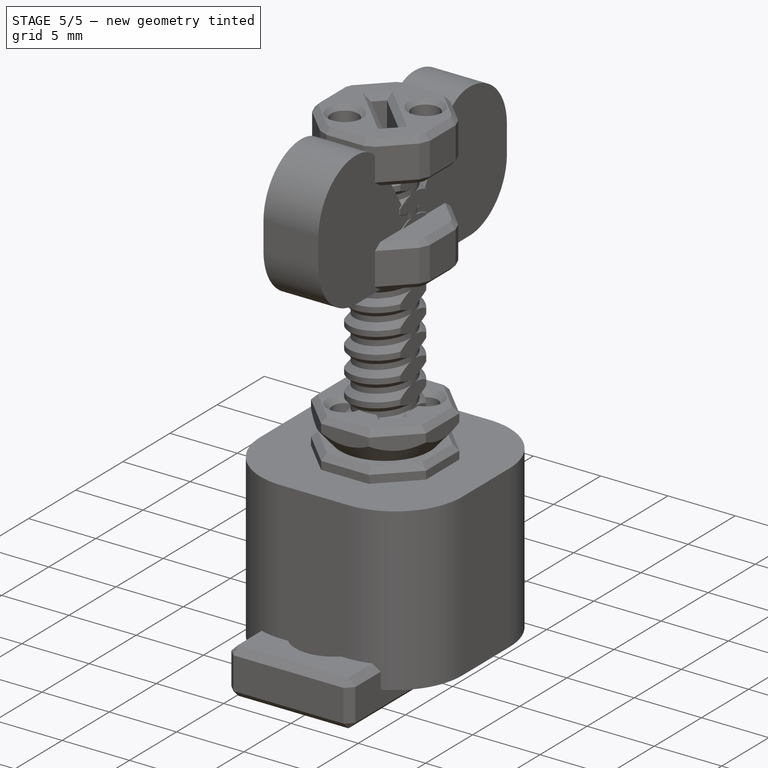
[diagram: stage 5 of 5 — iso view after this stage's code; geometry added in this stage tinted green]
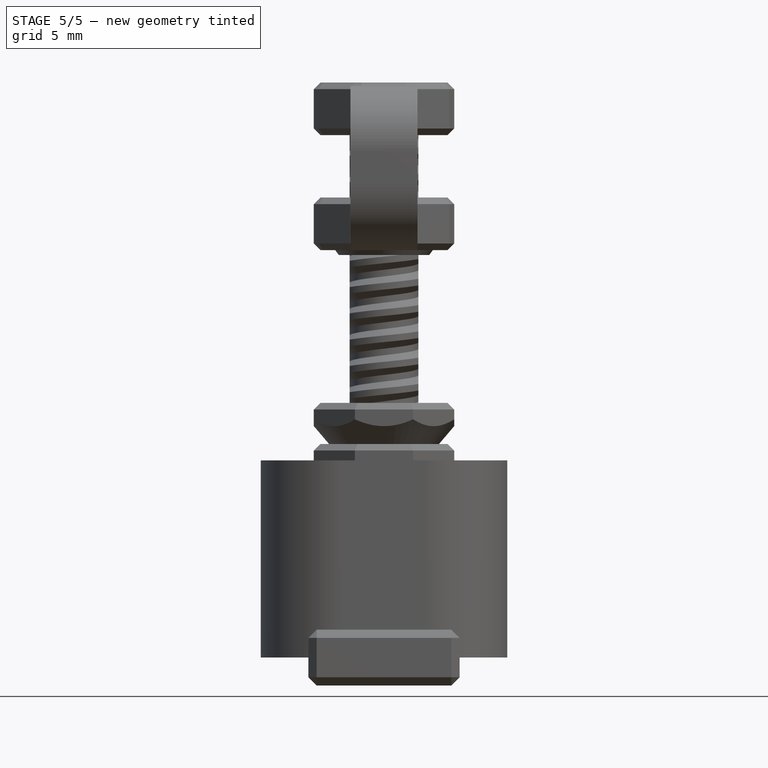
[diagram: stage 5 of 5 — front view after this stage's code; geometry added in this stage tinted green]
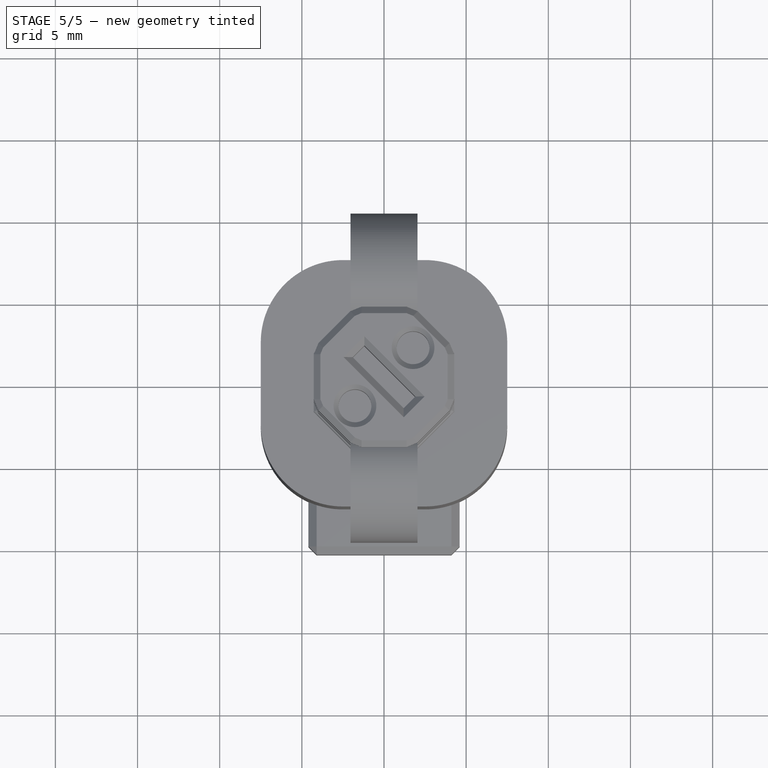
[diagram: stage 5 of 5 — top view after this stage's code; geometry added in this stage tinted green]
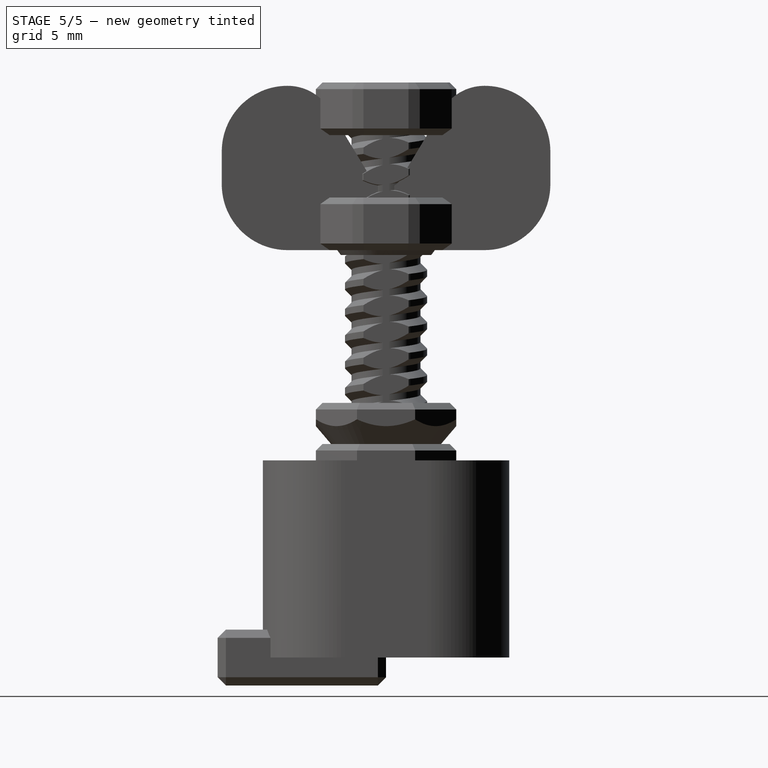
[diagram: stage 5 of 5 — right view after this stage's code; geometry added in this stage tinted green]
FEATURE [PartDesign::Chamfer] Chamfer009
  Angle = 45
  Base = -> Chamfer [Face67]
  BaseFeature = -> Chamfer
  ChamferType = 0
  FlipDirection = false
  Refine = true
  Size = 0.2
  Size2 = 1
  SupportTransform = false
  Suppressed = false
  UseAllEdges = false
FEATURE [PartDesign::Body] Body005  label="5-4N-Hex Nut"
  AllowCompound = false
  Group = -> [Sketch028,Pad006,Sketch029,Sketch030,Pocket010,Sketch031,Groove,SubtractiveHelix005,Chamfer015]
  Origin = -> Origin
  Tip = -> Chamfer015
FEATURE [Sketcher::SketchObject] Sketch041
  ArcFitTolerance = 1e-06
  AttachmentSupport = -> [XZ_Plane009]
  FullyConstrained = true
  MakeInternals = false
  MapMode = 5
  Placement = pos=(0,0,0) rot=(1,0,0;1.5708rad)
  sketch-geometry (10):
    g0: LineSegment [constr] StartX=0 StartY=0 StartZ=0 EndX=-1.5 EndY=0 EndZ=0
    g1: LineSegment [constr] StartX=-1.5 StartY=0 StartZ=0 EndX=-1.5 EndY=-0.4 EndZ=0
    g2: LineSegment StartX=-1.5 StartY=-0.4 StartZ=0 EndX=-1.1 EndY=-0.8 EndZ=0
    g3: LineSegment StartX=-1.1 StartY=-0.8 StartZ=0 EndX=-1.1 EndY=-1.2 EndZ=0
    g4: LineSegment StartX=-1.1 StartY=-1.2 StartZ=0 EndX=-1.5 EndY=-1.6 EndZ=0
    g5: LineSegment [constr] StartX=-1.5 StartY=-1.6 StartZ=0 EndX=0 EndY=-1.6 EndZ=0
    g6: LineSegment [constr] StartX=0 StartY=-1.6 StartZ=0 EndX=0 EndY=0 EndZ=0
    g7: LineSegment StartX=-1.5 StartY=-0.4 StartZ=0 EndX=-1.5 EndY=-1.6 EndZ=0
    g8: LineSegment [constr] StartX=-1.5 StartY=-0.4 StartZ=0 EndX=-1.1 EndY=-0.4 EndZ=0
    g9: LineSegment [constr] StartX=-1.1 StartY=-0.4 StartZ=0 EndX=-1.1 EndY=-0.8 EndZ=0
  constraints (27):
    c: Coincident(g-1,g0)
    c: PointOnObject(g0,g-1)
    c: Coincident(g0,g1)
    c: Vertical(g1)
    c: Coincident(g1,g2)
    c: Coincident(g2,g3)
    c: Vertical(g3)
    c: Coincident(g3,g4)
    c: Coincident(g4,g5)
    c: Horizontal(g5)
    c: Coincident(g5,g6)
    c: Coincident(g6,g0)
    c: Vertical(g6)
    c: DistanceX(g0,g0) = 1.5
    c: Equal(g0,g5)
    c: Coincident(g7,g1)
    c: Coincident(g7,g4)
    c: DistanceY(g1,g1) = 0.4
    c: Coincident(g8,g1)
    c: Horizontal(g8)
    c: Coincident(g9,g8)
    c: Coincident(g9,g2)
    c: Vertical(g9)
    c: Equal(g2,g4)
    c: DistanceY(g9,g9) = 0.4
    c: Distance(g8,g8) = 0.4
    c: DistanceY(g3,g3) = 0.4
FEATURE [Sketcher::SketchObject] Sketch042
  ArcFitTolerance = 1e-06
  AttachmentSupport = -> [XY_Plane009]
  ExternalGeometry = -> [Sketch041]
  FullyConstrained = true
  MakeInternals = false
  MapMode = 5
  sketch-geometry (7):
    g0: Circle [constr] CenterX=0 CenterY=0 CenterZ=0 NormalX=0 NormalY=0 NormalZ=1 AngleXU=0 Radius=1.5
    g1: LineSegment StartX=-1.08167 StartY=-1.03923 StartZ=0 EndX=-1.08167 EndY=1.03923 EndZ=0
    g2: LineSegment StartX=1.08167 StartY=-1.03923 StartZ=0 EndX=1.08167 EndY=1.03923 EndZ=0
    g3: ArcOfCircle CenterX=0 CenterY=0 CenterZ=0 NormalX=0 NormalY=0 NormalZ=1 AngleXU=0 Radius=1.5 StartAngle=3.90699 EndAngle=5.51779
    g4: ArcOfCircle CenterX=-1e-16 CenterY=2e-16 CenterZ=0 NormalX=0 NormalY=0 NormalZ=1 AngleXU=0 Radius=1.5 StartAngle=0.765393 EndAngle=2.3762
    g5: LineSegment [constr] StartX=-1.08167 StartY=0.2 StartZ=0 EndX=-1.08167 EndY=-0.2 EndZ=0
    g6: Circle [constr] CenterX=-1e-16 CenterY=2e-16 CenterZ=0 NormalX=0 NormalY=0 NormalZ=1 AngleXU=0 Radius=1.1
  constraints (21):
    c: Coincident(g0,g-1)
    c: PointOnObject(g-3,g0)
    c: PointOnObject(g1,g0)
    c: PointOnObject(g1,g0)
    c: PointOnObject(g2,g0)
    c: Coincident(g3,g0)
    c: Coincident(g3,g2)
    c: Coincident(g3,g1)
    c: Equal(g1,g2)
    c: Coincident(g2,g4)
    c: Coincident(g1,g4)
    c: Vertical(g1)
    c: Vertical(g2)
    c: Equal(g0,g4)
    c: Vertical(g5)
    c: Distance(g5) = 0.4
    c: Coincident(g6,g4)
    c: PointOnObject(g5,g6)
    c: PointOnObject(g5,g6)
    c: PointOnObject(g5,g1)
    c: PointOnObject(g-4,g6)
FEATURE [PartDesign::Pad] Pad009
  Direction = (0,0,1)
  Length = 10
  Length2 = 10
  Profile = -> Sketch042
  ReferenceAxis = -> Sketch042 [N_Axis]
  Refine = true
  Suppressed = false
  Type = 0
FEATURE [PartDesign::Chamfer] Chamfer018
  Angle = 45
  Base = -> Pad009 [Edge3,Edge9]
  BaseFeature = -> Pad009
  ChamferType = 0
  FlipDirection = false
  Refine = true
  Size = 0.2
  Size2 = 1
  SupportTransform = false
  Suppressed = false
  UseAllEdges = false
FEATURE [PartDesign::SubtractiveHelix] SubtractiveHelix008
  Angle = 0
  Axis = (0,2e-16,1)
  Base = (0,0,0)
  BaseFeature = -> Chamfer018
  Growth = 0
  HasBeenEdited = true
  Height = 28
  LeftHanded = false
  Mode = 0
  Outside = false
  Pitch = 1.6
  Profile = -> Sketch041
  ReferenceAxis = -> Sketch041 [V_Axis]
  Refine = true
  Suppressed = false
  Tolerance = 0.1
  Turns = 17.5
FEATURE [Sketcher::SketchObject] Sketch043
  ArcFitTolerance = 1e-06
  AttachmentSupport = -> [XZ_Plane009]
  ExternalGeometry = -> [Pad009]
  FullyConstrained = true
  MakeInternals = false
  MapMode = 5
  Placement = pos=(0,0,0) rot=(1,0,0;1.5708rad)
  sketch-geometry (4):
    g0: LineSegment StartX=2e-16 StartY=10 StartZ=0 EndX=3 EndY=10 EndZ=0
    g1: LineSegment StartX=3 StartY=10 StartZ=0 EndX=3 EndY=13 EndZ=0
    g2: LineSegment StartX=3 StartY=13 StartZ=0 EndX=4e-16 EndY=13 EndZ=0
    g3: LineSegment StartX=2e-16 StartY=13 StartZ=0 EndX=2e-16 EndY=10 EndZ=0
  constraints (11):
    c: Coincident(g0,g1)
    c: Coincident(g1,g2)
    c: Coincident(g2,g3)
    c: Coincident(g3,g0)
    c: Horizontal(g0)
    c: Horizontal(g2)
    c: Vertical(g1)
    c: Vertical(g3)
    c: Symmetric(g-3,g-3,g0)
    c: DistanceX(g2,g2) = 3
    c: Distance(g3,g3) = 3
FEATURE [PartDesign::Revolution] Revolution005
  Angle = 360
  Angle2 = 60
  Axis = (0,2e-16,1)
  Base = (0,0,0)
  BaseFeature = -> SubtractiveHelix008
  Profile = -> Sketch043
  ReferenceAxis = -> Sketch043 [V_Axis]
  Refine = true
  Reversed = true
  Suppressed = false
  Type = 0
FEATURE [Sketcher::SketchObject] Sketch048
  ArcFitTolerance = 1e-06
  AttachmentSupport = -> [Revolution005]
  FullyConstrained = true
  MakeInternals = false
  MapMode = 5
  Placement = pos=(0,2.9e-15,13) rot=(0,0,1;0rad)
  sketch-geometry (7):
    g0: LineSegment StartX=0.721688 StartY=1.25 StartZ=0 EndX=-0.721688 EndY=1.25 EndZ=0
    g1: LineSegment StartX=-0.721688 StartY=1.25 StartZ=0 EndX=-1.44338 EndY=-2e-16 EndZ=0
    g2: LineSegment StartX=-1.44338 StartY=-2e-16 StartZ=0 EndX=-0.721688 EndY=-1.25 EndZ=0
    g3: LineSegment StartX=-0.721688 StartY=-1.25 StartZ=0 EndX=0.721688 EndY=-1.25 EndZ=0
    g4: LineSegment StartX=0.721688 StartY=-1.25 StartZ=0 EndX=1.44338 EndY=0 EndZ=0
    g5: LineSegment StartX=1.44338 StartY=0 StartZ=0 EndX=0.721688 EndY=1.25 EndZ=0
    g6: Circle [constr] CenterX=0 CenterY=0 CenterZ=0 NormalX=0 NormalY=0 NormalZ=1 AngleXU=0 Radius=1.44338
  constraints (16):
    c: Coincident(g0,g1)
    c: Coincident(g1,g2)
    c: Coincident(g2,g3)
    c: Coincident(g3,g4)
    c: Coincident(g4,g5)
    c: Coincident(g5,g0)
    c: Equal(g0, g1-g5) x5
    c: PointOnObject(g0,g6)
    c: PointOnObject(g1,g6)
    c: PointOnObject(g2,g6)
    c: PointOnObject(g3,g6)
    c: PointOnObject(g4,g6)
    c: Coincident(g6,g-1)
    c: Distance(g0,g4) = 2.5
    c: PointOnObject(g0,g6)
    c: PointOnObject(g4,g-1)
FEATURE [PartDesign::Pocket] Pocket018
  BaseFeature = -> Revolution005
  Direction = (0,0,-1)
  Length = 2
  Length2 = 5
  Profile = -> Sketch048
  ReferenceAxis = -> Sketch048 [N_Axis]
  Refine = true
  Suppressed = false
  Type = 0
FEATURE [Sketcher::SketchObject] Sketch049
  ArcFitTolerance = 1e-06
  AttachmentSupport = -> [Pocket018]
  ExternalGeometry = -> [Pocket018]
  FullyConstrained = true
  MakeInternals = false
  MapMode = 5
  Placement = pos=(0,2.9e-15,13) rot=(0,0,1;0rad)
  sketch-geometry (10):
    g0: LineSegment StartX=-1.14805 StartY=2.77164 StartZ=0 EndX=-2.77164 EndY=1.14805 EndZ=0
    g1: LineSegment StartX=-2.77164 StartY=1.14805 StartZ=0 EndX=-2.77164 EndY=-1.14805 EndZ=0
    g2: LineSegment StartX=-2.77164 StartY=-1.14805 StartZ=0 EndX=-1.14805 EndY=-2.77164 EndZ=0
    g3: LineSegment StartX=-1.14805 StartY=-2.77164 StartZ=0 EndX=1.14805 EndY=-2.77164 EndZ=0
    g4: LineSegment StartX=1.14805 StartY=-2.77164 StartZ=0 EndX=2.77164 EndY=-1.14805 EndZ=0
    g5: LineSegment StartX=2.77164 StartY=-1.14805 StartZ=0 EndX=2.77164 EndY=1.14805 EndZ=0
    g6: LineSegment StartX=2.77164 StartY=1.14805 StartZ=0 EndX=1.14805 EndY=2.77164 EndZ=0
    g7: LineSegment StartX=1.14805 StartY=2.77164 StartZ=0 EndX=-1.14805 EndY=2.77164 EndZ=0
    g8: Circle [constr] CenterX=0 CenterY=0 CenterZ=0 NormalX=0 NormalY=0 NormalZ=1 AngleXU=0 Radius=3
    g9: Circle CenterX=0 CenterY=0 CenterZ=0 NormalX=0 NormalY=0 NormalZ=1 AngleXU=0 Radius=3.5
  constraints (21):
    c: Coincident(g0,g1)
    c: Coincident(g1,g2)
    c: Coincident(g2,g3)
    c: Coincident(g3,g4)
    c: Coincident(g4,g5)
    c: Coincident(g5,g6)
    c: Coincident(g6,g7)
    c: Coincident(g7,g0)
    c: Equal(g0, g1-g7) x7
    c: PointOnObject(g0,g8)
    c: PointOnObject(g1,g8)
    c: PointOnObject(g2,g8)
    c: PointOnObject(g3,g8)
    c: PointOnObject(g4,g8)
    c: PointOnObject(g5,g8)
    c: PointOnObject(g6,g8)
    c: Coincident(g8,g-1)
    c: Symmetric(g0,g6,g-2)
    c: Equal(g-3,g8)
    c: Coincident(g9,g8)
    c: Diameter(g9) = 7
FEATURE [PartDesign::Pocket] Pocket019
  BaseFeature = -> Pocket018
  Direction = (0,0,-1)
  Length = 5
  Length2 = 5
  Profile = -> Sketch049
  ReferenceAxis = -> Sketch049 [N_Axis]
  Refine = true
  Suppressed = false
  Type = 0
FEATURE [PartDesign::Chamfer] Chamfer019
  Angle = 45
  Base = -> Pocket019 [Face16,Face2,Face3,Face9,Face8,Face7,Face6,Face5,Face4]
  BaseFeature = -> Pocket019
  ChamferType = 0
  FlipDirection = false
  Refine = true
  Size = 0.2
  Size2 = 1
  SupportTransform = false
  Suppressed = false
  UseAllEdges = false
FEATURE [PartDesign::Body] Body008  label="3-4N-13mm - Hex"
  AllowCompound = false
  Group = -> [Sketch041,Sketch042,Pad009,Chamfer018,SubtractiveHelix008,Sketch043,Revolution005,Sketch048,Pocket018,Sketch049,Pocket019,Chamfer019]
  Origin = -> Origin011
  Tip = -> Chamfer019
FEATURE [Sketcher::SketchObject] Sketch050
  ArcFitTolerance = 1e-06
  AttachmentSupport = -> [XY_Plane013]
  FullyConstrained = true
  MakeInternals = false
  MapMode = 5
  sketch-geometry (5):
    g0: LineSegment StartX=-2.75 StartY=-2.75 StartZ=0 EndX=2.75 EndY=-2.75 EndZ=0
    g1: LineSegment StartX=2.75 StartY=-2.75 StartZ=0 EndX=2.75 EndY=2.75 EndZ=0
    g2: LineSegment StartX=2.75 StartY=2.75 StartZ=0 EndX=-2.75 EndY=2.75 EndZ=0
    g3: LineSegment StartX=-2.75 StartY=2.75 StartZ=0 EndX=-2.75 EndY=-2.75 EndZ=0
    g4: GeomPoint [constr] X=2e-16 Y=0 Z=0
  constraints (12):
    c: Coincident(g0,g1)
    c: Coincident(g1,g2)
    c: Coincident(g2,g3)
    c: Coincident(g3,g0)
    c: Horizontal(g0)
    c: Horizontal(g2)
    c: Vertical(g1)
    c: Vertical(g3)
    c: Symmetric(g2,g0,g4)
    c: Coincident(g4,g-1)
    c: Equal(g2,g3)
    c: Distance(g3,g3) = 5.5
FEATURE [PartDesign::Pad] Pad010
  Direction = (0,0,1)
  Length = 3
  Length2 = 10
  Profile = -> Sketch050
  ReferenceAxis = -> Sketch050 [N_Axis]
  Refine = true
  Suppressed = false
  Type = 0
FEATURE [Sketcher::SketchObject] Sketch051
  ArcFitTolerance = 1e-06
  AttachmentSupport = -> [XZ_Plane013]
  FullyConstrained = true
  MakeInternals = false
  MapMode = 5
  Placement = pos=(0,0,0) rot=(1,0,0;1.5708rad)
  sketch-geometry (14):
    g0: LineSegment [constr] StartX=0 StartY=0 StartZ=0 EndX=0 EndY=-1.2 EndZ=0
    g1: LineSegment [constr] StartX=0 StartY=-1.2 StartZ=0 EndX=-1.25 EndY=-1.2 EndZ=0
    g2: LineSegment StartX=-1.25 StartY=-1.2 StartZ=0 EndX=-1.65 EndY=-1.6 EndZ=0
    g3: LineSegment StartX=-1.65 StartY=-1.6 StartZ=0 EndX=-1.65 EndY=-1.9 EndZ=0
    g4: LineSegment StartX=-1.65 StartY=-1.9 StartZ=0 EndX=-1.25 EndY=-2.3 EndZ=0
    g5: LineSegment StartX=-1.25 StartY=-2.3 StartZ=0 EndX=-1.25 EndY=-1.2 EndZ=0
    g6: LineSegment [constr] StartX=-1.25 StartY=-2.3 StartZ=0 EndX=-1.25 EndY=-2.8 EndZ=0
    g7: LineSegment [constr] StartX=-1.25 StartY=-2.8 StartZ=0 EndX=0 EndY=-2.8 EndZ=0
    g8: LineSegment [constr] StartX=0 StartY=-2.8 StartZ=0 EndX=0 EndY=-1.2 EndZ=0
    g9: LineSegment [constr] StartX=-1.65 StartY=-1.6 StartZ=0 EndX=0 EndY=-1.6 EndZ=0
    g10: LineSegment [constr] StartX=-1.65 StartY=-1.6 StartZ=0 EndX=-1.25 EndY=-1.6 EndZ=0
    g11: LineSegment [constr] StartX=-1.25 StartY=-1.6 StartZ=0 EndX=-1.25 EndY=-1.2 EndZ=0
    g12: LineSegment [constr] StartX=-1.25 StartY=-1.2 StartZ=0 EndX=-1.65 EndY=-1.2 EndZ=0
    g13: LineSegment [constr] StartX=-1.65 StartY=-1.2 StartZ=0 EndX=-1.65 EndY=-1.6 EndZ=0
  constraints (38):
    c: Coincident(g0,g-1)
    c: PointOnObject(g0,g-2)
    c: Coincident(g1,g0)
    c: Horizontal(g1)
    c: Coincident(g2,g1)
    c: Coincident(g3,g2)
    c: Vertical(g3)
    c: Coincident(g4,g3)
    c: Coincident(g5,g4)
    c: Coincident(g5,g1)
    c: Vertical(g5)
    c: Coincident(g6,g4)
    c: Coincident(g7,g6)
    c: Horizontal(g7)
    c: Coincident(g8,g7)
    c: Coincident(g8,g0)
    c: Vertical(g8)
    c: Coincident(g9,g2)
    c: PointOnObject(g9,g8)
    c: Horizontal(g9)
    c: Distance(g9,g9) = 1.65
    c: Equal(g2,g4)
    c: Vertical(g6)
    c: Distance(g3,g3) = 0.3
    c: Coincident(g10,g11)
    c: Coincident(g11,g12)
    c: Coincident(g12,g13)
    c: Coincident(g13,g10)
    c: Horizontal(g10)
    c: Horizontal(g12)
    c: Vertical(g11)
    c: Vertical(g13)
    c: Coincident(g10,g2)
    c: Coincident(g11,g1)
    c: DistanceY(g0,g0) = 1.2
    c: Equal(g12,g13)
    c: Distance(g13,g13) = 0.4
    c: Distance(g6,g6) = 0.5
FEATURE [Sketcher::SketchObject] Sketch052
  ArcFitTolerance = 1e-06
  AttachmentSupport = -> [Pad010]
  ExternalGeometry = -> [Sketch051]
  FullyConstrained = true
  MakeInternals = false
  MapMode = 5
  Placement = pos=(0,0,3) rot=(0,0,1;0rad)
  sketch-geometry (1):
    g0: Circle CenterX=0 CenterY=0 CenterZ=0 NormalX=0 NormalY=0 NormalZ=1 AngleXU=0 Radius=1.25
  constraints (2):
    c: Coincident(g0,g-1)
    c: PointOnObject(g-3,g0)
FEATURE [PartDesign::Pocket] Pocket020
  BaseFeature = -> Pad010
  Direction = (0,0,-1)
  Length = 5
  Length2 = 5
  Profile = -> Sketch052
  ReferenceAxis = -> Sketch052 [N_Axis]
  Refine = true
  Suppressed = false
  Type = 1
FEATURE [Sketcher::SketchObject] Sketch053
  ArcFitTolerance = 1e-06
  AttachmentSupport = -> [XZ_Plane013]
  ExternalGeometry = -> [Pocket020]
  FullyConstrained = true
  MakeInternals = false
  MapMode = 5
  Placement = pos=(0,0,0) rot=(1,0,0;1.5708rad)
  sketch-geometry (10):
    g0: LineSegment StartX=0 StartY=0 StartZ=0 EndX=-1.45 EndY=0 EndZ=0
    g1: LineSegment StartX=-1.45 StartY=0 StartZ=0 EndX=-1.25 EndY=0.2 EndZ=0
    g2: LineSegment StartX=-1.25 StartY=0.2 StartZ=0 EndX=0 EndY=0.2 EndZ=0
    g3: LineSegment StartX=0 StartY=0.2 StartZ=0 EndX=0 EndY=0 EndZ=0
    g4: LineSegment StartX=0 StartY=3 StartZ=0 EndX=-1.45 EndY=3 EndZ=0
    g5: LineSegment StartX=-1.45 StartY=3 StartZ=0 EndX=-1.25 EndY=2.8 EndZ=0
    g6: LineSegment StartX=-1.25 StartY=2.8 StartZ=0 EndX=0 EndY=2.8 EndZ=0
    g7: LineSegment StartX=0 StartY=2.8 StartZ=0 EndX=0 EndY=3 EndZ=0
    g8: LineSegment [constr] StartX=-1.25 StartY=0.2 StartZ=0 EndX=-1.25 EndY=0 EndZ=0
    g9: LineSegment [constr] StartX=-1.25 StartY=2.8 StartZ=0 EndX=-1.25 EndY=3 EndZ=0
  constraints (26):
    c: Coincident(g-1,g0)
    c: Horizontal(g0)
    c: Coincident(g0,g1)
    c: Coincident(g1,g2)
    c: PointOnObject(g2,g-2)
    c: Horizontal(g2)
    c: Coincident(g2,g3)
    c: Coincident(g3,g0)
    c: Symmetric(g-3,g-3,g4)
    c: Horizontal(g4)
    c: Coincident(g4,g5)
    c: Coincident(g5,g6)
    c: PointOnObject(g6,g-2)
    c: Horizontal(g6)
    c: Coincident(g6,g7)
    c: Coincident(g7,g4)
    c: Coincident(g8,g1)
    c: Coincident(g8,g-4)
    c: Coincident(g9,g5)
    c: Coincident(g9,g-3)
    c: Vertical(g9)
    c: Vertical(g8)
    c: Equal(g0,g4)
    c: DistanceX(g0,g1) = 0.2
    c: Distance(g8,g8) = 0.2
    c: Equal(g9,g8)
FEATURE [PartDesign::Groove] Groove002
  Angle = 360
  Angle2 = 60
  Axis = (0,2e-16,1)
  Base = (0,0,0)
  BaseFeature = -> Pocket020
  Profile = -> Sketch053
  ReferenceAxis = -> Sketch053 [V_Axis]
  Refine = true
  Reversed = true
  Suppressed = false
  Type = 0
FEATURE [PartDesign::SubtractiveHelix] SubtractiveHelix009
  Angle = 0
  Axis = (0,2e-16,1)
  Base = (0,0,0)
  BaseFeature = -> Groove002
  Growth = 0
  HasBeenEdited = true
  Height = 30
  LeftHanded = false
  Mode = 0
  Outside = false
  Pitch = 1.6
  Profile = -> Sketch051
  ReferenceAxis = -> Sketch051 [V_Axis]
  Refine = true
  Suppressed = false
  Tolerance = 0.1
  Turns = 18.75
FEATURE [PartDesign::Chamfer] Chamfer020
  Angle = 45
  Base = -> SubtractiveHelix009 [Face1,Face3,Face6,Face2]
  BaseFeature = -> SubtractiveHelix009
  ChamferType = 0
  FlipDirection = false
  Refine = true
  Size = 0.5
  Size2 = 1
  SupportTransform = false
  Suppressed = false
  UseAllEdges = false
FEATURE [PartDesign::Body] Body009  label="3-4N Square Nut"
  AllowCompound = false
  Group = -> [Sketch050,Pad010,Sketch051,Sketch052,Pocket020,Sketch053,Groove002,SubtractiveHelix009,Chamfer020]
  Origin = -> Origin015
  Tip = -> Chamfer020
FEATURE [Sketcher::SketchObject] Sketch054
  ArcFitTolerance = 1e-06
  AttachmentSupport = -> [XZ_Plane014]
  FullyConstrained = true
  MakeInternals = false
  MapMode = 5
  Placement = pos=(0,0,0) rot=(1,0,0;1.5708rad)
  sketch-geometry (10):
    g0: LineSegment [constr] StartX=0 StartY=0 StartZ=0 EndX=-1.5 EndY=0 EndZ=0
    g1: LineSegment [constr] StartX=-1.5 StartY=0 StartZ=0 EndX=-1.5 EndY=-0.4 EndZ=0
    g2: LineSegment StartX=-1.5 StartY=-0.4 StartZ=0 EndX=-1.1 EndY=-0.8 EndZ=0
    g3: LineSegment StartX=-1.1 StartY=-0.8 StartZ=0 EndX=-1.1 EndY=-1.2 EndZ=0
    g4: LineSegment StartX=-1.1 StartY=-1.2 StartZ=0 EndX=-1.5 EndY=-1.6 EndZ=0
    g5: LineSegment [constr] StartX=-1.5 StartY=-1.6 StartZ=0 EndX=0 EndY=-1.6 EndZ=0
    g6: LineSegment [constr] StartX=0 StartY=-1.6 StartZ=0 EndX=0 EndY=0 EndZ=0
    g7: LineSegment StartX=-1.5 StartY=-0.4 StartZ=0 EndX=-1.5 EndY=-1.6 EndZ=0
    g8: LineSegment [constr] StartX=-1.5 StartY=-0.4 StartZ=0 EndX=-1.1 EndY=-0.4 EndZ=0
    g9: LineSegment [constr] StartX=-1.1 StartY=-0.4 StartZ=0 EndX=-1.1 EndY=-0.8 EndZ=0
  constraints (27):
    c: Coincident(g-1,g0)
    c: PointOnObject(g0,g-1)
    c: Coincident(g0,g1)
    c: Vertical(g1)
    c: Coincident(g1,g2)
    c: Coincident(g2,g3)
    c: Vertical(g3)
    c: Coincident(g3,g4)
    c: Coincident(g4,g5)
    c: Horizontal(g5)
    c: Coincident(g5,g6)
    c: Coincident(g6,g0)
    c: Vertical(g6)
    c: DistanceX(g0,g0) = 1.5
    c: Equal(g0,g5)
    c: Coincident(g7,g1)
    c: Coincident(g7,g4)
    c: DistanceY(g1,g1) = 0.4
    c: Coincident(g8,g1)
    c: Horizontal(g8)
    c: Coincident(g9,g8)
    c: Coincident(g9,g2)
    c: Vertical(g9)
    c: Equal(g2,g4)
    c: DistanceY(g9,g9) = 0.4
    c: Distance(g8,g8) = 0.4
    c: DistanceY(g3,g3) = 0.4
FEATURE [Sketcher::SketchObject] Sketch055
  ArcFitTolerance = 1e-06
  AttachmentSupport = -> [XY_Plane014]
  ExternalGeometry = -> [Sketch054]
  FullyConstrained = true
  MakeInternals = false
  MapMode = 5
  sketch-geometry (7):
    g0: Circle [constr] CenterX=0 CenterY=0 CenterZ=0 NormalX=0 NormalY=0 NormalZ=1 AngleXU=0 Radius=1.5
    g1: LineSegment StartX=-1.08167 StartY=-1.03923 StartZ=0 EndX=-1.08167 EndY=1.03923 EndZ=0
    g2: LineSegment StartX=1.08167 StartY=-1.03923 StartZ=0 EndX=1.08167 EndY=1.03923 EndZ=0
    g3: ArcOfCircle CenterX=0 CenterY=0 CenterZ=0 NormalX=0 NormalY=0 NormalZ=1 AngleXU=0 Radius=1.5 StartAngle=3.90699 EndAngle=5.51779
    g4: ArcOfCircle CenterX=-1e-16 CenterY=2e-16 CenterZ=0 NormalX=0 NormalY=0 NormalZ=1 AngleXU=0 Radius=1.5 StartAngle=0.765393 EndAngle=2.3762
    g5: LineSegment [constr] StartX=-1.08167 StartY=0.2 StartZ=0 EndX=-1.08167 EndY=-0.2 EndZ=0
    g6: Circle [constr] CenterX=-1e-16 CenterY=2e-16 CenterZ=0 NormalX=0 NormalY=0 NormalZ=1 AngleXU=0 Radius=1.1
  constraints (21):
    c: Coincident(g0,g-1)
    c: PointOnObject(g-3,g0)
    c: PointOnObject(g1,g0)
    c: PointOnObject(g1,g0)
    c: PointOnObject(g2,g0)
    c: Coincident(g3,g0)
    c: Coincident(g3,g2)
    c: Coincident(g3,g1)
    c: Equal(g1,g2)
    c: Coincident(g2,g4)
    c: Coincident(g1,g4)
    c: Vertical(g1)
    c: Vertical(g2)
    c: Equal(g0,g4)
    c: Vertical(g5)
    c: Distance(g5) = 0.4
    c: Coincident(g6,g4)
    c: PointOnObject(g5,g6)
    c: PointOnObject(g5,g6)
    c: PointOnObject(g5,g1)
    c: PointOnObject(g-4,g6)
FEATURE [PartDesign::Pad] Pad011
  Direction = (0,0,1)
  Length = 10
  Length2 = 10
  Profile = -> Sketch055
  ReferenceAxis = -> Sketch055 [N_Axis]
  Refine = true
  Suppressed = false
  Type = 0
FEATURE [PartDesign::Chamfer] Chamfer021
  Angle = 45
  Base = -> Pad011 [Edge3,Edge9]
  BaseFeature = -> Pad011
  ChamferType = 0
  FlipDirection = false
  Refine = true
  Size = 0.2
  Size2 = 1
  SupportTransform = false
  Suppressed = false
  UseAllEdges = false
FEATURE [Sketcher::SketchObject] Sketch056
  ArcFitTolerance = 1e-06
  AttachmentSupport = -> [XZ_Plane014]
  ExternalGeometry = -> [Pad011]
  FullyConstrained = true
  MakeInternals = false
  MapMode = 5
  Placement = pos=(0,0,0) rot=(1,0,0;1.5708rad)
  sketch-geometry (4):
    g0: LineSegment StartX=2e-16 StartY=10 StartZ=0 EndX=3 EndY=10 EndZ=0
    g1: LineSegment StartX=3 StartY=10 StartZ=0 EndX=3 EndY=13 EndZ=0
    g2: LineSegment StartX=3 StartY=13 StartZ=0 EndX=4e-16 EndY=13 EndZ=0
    g3: LineSegment StartX=2e-16 StartY=13 StartZ=0 EndX=2e-16 EndY=10 EndZ=0
  constraints (11):
    c: Coincident(g0,g1)
    c: Coincident(g1,g2)
    c: Coincident(g2,g3)
    c: Coincident(g3,g0)
    c: Horizontal(g0)
    c: Horizontal(g2)
    c: Vertical(g1)
    c: Vertical(g3)
    c: Symmetric(g-3,g-3,g0)
    c: DistanceX(g2,g2) = 3
    c: Distance(g3,g3) = 3
FEATURE [PartDesign::SubtractiveHelix] SubtractiveHelix010
  Angle = 0
  Axis = (0,2e-16,1)
  Base = (0,0,0)
  BaseFeature = -> Chamfer021
  Growth = 0
  HasBeenEdited = true
  Height = 28
  LeftHanded = false
  Mode = 0
  Outside = false
  Pitch = 1.6
  Profile = -> Sketch054
  ReferenceAxis = -> Sketch054 [V_Axis]
  Refine = true
  Suppressed = false
  Tolerance = 0.1
  Turns = 17.5
FEATURE [PartDesign::Revolution] Revolution006
  Angle = 360
  Angle2 = 60
  Axis = (0,2e-16,1)
  Base = (0,0,0)
  BaseFeature = -> SubtractiveHelix010
  Profile = -> Sketch056
  ReferenceAxis = -> Sketch056 [V_Axis]
  Refine = true
  Reversed = true
  Suppressed = false
  Type = 0
FEATURE [Sketcher::SketchObject] Sketch057
  ArcFitTolerance = 1e-06
  AttachmentSupport = -> [Revolution006]
  FullyConstrained = true
  MakeInternals = false
  MapMode = 5
  Placement = pos=(0,2.9e-15,13) rot=(0,0,1;0rad)
  sketch-geometry (5):
    g0: Circle [constr] CenterX=0 CenterY=0 CenterZ=0 NormalX=0 NormalY=0 NormalZ=1 AngleXU=0 Radius=2
    g1: LineSegment StartX=-1.72286 StartY=1.01575 StartZ=0 EndX=1.01575 EndY=-1.72286 EndZ=0
    g2: LineSegment StartX=1.01575 StartY=-1.72286 StartZ=0 EndX=1.72286 EndY=-1.01575 EndZ=0
    g3: LineSegment StartX=1.72286 StartY=-1.01575 StartZ=0 EndX=-1.01575 EndY=1.72286 EndZ=0
    g4: LineSegment StartX=-1.01575 StartY=1.72286 StartZ=0 EndX=-1.72286 EndY=1.01575 EndZ=0
  constraints (15):
    c: Coincident(g0,g-1)
    c: PointOnObject(g1,g0)
    c: PointOnObject(g1,g0)
    c: Coincident(g1,g2)
    c: PointOnObject(g2,g0)
    c: Coincident(g2,g3)
    c: PointOnObject(g3,g0)
    c: Coincident(g3,g4)
    c: PointOnObject(g4,g1)
    c: Perpendicular(g3,g4)
    c: Perpendicular(g1,g4)
    c: Perpendicular(g2,g1)
    c: Diameter(g0) = 4
    c: Distance(g2,g2) = 1
    c: Angle(g3,g-1) = 0.785398
FEATURE [PartDesign::Pocket] Pocket021
  BaseFeature = -> Revolution006
  Direction = (0,0,-1)
  Length = 2
  Length2 = 5
  Profile = -> Sketch057
  ReferenceAxis = -> Sketch057 [N_Axis]
  Refine = true
  Suppressed = false
  Type = 0
FEATURE [Sketcher::SketchObject] Sketch058
  ArcFitTolerance = 1e-06
  AttachmentSupport = -> [Pocket021]
  ExternalGeometry = -> [Pocket021]
  FullyConstrained = true
  MakeInternals = false
  MapMode = 5
  Placement = pos=(0,2.9e-15,13) rot=(0,0,1;0rad)
  sketch-geometry (10):
    g0: LineSegment StartX=-1.14805 StartY=2.77164 StartZ=0 EndX=-2.77164 EndY=1.14805 EndZ=0
    g1: LineSegment StartX=-2.77164 StartY=1.14805 StartZ=0 EndX=-2.77164 EndY=-1.14805 EndZ=0
    g2: LineSegment StartX=-2.77164 StartY=-1.14805 StartZ=0 EndX=-1.14805 EndY=-2.77164 EndZ=0
    g3: LineSegment StartX=-1.14805 StartY=-2.77164 StartZ=0 EndX=1.14805 EndY=-2.77164 EndZ=0
    g4: LineSegment StartX=1.14805 StartY=-2.77164 StartZ=0 EndX=2.77164 EndY=-1.14805 EndZ=0
    g5: LineSegment StartX=2.77164 StartY=-1.14805 StartZ=0 EndX=2.77164 EndY=1.14805 EndZ=0
    g6: LineSegment StartX=2.77164 StartY=1.14805 StartZ=0 EndX=1.14805 EndY=2.77164 EndZ=0
    g7: LineSegment StartX=1.14805 StartY=2.77164 StartZ=0 EndX=-1.14805 EndY=2.77164 EndZ=0
    g8: Circle [constr] CenterX=0 CenterY=0 CenterZ=0 NormalX=0 NormalY=0 NormalZ=1 AngleXU=0 Radius=3
    g9: Circle CenterX=0 CenterY=0 CenterZ=0 NormalX=0 NormalY=0 NormalZ=1 AngleXU=0 Radius=3.5
  constraints (21):
    c: Coincident(g0,g1)
    c: Coincident(g1,g2)
    c: Coincident(g2,g3)
    c: Coincident(g3,g4)
    c: Coincident(g4,g5)
    c: Coincident(g5,g6)
    c: Coincident(g6,g7)
    c: Coincident(g7,g0)
    c: Equal(g0, g1-g7) x7
    c: PointOnObject(g0,g8)
    c: PointOnObject(g1,g8)
    c: PointOnObject(g2,g8)
    c: PointOnObject(g3,g8)
    c: PointOnObject(g4,g8)
    c: PointOnObject(g5,g8)
    c: PointOnObject(g6,g8)
    c: Coincident(g8,g-1)
    c: Symmetric(g0,g6,g-2)
    c: Equal(g-3,g8)
    c: Coincident(g9,g8)
    c: Diameter(g9) = 7
FEATURE [PartDesign::Pocket] Pocket022
  BaseFeature = -> Pocket021
  Direction = (0,0,-1)
  Length = 5
  Length2 = 5
  Profile = -> Sketch058
  ReferenceAxis = -> Sketch058 [N_Axis]
  Refine = true
  Suppressed = false
  Type = 0
FEATURE [PartDesign::Chamfer] Chamfer022
  Angle = 45
  Base = -> Pocket022 [Face16,Face2,Face3,Face9,Face8,Face7,Face6,Face5,Face4]
  BaseFeature = -> Pocket022
  ChamferType = 0
  FlipDirection = false
  Refine = true
  Size = 0.2
  Size2 = 1
  SupportTransform = false
  Suppressed = false
  UseAllEdges = false
FEATURE [Sketcher::SketchObject] Sketch079
  ArcFitTolerance = 1e-06
  AttachmentSupport = -> [XZ_Plane020]
  FullyConstrained = true
  MakeInternals = false
  MapMode = 5
  Placement = pos=(0,0,0) rot=(1,0,0;1.5708rad)
  sketch-geometry (10):
    g0: LineSegment [constr] StartX=0 StartY=0 StartZ=0 EndX=-2.5 EndY=0 EndZ=0
    g1: LineSegment [constr] StartX=-2.5 StartY=0 StartZ=0 EndX=-2.5 EndY=-0.4 EndZ=0
    g2: LineSegment StartX=-2.5 StartY=-0.4 StartZ=0 EndX=-2.1 EndY=-0.8 EndZ=0
    g3: LineSegment StartX=-2.1 StartY=-0.8 StartZ=0 EndX=-2.1 EndY=-1.2 EndZ=0
    g4: LineSegment StartX=-2.1 StartY=-1.2 StartZ=0 EndX=-2.5 EndY=-1.6 EndZ=0
    g5: LineSegment [constr] StartX=-2.5 StartY=-1.6 StartZ=0 EndX=0 EndY=-1.6 EndZ=0
    g6: LineSegment [constr] StartX=0 StartY=-1.6 StartZ=0 EndX=0 EndY=0 EndZ=0
    g7: LineSegment StartX=-2.5 StartY=-0.4 StartZ=0 EndX=-2.5 EndY=-1.6 EndZ=0
    g8: LineSegment [constr] StartX=-2.5 StartY=-0.4 StartZ=0 EndX=-2.1 EndY=-0.4 EndZ=0
    g9: LineSegment [constr] StartX=-2.1 StartY=-0.4 StartZ=0 EndX=-2.1 EndY=-0.8 EndZ=0
  constraints (27):
    c: Coincident(g-1,g0)
    c: PointOnObject(g0,g-1)
    c: Coincident(g0,g1)
    c: Vertical(g1)
    c: Coincident(g1,g2)
    c: Coincident(g2,g3)
    c: Vertical(g3)
    c: Coincident(g3,g4)
    c: Coincident(g4,g5)
    c: Horizontal(g5)
    c: Coincident(g5,g6)
    c: Coincident(g6,g0)
    c: Vertical(g6)
    c: DistanceX(g0,g0) = 2.5
    c: Equal(g0,g5)
    c: Coincident(g7,g1)
    c: Coincident(g7,g4)
    c: DistanceY(g1,g1) = 0.4
    c: Coincident(g8,g1)
    c: Horizontal(g8)
    c: Coincident(g9,g8)
    c: Coincident(g9,g2)
    c: Vertical(g9)
    c: Equal(g2,g4)
    c: DistanceY(g9,g9) = 0.4
    c: Distance(g8,g8) = 0.4
    c: DistanceY(g3,g3) = 0.4
FEATURE [Sketcher::SketchObject] Sketch080
  ArcFitTolerance = 1e-06
  AttachmentSupport = -> [XY_Plane020]
  ExternalGeometry = -> [Sketch079]
  FullyConstrained = true
  MakeInternals = false
  MapMode = 5
  sketch-geometry (7):
    g0: Circle [constr] CenterX=0 CenterY=0 CenterZ=0 NormalX=0 NormalY=0 NormalZ=1 AngleXU=0 Radius=2.5
    g1: LineSegment StartX=-2.09045 StartY=-1.37113 StartZ=0 EndX=-2.09045 EndY=1.37113 EndZ=0
    g2: LineSegment StartX=2.09045 StartY=-1.37113 StartZ=0 EndX=2.09045 EndY=1.37113 EndZ=0
    g3: ArcOfCircle CenterX=0 CenterY=0 CenterZ=0 NormalX=0 NormalY=0 NormalZ=1 AngleXU=0 Radius=2.5 StartAngle=3.7221 EndAngle=5.70267
    g4: ArcOfCircle CenterX=1e-16 CenterY=-6e-16 CenterZ=0 NormalX=0 NormalY=0 NormalZ=1 AngleXU=0 Radius=2.5 StartAngle=0.580512 EndAngle=2.56108
    g5: LineSegment [constr] StartX=-2.09045 StartY=0.2 StartZ=0 EndX=-2.09045 EndY=-0.2 EndZ=0
    g6: Circle [constr] CenterX=1e-16 CenterY=-6e-16 CenterZ=0 NormalX=0 NormalY=0 NormalZ=1 AngleXU=0 Radius=2.1
  constraints (21):
    c: Coincident(g0,g-1)
    c: PointOnObject(g-3,g0)
    c: PointOnObject(g1,g0)
    c: PointOnObject(g1,g0)
    c: PointOnObject(g2,g0)
    c: Coincident(g3,g0)
    c: Coincident(g3,g2)
    c: Coincident(g3,g1)
    c: Equal(g1,g2)
    c: Coincident(g2,g4)
    c: Coincident(g1,g4)
    c: Vertical(g1)
    c: Vertical(g2)
    c: Equal(g0,g4)
    c: Vertical(g5)
    c: Distance(g5) = 0.4
    c: Coincident(g6,g4)
    c: PointOnObject(g5,g6)
    c: PointOnObject(g5,g6)
    c: PointOnObject(g5,g1)
    c: PointOnObject(g-4,g6)
FEATURE [PartDesign::Pad] Pad015
  Direction = (0,0,1)
  Length = 6.5
  Length2 = 10
  Profile = -> Sketch080
  ReferenceAxis = -> Sketch080 [N_Axis]
  Refine = true
  Suppressed = false
  Type = 0
FEATURE [PartDesign::Chamfer] Chamfer030
  Angle = 45
  Base = -> Pad015 [Edge3,Edge9]
  BaseFeature = -> Pad015
  ChamferType = 0
  FlipDirection = false
  Refine = true
  Size = 0.2
  Size2 = 1
  SupportTransform = false
  Suppressed = false
  UseAllEdges = false
FEATURE [Sketcher::SketchObject] Sketch081
  ArcFitTolerance = 1e-06
  AttachmentSupport = -> [XZ_Plane020]
  ExternalGeometry = -> [Pad015]
  FullyConstrained = true
  MakeInternals = false
  MapMode = 5
  Placement = pos=(0,0,0) rot=(1,0,0;1.5708rad)
  sketch-geometry (7):
    g0: LineSegment StartX=0 StartY=10 StartZ=0 EndX=4.625 EndY=10 EndZ=0
    g1: LineSegment StartX=4.625 StartY=10 StartZ=0 EndX=4.625 EndY=9 EndZ=0
    g2: LineSegment StartX=4.625 StartY=9 StartZ=0 EndX=2.5 EndY=6.5 EndZ=0
    g3: LineSegment StartX=2.5 StartY=6.5 StartZ=0 EndX=0 EndY=6.5 EndZ=0
    g4: LineSegment StartX=0 StartY=6.5 StartZ=0 EndX=0 EndY=10 EndZ=0
    g5: LineSegment [constr] StartX=4.625 StartY=9 StartZ=0 EndX=2.5 EndY=9 EndZ=0
    g6: LineSegment [constr] StartX=2.5 StartY=9 StartZ=0 EndX=2.5 EndY=6.5 EndZ=0
  constraints (20):
    c: PointOnObject(g0,g-2)
    c: Horizontal(g0)
    c: Coincident(g1,g0)
    c: Vertical(g1)
    c: Coincident(g2,g1)
    c: Coincident(g3,g2)
    c: Coincident(g4,g3)
    c: Coincident(g4,g0)
    c: PointOnObject(g3,g-2)
    c: DistanceY(g1,g1) = 1
    c: Distance(g4,g4) = 3.5
    c: Coincident(g5,g1)
    c: Horizontal(g5)
    c: Coincident(g6,g5)
    c: Coincident(g6,g2)
    c: Vertical(g6)
    c: Distance(g0,g0) = 4.625
    c: Distance(g3,g3) = 2.5
    c: Horizontal(g3)
    c: PointOnObject(g3,g-3)
FEATURE [PartDesign::SubtractiveHelix] SubtractiveHelix014
  Angle = 0
  Axis = (0,2e-16,1)
  Base = (0,0,0)
  BaseFeature = -> Chamfer030
  Growth = 0
  HasBeenEdited = true
  Height = 28
  LeftHanded = false
  Mode = 0
  Outside = false
  Pitch = 1.6
  Profile = -> Sketch079
  ReferenceAxis = -> Sketch079 [V_Axis]
  Refine = true
  Suppressed = false
  Tolerance = 0.1
  Turns = 17.5
FEATURE [PartDesign::Revolution] Revolution010
  Angle = 360
  Angle2 = 60
  Axis = (0,2e-16,1)
  Base = (0,0,0)
  BaseFeature = -> SubtractiveHelix014
  Profile = -> Sketch081
  ReferenceAxis = -> Sketch081 [V_Axis]
  Refine = true
  Reversed = true
  Suppressed = false
  Type = 0
FEATURE [Sketcher::SketchObject] Sketch078
  ArcFitTolerance = 1e-06
  AttachmentSupport = -> [Revolution010]
  FullyConstrained = true
  MakeInternals = false
  MapMode = 5
  Placement = pos=(0,2.2e-15,10) rot=(0,0,1;0rad)
  sketch-geometry (10):
    g0: LineSegment StartX=-1.90476 StartY=1.19766 StartZ=0 EndX=1.19766 EndY=-1.90476 EndZ=0
    g1: LineSegment StartX=1.19766 StartY=-1.90476 StartZ=0 EndX=1.90476 EndY=-1.19766 EndZ=0
    g2: LineSegment StartX=1.90476 StartY=-1.19766 StartZ=0 EndX=-1.19766 EndY=1.90476 EndZ=0
    g3: LineSegment StartX=-1.19766 StartY=1.90476 StartZ=0 EndX=-1.90476 EndY=1.19766 EndZ=0
    g4: GeomPoint [constr] X=0 Y=0 Z=0
    g5: LineSegment [constr] StartX=0 StartY=0 StartZ=0 EndX=1.55121 EndY=-1.55121 EndZ=0
    g6: Circle [constr] CenterX=0 CenterY=0 CenterZ=0 NormalX=0 NormalY=0 NormalZ=1 AngleXU=0 Radius=2.25
    g7: LineSegment [constr] StartX=-1.76777 StartY=-1.76777 StartZ=0 EndX=1.76777 EndY=1.76777 EndZ=0
    g8: Circle CenterX=-1.76777 CenterY=-1.76777 CenterZ=0 NormalX=0 NormalY=0 NormalZ=1 AngleXU=0 Radius=1
    g9: Circle CenterX=1.76777 CenterY=1.76777 CenterZ=0 NormalX=0 NormalY=0 NormalZ=1 AngleXU=0 Radius=1
  constraints (23):
    c: Coincident(g0,g1)
    c: Coincident(g1,g2)
    c: Coincident(g2,g3)
    c: Coincident(g3,g0)
    c: Symmetric(g2,g0,g4)
    c: Coincident(g4,g-1)
    c: Distance(g1,g1) = 1
    c: Perpendicular(g2,g3)
    c: Perpendicular(g1,g2)
    c: Perpendicular(g0,g1)
    c: Coincident(g5,g4)
    c: Symmetric(g1,g1,g5)
    c: Angle(g5,g-1) = 0.785398
    c: Coincident(g6,g4)
    c: Diameter(g6) = 4.5
    c: PointOnObject(g2,g6)
    c: Symmetric(g7,g7,g4)
    c: Perpendicular(g7,g5)
    c: Distance(g7,g7) = 5
    c: Coincident(g8,g7)
    c: Coincident(g9,g7)
    c: Equal(g9,g8)
    c: Diameter(g9) = 2
FEATURE [Sketcher::SketchObject] Sketch082
  ArcFitTolerance = 1e-06
  AttachmentSupport = -> [Revolution010]
  ExternalGeometry = -> [Revolution010]
  FullyConstrained = true
  MakeInternals = false
  MapMode = 5
  Placement = pos=(0,2.2e-15,10) rot=(0,0,1;0rad)
  sketch-geometry (10):
    g0: LineSegment StartX=-1.76991 StartY=4.27294 StartZ=0 EndX=-4.27294 EndY=1.76991 EndZ=0
    g1: LineSegment StartX=-4.27294 StartY=1.76991 StartZ=0 EndX=-4.27294 EndY=-1.76991 EndZ=0
    g2: LineSegment StartX=-4.27294 StartY=-1.76991 StartZ=0 EndX=-1.76991 EndY=-4.27294 EndZ=0
    g3: LineSegment StartX=-1.76991 StartY=-4.27294 StartZ=0 EndX=1.76991 EndY=-4.27294 EndZ=0
    g4: LineSegment StartX=1.76991 StartY=-4.27294 StartZ=0 EndX=4.27294 EndY=-1.76991 EndZ=0
    g5: LineSegment StartX=4.27294 StartY=-1.76991 StartZ=0 EndX=4.27294 EndY=1.76991 EndZ=0
    g6: LineSegment StartX=4.27294 StartY=1.76991 StartZ=0 EndX=1.76991 EndY=4.27294 EndZ=0
    g7: LineSegment StartX=1.76991 StartY=4.27294 StartZ=0 EndX=-1.76991 EndY=4.27294 EndZ=0
    g8: Circle [constr] CenterX=0 CenterY=0 CenterZ=0 NormalX=0 NormalY=0 NormalZ=1 AngleXU=0 Radius=4.625
    g9: Circle CenterX=0 CenterY=0 CenterZ=0 NormalX=0 NormalY=0 NormalZ=1 AngleXU=0 Radius=6
  constraints (22):
    c: Coincident(g0,g1)
    c: Coincident(g1,g2)
    c: Coincident(g2,g3)
    c: Coincident(g3,g4)
    c: Coincident(g4,g5)
    c: Coincident(g5,g6)
    c: Coincident(g6,g7)
    c: Coincident(g7,g0)
    c: Equal(g0, g1-g7) x7
    c: PointOnObject(g0,g8)
    c: PointOnObject(g1,g8)
    c: PointOnObject(g2,g8)
    c: PointOnObject(g3,g8)
    c: PointOnObject(g4,g8)
    c: PointOnObject(g5,g8)
    c: PointOnObject(g6,g8)
    c: PointOnObject(g7,g8)
    c: Coincident(g8,g-1)
    c: PointOnObject(g0,g-3)
    c: Vertical(g1)
    c: Diameter(g9) = 12
    c: Coincident(g9,g8)
FEATURE [PartDesign::Pocket] Pocket031
  BaseFeature = -> Revolution010
  Direction = (0,0,-1)
  Length = 2
  Length2 = 5
  Profile = -> Sketch078
  ReferenceAxis = -> Sketch078 [N_Axis]
  Refine = true
  Suppressed = false
  Type = 0
FEATURE [PartDesign::Pocket] Pocket032
  BaseFeature = -> Pocket031
  Direction = (0,0,-1)
  Length = 5
  Length2 = 5
  Profile = -> Sketch082
  ReferenceAxis = -> Sketch082 [N_Axis]
  Refine = true
  Suppressed = false
  Type = 1
FEATURE [PartDesign::Pocket] Pocket033
  BaseFeature = -> Pocket032
  Direction = (0,0,-1)
  Length = 1
  Length2 = 5
  Profile = -> Pocket032 [Face18]
  Refine = true
  Suppressed = false
  Type = 0
FEATURE [PartDesign::Chamfer] Chamfer031
  Angle = 45
  Base = -> Pocket033 [Face1]
  BaseFeature = -> Pocket033
  ChamferType = 0
  FlipDirection = false
  Refine = true
  Size = 0.3
  Size2 = 1
  SupportTransform = false
  Suppressed = false
  UseAllEdges = false
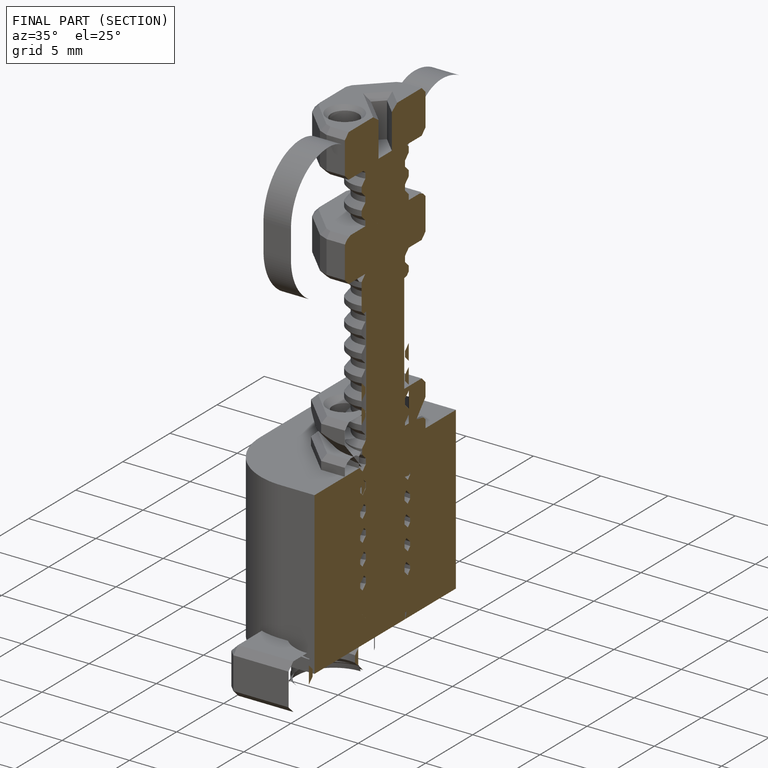
[diagram: finished part — half-section view (interior)]
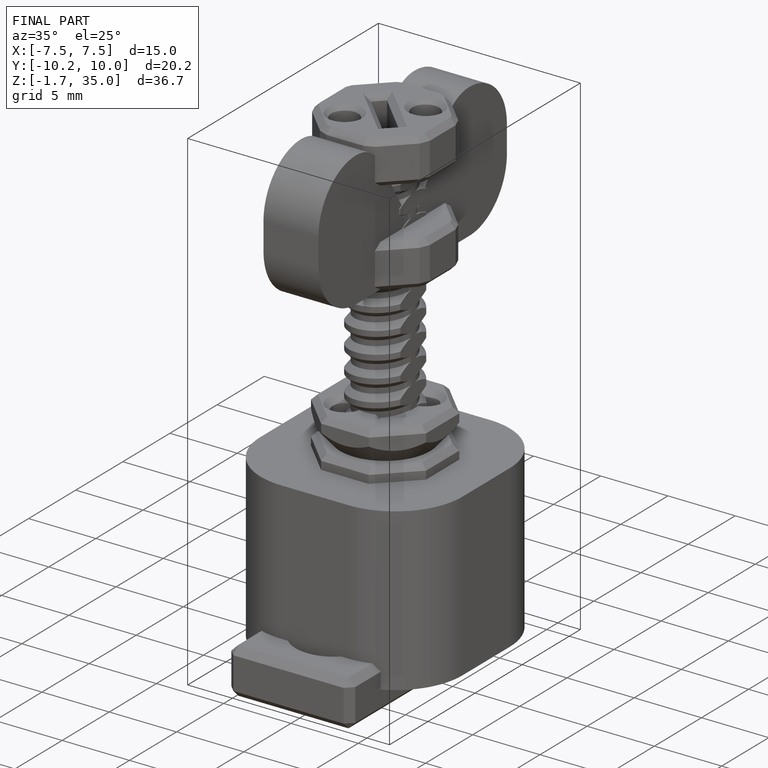
[diagram: finished part — iso view with bounding-box wireframe]
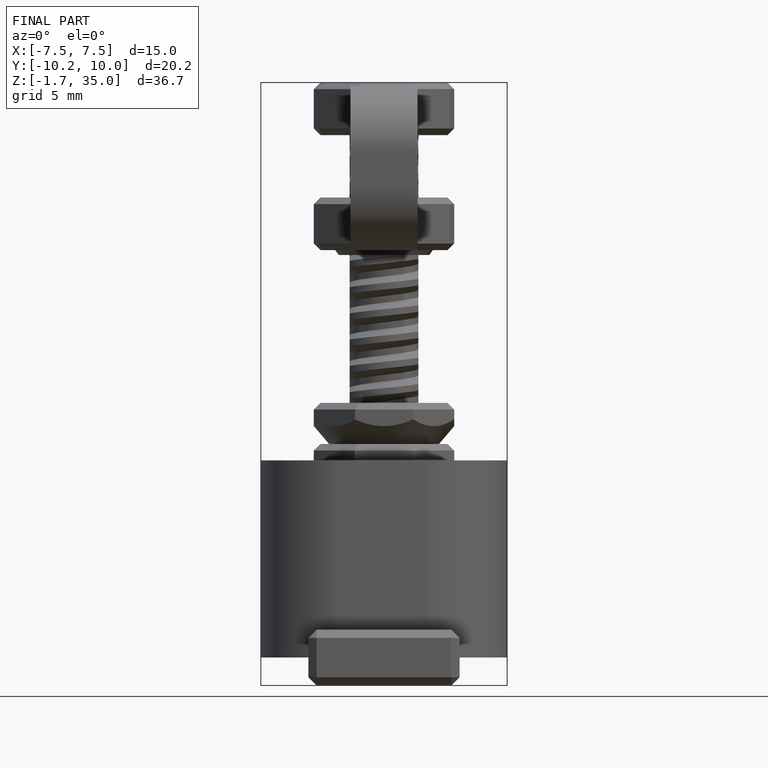
[diagram: finished part — front view with bounding-box wireframe]
